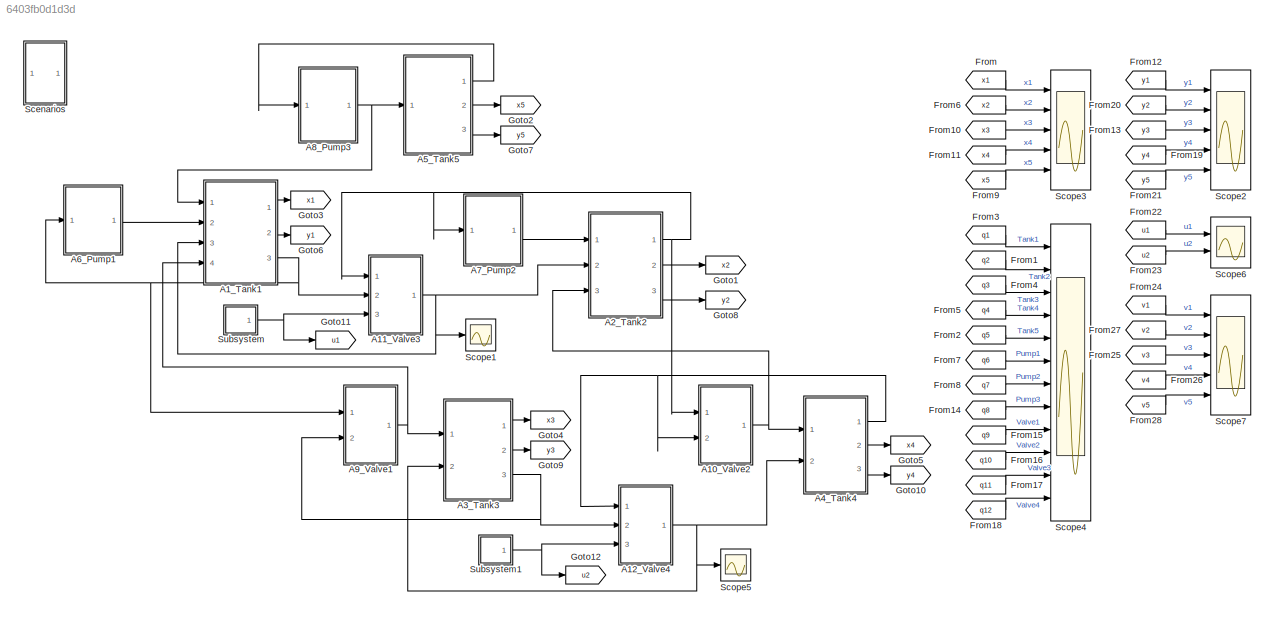
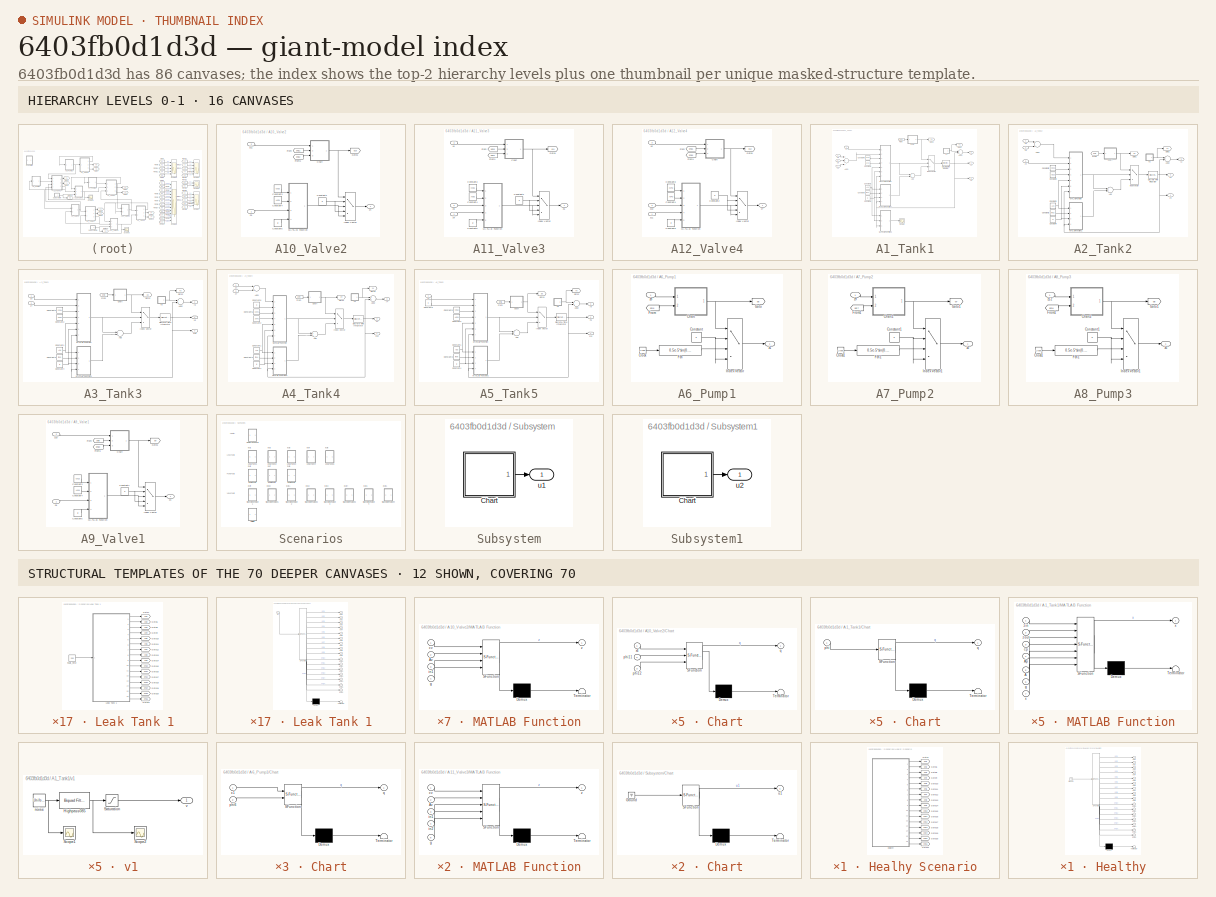
[diagram: thumbnail index - top-2 hierarchy levels (16 canvases) + 12 structural-template representatives of the remaining 70 canvases]
MODEL slx_6403fb0d1d3d
KIND model
CONFIG AbsTol = auto
CONFIG EnableMultiTasking = off
CONFIG FixedStep = Ts
CONFIG InitFcn = load_parameters
CONFIG MaxStep = auto
CONFIG MinStep = auto
CONFIG RelTol = 1e-3
CONFIG SampleTimeConstraint = Unconstrained
CONFIG Solver = FixedStepDiscrete
CONFIG SolverName = FixedStepDiscrete
CONFIG StartTime = 0.0
CONFIG StopTime = T
BLOCK [SubSystem] A10_Valve2
  Ports = [2, 1]
  RequestExecContextInheritance = off
BLOCK [SubSystem] A10_Valve2/Chart
  ErrorFcn = Stateflow.Translate.translate
  PermitHierarchicalResolution = ExplicitOnly
  Ports = [3, 1]
  RequestExecContextInheritance = off
  SFBlockType = Chart
  TreatAsAtomicUnit = on
BLOCK [Demux] A10_Valve2/Chart/ Demux 
  Outputs = 1
  Ports = [1, 1]
BLOCK [S-Function] A10_Valve2/Chart/ SFunction 
  EnableBusSupport = on
  FunctionName = sf_sfun
  Parameters = X4max,X4min
  PortCounts = [3 2]
  Ports = [3, 2]
  SFcnIsStateOwnerBlock = off
  SFunctionDeploymentMode = off
  Tag = Stateflow S-Function five_tank_hybrid_system 25
BLOCK [Terminator] A10_Valve2/Chart/ Terminator 
BLOCK [Inport] A10_Valve2/Chart/phi11
  IconDisplay = Port number
  Port = 2
BLOCK [Inport] A10_Valve2/Chart/phi12
  IconDisplay = Port number
  Port = 3
BLOCK [Outport] A10_Valve2/Chart/q
  IconDisplay = Port number
BLOCK [Inport] A10_Valve2/Chart/x4
  IconDisplay = Port number
BLOCK [Constant] A10_Valve2/Constant1
  Value = 0
BLOCK [Constant] A10_Valve2/Constant3
  Value = cv2u
BLOCK [Constant] A10_Valve2/Constant4
  Value = Av2u
BLOCK [Constant] A10_Valve2/Constant5
  Value = g
BLOCK [From] A10_Valve2/From
  GotoTag = phi11
  TagVisibility = global
BLOCK [From] A10_Valve2/From1
  GotoTag = phi12
  TagVisibility = global
BLOCK [Goto] A10_Valve2/Goto1
  GotoTag = q10
  TagVisibility = global
BLOCK [MultiPortSwitch] A10_Valve2/Index Vector
  DataPortIndices = {1,2,3,4}
  DataPortOrder = Specify indices
  InputSameDT = off
  Inputs = 1
  Ports = [5, 1]
  SaturateOnIntegerOverflow = off
BLOCK [SubSystem] A10_Valve2/MATLAB Function
  ErrorFcn = Stateflow.Translate.translate
  PermitHierarchicalResolution = ExplicitOnly
  Ports = [4, 1]
  RequestExecContextInheritance = off
  SFBlockType = MATLAB Function
  TreatAsAtomicUnit = on
BLOCK [Demux] A10_Valve2/MATLAB Function/ Demux 
  Outputs = 1
  Ports = [1, 1]
BLOCK [S-Function] A10_Valve2/MATLAB Function/ SFunction 
  EnableBusSupport = on
  FunctionName = sf_sfun
  PortCounts = [4 2]
  Ports = [4, 2]
  SFcnIsStateOwnerBlock = off
  SFunctionDeploymentMode = off
  Tag = Stateflow S-Function five_tank_hybrid_system 26
BLOCK [Terminator] A10_Valve2/MATLAB Function/ Terminator 
BLOCK [Inport] A10_Valve2/MATLAB Function/Av
  IconDisplay = Port number
  Port = 2
BLOCK [Inport] A10_Valve2/MATLAB Function/cv
  IconDisplay = Port number
BLOCK [Inport] A10_Valve2/MATLAB Function/g
  IconDisplay = Port number
  Port = 4
BLOCK [Inport] A10_Valve2/MATLAB Function/in1
  IconDisplay = Port number
  Port = 3
BLOCK [Outport] A10_Valve2/MATLAB Function/z
  IconDisplay = Port number
BLOCK [Inport] A10_Valve2/z11
  IconDisplay = Port number
  Port = 2
BLOCK [Outport] A10_Valve2/z4
  IconDisplay = Port number
BLOCK [Inport] A10_Valve2/z9
  IconDisplay = Port number
BLOCK [SubSystem] A11_Valve3
  Ports = [3, 1]
  RequestExecContextInheritance = off
BLOCK [SubSystem] A11_Valve3/Chart
  ErrorFcn = Stateflow.Translate.translate
  PermitHierarchicalResolution = ExplicitOnly
  Ports = [3, 1]
  RequestExecContextInheritance = off
  SFBlockType = Chart
  TreatAsAtomicUnit = on
BLOCK [Demux] A11_Valve3/Chart/ Demux 
  Outputs = 1
  Ports = [1, 1]
BLOCK [S-Function] A11_Valve3/Chart/ SFunction 
  EnableBusSupport = on
  FunctionName = sf_sfun
  PortCounts = [3 2]
  Ports = [3, 2]
  SFcnIsStateOwnerBlock = off
  SFunctionDeploymentMode = off
  Tag = Stateflow S-Function five_tank_hybrid_system 19
BLOCK [Terminator] A11_Valve3/Chart/ Terminator 
BLOCK [Inport] A11_Valve3/Chart/phi13
  IconDisplay = Port number
  Port = 2
BLOCK [Inport] A11_Valve3/Chart/phi14
  IconDisplay = Port number
  Port = 3
BLOCK [Outport] A11_Valve3/Chart/q
  IconDisplay = Port number
BLOCK [Inport] A11_Valve3/Chart/u1
  IconDisplay = Port number
BLOCK [Constant] A11_Valve3/Constant1
  Value = 0
BLOCK [Constant] A11_Valve3/Constant3
  Value = cv3u
BLOCK [Constant] A11_Valve3/Constant4
  Value = Av3u
BLOCK [Constant] A11_Valve3/Constant5
  Value = g
BLOCK [From] A11_Valve3/From
  GotoTag = phi13
  TagVisibility = global
BLOCK [From] A11_Valve3/From1
  GotoTag = phi14
  TagVisibility = global
BLOCK [Goto] A11_Valve3/Goto1
  GotoTag = q11
  TagVisibility = global
BLOCK [MultiPortSwitch] A11_Valve3/Index Vector
  DataPortIndices = {1,2,3,4}
  DataPortOrder = Specify indices
  InputSameDT = off
  Inputs = 1
  Ports = [5, 1]
  SaturateOnIntegerOverflow = off
BLOCK [SubSystem] A11_Valve3/MATLAB Function
  ErrorFcn = Stateflow.Translate.translate
  PermitHierarchicalResolution = ExplicitOnly
  Ports = [5, 1]
  RequestExecContextInheritance = off
  SFBlockType = MATLAB Function
  TreatAsAtomicUnit = on
BLOCK [Demux] A11_Valve3/MATLAB Function/ Demux 
  Outputs = 1
  Ports = [1, 1]
BLOCK [S-Function] A11_Valve3/MATLAB Function/ SFunction 
  EnableBusSupport = on
  FunctionName = sf_sfun
  PortCounts = [5 2]
  Ports = [5, 2]
  SFcnIsStateOwnerBlock = off
  SFunctionDeploymentMode = off
  Tag = Stateflow S-Function five_tank_hybrid_system 20
BLOCK [Terminator] A11_Valve3/MATLAB Function/ Terminator 
BLOCK [Inport] A11_Valve3/MATLAB Function/Av
  IconDisplay = Port number
  Port = 2
BLOCK [Inport] A11_Valve3/MATLAB Function/cv
  IconDisplay = Port number
BLOCK [Inport] A11_Valve3/MATLAB Function/g
  IconDisplay = Port number
  Port = 5
BLOCK [Inport] A11_Valve3/MATLAB Function/in1
  IconDisplay = Port number
  Port = 3
BLOCK [Inport] A11_Valve3/MATLAB Function/in2
  IconDisplay = Port number
  Port = 4
BLOCK [Outport] A11_Valve3/MATLAB Function/z
  IconDisplay = Port number
BLOCK [Inport] A11_Valve3/u1
  IconDisplay = Port number
  Port = 3
BLOCK [Outport] A11_Valve3/z6
  IconDisplay = Port number
BLOCK [Inport] A11_Valve3/z8
  IconDisplay = Port number
  Port = 2
BLOCK [Inport] A11_Valve3/z9
  IconDisplay = Port number
BLOCK [SubSystem] A12_Valve4
  Ports = [3, 1]
  RequestExecContextInheritance = off
BLOCK [SubSystem] A12_Valve4/Chart
  ErrorFcn = Stateflow.Translate.translate
  PermitHierarchicalResolution = ExplicitOnly
  Ports = [3, 1]
  RequestExecContextInheritance = off
  SFBlockType = Chart
  TreatAsAtomicUnit = on
BLOCK [Demux] A12_Valve4/Chart/ Demux 
  Outputs = 1
  Ports = [1, 1]
BLOCK [S-Function] A12_Valve4/Chart/ SFunction 
  EnableBusSupport = on
  FunctionName = sf_sfun
  PortCounts = [3 2]
  Ports = [3, 2]
  SFcnIsStateOwnerBlock = off
  SFunctionDeploymentMode = off
  Tag = Stateflow S-Function five_tank_hybrid_system 21
BLOCK [Terminator] A12_Valve4/Chart/ Terminator 
BLOCK [Inport] A12_Valve4/Chart/phi15
  IconDisplay = Port number
  Port = 2
BLOCK [Inport] A12_Valve4/Chart/phi16
  IconDisplay = Port number
  Port = 3
BLOCK [Outport] A12_Valve4/Chart/q
  IconDisplay = Port number
BLOCK [Inport] A12_Valve4/Chart/u2
  IconDisplay = Port number
BLOCK [Constant] A12_Valve4/Constant2
  Value = 0
BLOCK [Constant] A12_Valve4/Constant3
  Value = cv4u
BLOCK [Constant] A12_Valve4/Constant4
  Value = Av4u
BLOCK [Constant] A12_Valve4/Constant5
  Value = g
BLOCK [From] A12_Valve4/From
  GotoTag = phi15
  TagVisibility = global
BLOCK [From] A12_Valve4/From1
  GotoTag = phi16
  TagVisibility = global
BLOCK [Goto] A12_Valve4/Goto1
  GotoTag = q12
  TagVisibility = global
BLOCK [MultiPortSwitch] A12_Valve4/Index Vector
  DataPortIndices = {1,2,3,4}
  DataPortOrder = Specify indices
  InputSameDT = off
  Inputs = 1
  Ports = [5, 1]
  SaturateOnIntegerOverflow = off
BLOCK [SubSystem] A12_Valve4/MATLAB Function
  ErrorFcn = Stateflow.Translate.translate
  PermitHierarchicalResolution = ExplicitOnly
  Ports = [5, 1]
  RequestExecContextInheritance = off
  SFBlockType = MATLAB Function
  TreatAsAtomicUnit = on
BLOCK [Demux] A12_Valve4/MATLAB Function/ Demux 
  Outputs = 1
  Ports = [1, 1]
BLOCK [S-Function] A12_Valve4/MATLAB Function/ SFunction 
  EnableBusSupport = on
  FunctionName = sf_sfun
  PortCounts = [5 2]
  Ports = [5, 2]
  SFcnIsStateOwnerBlock = off
  SFunctionDeploymentMode = off
  Tag = Stateflow S-Function five_tank_hybrid_system 22
BLOCK [Terminator] A12_Valve4/MATLAB Function/ Terminator 
BLOCK [Inport] A12_Valve4/MATLAB Function/Av
  IconDisplay = Port number
  Port = 2
BLOCK [Inport] A12_Valve4/MATLAB Function/cv
  IconDisplay = Port number
BLOCK [Inport] A12_Valve4/MATLAB Function/g
  IconDisplay = Port number
  Port = 5
BLOCK [Inport] A12_Valve4/MATLAB Function/in1
  IconDisplay = Port number
  Port = 3
BLOCK [Inport] A12_Valve4/MATLAB Function/in2
  IconDisplay = Port number
  Port = 4
BLOCK [Outport] A12_Valve4/MATLAB Function/z
  IconDisplay = Port number
BLOCK [Inport] A12_Valve4/u2
  IconDisplay = Port number
  Port = 3
BLOCK [Inport] A12_Valve4/z10
  IconDisplay = Port number
  Port = 2
BLOCK [Inport] A12_Valve4/z11
  IconDisplay = Port number
BLOCK [Outport] A12_Valve4/z7
  IconDisplay = Port number
BLOCK [SubSystem] A1_Tank1
  Ports = [4, 3]
  RequestExecContextInheritance = off
BLOCK [Sum] A1_Tank1/Add
  InputSameDT = off
  OutDataTypeStr = Inherit: Inherit via internal rule
  Ports = [2, 1]
  SaturateOnIntegerOverflow = off
BLOCK [Sum] A1_Tank1/Add1
  InputSameDT = off
  Inputs = +++
  OutDataTypeStr = Inherit: Inherit via internal rule
  Ports = [3, 1]
  SaturateOnIntegerOverflow = off
BLOCK [Sum] A1_Tank1/Add2
  InputSameDT = off
  OutDataTypeStr = Inherit: Inherit via internal rule
  Ports = [2, 1]
  SaturateOnIntegerOverflow = off
BLOCK [SubSystem] A1_Tank1/Chart
  ErrorFcn = Stateflow.Translate.translate
  PermitHierarchicalResolution = ExplicitOnly
  Ports = [1, 1]
  RequestExecContextInheritance = off
  SFBlockType = Chart
  TreatAsAtomicUnit = on
BLOCK [Demux] A1_Tank1/Chart/ Demux 
  Outputs = 1
  Ports = [1, 1]
BLOCK [S-Function] A1_Tank1/Chart/ SFunction 
  EnableBusSupport = on
  FunctionName = sf_sfun
  PortCounts = [1 2]
  Ports = [1, 2]
  SFcnIsStateOwnerBlock = off
  SFunctionDeploymentMode = off
  Tag = Stateflow S-Function five_tank_hybrid_system 4
BLOCK [Terminator] A1_Tank1/Chart/ Terminator 
BLOCK [Inport] A1_Tank1/Chart/phi
  IconDisplay = Port number
BLOCK [Outport] A1_Tank1/Chart/q
  IconDisplay = Port number
BLOCK [Constant] A1_Tank1/Constant1
  Value = A1u
BLOCK [Constant] A1_Tank1/Constant2
  Value = Ap1u
BLOCK [Constant] A1_Tank1/Constant3
  Value = rho1
BLOCK [Constant] A1_Tank1/Constant4
  Value = g
BLOCK [Constant] A1_Tank1/Constant5
  Value = cp1u
BLOCK [DiscreteIntegrator] A1_Tank1/Discrete-Time Integrator
  ICPrevOutput = DiscIntNeverNeededParam
  ICPrevScaledInput = DiscIntNeverNeededParam
  InitialCondition = x1_0
  InitialConditionSetting = Auto
  LimitOutput = on
  LowerSaturationLimit = 0
  Ports = [1, 1]
  SampleTime = -1
  UpperSaturationLimit = X1overflow
BLOCK [From] A1_Tank1/From
  GotoTag = phi1
  TagVisibility = global
BLOCK [Goto] A1_Tank1/Goto1
  GotoTag = q1
  TagVisibility = global
BLOCK [Goto] A1_Tank1/Goto2
  GotoTag = v1
  TagVisibility = global
BLOCK [MultiPortSwitch] A1_Tank1/Index Vector
  DataPortIndices = {1,2}
  DataPortOrder = Specify indices
  InputSameDT = off
  Inputs = 1
  Ports = [3, 1]
  SaturateOnIntegerOverflow = off
BLOCK [SubSystem] A1_Tank1/MATLAB Function
  ErrorFcn = Stateflow.Translate.translate
  PermitHierarchicalResolution = ExplicitOnly
  Ports = [7, 1]
  RequestExecContextInheritance = off
  SFBlockType = MATLAB Function
  TreatAsAtomicUnit = on
BLOCK [Demux] A1_Tank1/MATLAB Function/ Demux 
  Outputs = 1
  Ports = [1, 1]
BLOCK [S-Function] A1_Tank1/MATLAB Function/ SFunction 
  EnableBusSupport = on
  FunctionName = sf_sfun
  PortCounts = [7 2]
  Ports = [7, 2]
  SFcnIsStateOwnerBlock = off
  SFunctionDeploymentMode = off
  Tag = Stateflow S-Function five_tank_hybrid_system 5
BLOCK [Terminator] A1_Tank1/MATLAB Function/ Terminator 
BLOCK [Inport] A1_Tank1/MATLAB Function/A
  IconDisplay = Port number
  Port = 5
BLOCK [Inport] A1_Tank1/MATLAB Function/Ap
  IconDisplay = Port number
  Port = 4
BLOCK [Inport] A1_Tank1/MATLAB Function/cp
  IconDisplay = Port number
  Port = 3
BLOCK [Inport] A1_Tank1/MATLAB Function/g
  IconDisplay = Port number
  Port = 6
BLOCK [Outport] A1_Tank1/MATLAB Function/x
  IconDisplay = Port number
BLOCK [Inport] A1_Tank1/MATLAB Function/x 
  IconDisplay = Port number
  Port = 7
BLOCK [Inport] A1_Tank1/MATLAB Function/zin
  IconDisplay = Port number
BLOCK [Inport] A1_Tank1/MATLAB Function/zout
  IconDisplay = Port number
  Port = 2
BLOCK [SubSystem] A1_Tank1/MATLAB Function1
  ErrorFcn = Stateflow.Translate.translate
  PermitHierarchicalResolution = ExplicitOnly
  Ports = [4, 1]
  RequestExecContextInheritance = off
  SFBlockType = MATLAB Function
  TreatAsAtomicUnit = on
BLOCK [Demux] A1_Tank1/MATLAB Function1/ Demux 
  Outputs = 1
  Ports = [1, 1]
BLOCK [S-Function] A1_Tank1/MATLAB Function1/ SFunction 
  EnableBusSupport = on
  FunctionName = sf_sfun
  PortCounts = [4 2]
  Ports = [4, 2]
  SFcnIsStateOwnerBlock = off
  SFunctionDeploymentMode = off
  Tag = Stateflow S-Function five_tank_hybrid_system 6
BLOCK [Terminator] A1_Tank1/MATLAB Function1/ Terminator 
BLOCK [Inport] A1_Tank1/MATLAB Function1/A
  IconDisplay = Port number
BLOCK [Outport] A1_Tank1/MATLAB Function1/f1
  IconDisplay = Port number
BLOCK [Inport] A1_Tank1/MATLAB Function1/g
  IconDisplay = Port number
  Port = 3
BLOCK [Inport] A1_Tank1/MATLAB Function1/rho
  IconDisplay = Port number
  Port = 2
BLOCK [Inport] A1_Tank1/MATLAB Function1/x
  IconDisplay = Port number
  Port = 4
BLOCK [SubSystem] A1_Tank1/MATLAB Function2
  ErrorFcn = Stateflow.Translate.translate
  PermitHierarchicalResolution = ExplicitOnly
  Ports = [3, 1]
  RequestExecContextInheritance = off
  SFBlockType = MATLAB Function
  TreatAsAtomicUnit = on
BLOCK [Demux] A1_Tank1/MATLAB Function2/ Demux 
  Outputs = 1
  Ports = [1, 1]
BLOCK [S-Function] A1_Tank1/MATLAB Function2/ SFunction 
  EnableBusSupport = on
  FunctionName = sf_sfun
  PortCounts = [3 2]
  Ports = [3, 2]
  SFcnIsStateOwnerBlock = off
  SFunctionDeploymentMode = off
  Tag = Stateflow S-Function five_tank_hybrid_system 47
BLOCK [Terminator] A1_Tank1/MATLAB Function2/ Terminator 
BLOCK [Inport] A1_Tank1/MATLAB Function2/A
  IconDisplay = Port number
BLOCK [Outport] A1_Tank1/MATLAB Function2/f1
  IconDisplay = Port number
BLOCK [Inport] A1_Tank1/MATLAB Function2/g
  IconDisplay = Port number
  Port = 2
BLOCK [Inport] A1_Tank1/MATLAB Function2/x
  IconDisplay = Port number
  Port = 3
BLOCK [Scope] A1_Tank1/Scope
  Floating = off
  NumInputPorts = 1
  Ports = [1]
  ScopeSpecificationString = Simulink.scopes.TimeScopeBlockCfg('CurrentConfiguration', extmgr.ConfigurationSet(extmgr.Configuration('Core','General UI',true),extmgr.Configuration('Core','Source UI',true),extmgr.Configuration('Sources','WiredSimulink',true,'DataLoggingVariableName','ScopeData1'),extmgr.Configuration('Visuals','Time Domain',true,'SerializedDisplays',{struct('MinYLimReal','0.71986','MaxYLimReal','1.00022','YLabe...<+1473ch>
BLOCK [SubSystem] A1_Tank1/v1
  Ports = [0, 1]
  RequestExecContextInheritance = off
BLOCK [Reference] A1_Tank1/v1/Highpass085  REF=dsparch4/Biquad Filter
  Ports = [1, 1]
  SourceBlock = dsparch4/Biquad Filter
  SourceProductBaseCode = DS
  SourceProductName = DSP System Toolbox
  SourceType = Biquad Filter
  Tag = BlockMethodSubSystem
  UserDataPersistent = on
BLOCK [Saturate] A1_Tank1/v1/Saturation
  InputPortMap = u0
  LowerLimit = -xi
  Ports = [1, 1]
  UpperLimit = xi
BLOCK [Scope] A1_Tank1/v1/Scope1
  Floating = off
  NumInputPorts = 1
  Ports = [1]
  ScopeSpecificationString = Simulink.scopes.TimeScopeBlockCfg('CurrentConfiguration', extmgr.ConfigurationSet(extmgr.Configuration('Core','General UI',true),extmgr.Configuration('Core','Source UI',true),extmgr.Configuration('Sources','WiredSimulink',true,'DataLoggingVariableName','ScopeData2'),extmgr.Configuration('Visuals','Time Domain',true,'SerializedDisplays',{struct('MinYLimReal','-0.025','MaxYLimReal','0.025','YLabelRe...<+1379ch>
BLOCK [Scope] A1_Tank1/v1/Scope2
  Floating = off
  NumInputPorts = 1
  Ports = [1]
  ScopeSpecificationString = Simulink.scopes.TimeScopeBlockCfg('CurrentConfiguration', extmgr.ConfigurationSet(extmgr.Configuration('Core','General UI',true),extmgr.Configuration('Core','Source UI',true),extmgr.Configuration('Sources','WiredSimulink',true,'DataLoggingVariableName','ScopeData3'),extmgr.Configuration('Visuals','Time Domain',true,'SerializedDisplays',{struct('MinYLimReal','-0.02535','MaxYLimReal','0.02523','YLab...<+1440ch>
BLOCK [UniformRandomNumber] A1_Tank1/v1/noise
  Maximum = v
  Minimum = -v
  SampleTime = Ts
  Seed = 15
BLOCK [Outport] A1_Tank1/v1/v
  IconDisplay = Port number
BLOCK [Outport] A1_Tank1/x1
  IconDisplay = Port number
BLOCK [Outport] A1_Tank1/y1
  IconDisplay = Port number
  Port = 2
BLOCK [Inport] A1_Tank1/z1
  IconDisplay = Port number
  Port = 2
BLOCK [Inport] A1_Tank1/z3
  IconDisplay = Port number
  Port = 4
BLOCK [Inport] A1_Tank1/z5
  IconDisplay = Port number
BLOCK [Inport] A1_Tank1/z6
  IconDisplay = Port number
  Port = 3
BLOCK [Outport] A1_Tank1/z8
  IconDisplay = Port number
  Port = 3
BLOCK [SubSystem] A2_Tank2
  Ports = [3, 3]
  RequestExecContextInheritance = off
BLOCK [Sum] A2_Tank2/Add
  InputSameDT = off
  OutDataTypeStr = Inherit: Inherit via internal rule
  Ports = [2, 1]
  SaturateOnIntegerOverflow = off
BLOCK [Sum] A2_Tank2/Add1
  InputSameDT = off
  OutDataTypeStr = Inherit: Inherit via internal rule
  Ports = [2, 1]
  SaturateOnIntegerOverflow = off
BLOCK [Sum] A2_Tank2/Add2
  InputSameDT = off
  OutDataTypeStr = Inherit: Inherit via internal rule
  Ports = [2, 1]
  SaturateOnIntegerOverflow = off
BLOCK [SubSystem] A2_Tank2/Chart
  ErrorFcn = Stateflow.Translate.translate
  PermitHierarchicalResolution = ExplicitOnly
  Ports = [1, 1]
  RequestExecContextInheritance = off
  SFBlockType = Chart
  TreatAsAtomicUnit = on
BLOCK [Demux] A2_Tank2/Chart/ Demux 
  Outputs = 1
  Ports = [1, 1]
BLOCK [S-Function] A2_Tank2/Chart/ SFunction 
  EnableBusSupport = on
  FunctionName = sf_sfun
  PortCounts = [1 2]
  Ports = [1, 2]
  SFcnIsStateOwnerBlock = off
  SFunctionDeploymentMode = off
  Tag = Stateflow S-Function five_tank_hybrid_system 7
BLOCK [Terminator] A2_Tank2/Chart/ Terminator 
BLOCK [Inport] A2_Tank2/Chart/phi
  IconDisplay = Port number
BLOCK [Outport] A2_Tank2/Chart/q
  IconDisplay = Port number
BLOCK [Constant] A2_Tank2/Constant1
  Value = A2u
BLOCK [Constant] A2_Tank2/Constant2
  Value = Ap2u
BLOCK [Constant] A2_Tank2/Constant3
  Value = rho2
BLOCK [Constant] A2_Tank2/Constant4
  Value = g
BLOCK [Constant] A2_Tank2/Constant5
  Value = cp2u
BLOCK [DiscreteIntegrator] A2_Tank2/Discrete-Time Integrator
  ICPrevOutput = DiscIntNeverNeededParam
  ICPrevScaledInput = DiscIntNeverNeededParam
  InitialCondition = x2_0
  InitialConditionSetting = Auto
  LimitOutput = on
  LowerSaturationLimit = 0
  Ports = [1, 1]
  SampleTime = -1
  UpperSaturationLimit = X2overflow
BLOCK [From] A2_Tank2/From
  GotoTag = phi2
  TagVisibility = global
BLOCK [Goto] A2_Tank2/Goto1
  GotoTag = q2
  TagVisibility = global
BLOCK [Goto] A2_Tank2/Goto2
  GotoTag = v2
  TagVisibility = global
BLOCK [MultiPortSwitch] A2_Tank2/Index Vector
  DataPortIndices = {1,2}
  DataPortOrder = Specify indices
  InputSameDT = off
  Inputs = 1
  Ports = [3, 1]
  SaturateOnIntegerOverflow = off
BLOCK [SubSystem] A2_Tank2/MATLAB Function
  ErrorFcn = Stateflow.Translate.translate
  PermitHierarchicalResolution = ExplicitOnly
  Ports = [7, 1]
  RequestExecContextInheritance = off
  SFBlockType = MATLAB Function
  TreatAsAtomicUnit = on
BLOCK [Demux] A2_Tank2/MATLAB Function/ Demux 
  Outputs = 1
  Ports = [1, 1]
BLOCK [S-Function] A2_Tank2/MATLAB Function/ SFunction 
  EnableBusSupport = on
  FunctionName = sf_sfun
  PortCounts = [7 2]
  Ports = [7, 2]
  SFcnIsStateOwnerBlock = off
  SFunctionDeploymentMode = off
  Tag = Stateflow S-Function five_tank_hybrid_system 8
BLOCK [Terminator] A2_Tank2/MATLAB Function/ Terminator 
BLOCK [Inport] A2_Tank2/MATLAB Function/A
  IconDisplay = Port number
  Port = 5
BLOCK [Inport] A2_Tank2/MATLAB Function/Ap
  IconDisplay = Port number
  Port = 4
BLOCK [Inport] A2_Tank2/MATLAB Function/cp
  IconDisplay = Port number
  Port = 3
BLOCK [Inport] A2_Tank2/MATLAB Function/g
  IconDisplay = Port number
  Port = 6
BLOCK [Outport] A2_Tank2/MATLAB Function/x
  IconDisplay = Port number
BLOCK [Inport] A2_Tank2/MATLAB Function/x 
  IconDisplay = Port number
  Port = 7
BLOCK [Inport] A2_Tank2/MATLAB Function/zin
  IconDisplay = Port number
BLOCK [Inport] A2_Tank2/MATLAB Function/zout
  IconDisplay = Port number
  Port = 2
BLOCK [SubSystem] A2_Tank2/MATLAB Function1
  ErrorFcn = Stateflow.Translate.translate
  PermitHierarchicalResolution = ExplicitOnly
  Ports = [4, 1]
  RequestExecContextInheritance = off
  SFBlockType = MATLAB Function
  TreatAsAtomicUnit = on
BLOCK [Demux] A2_Tank2/MATLAB Function1/ Demux 
  Outputs = 1
  Ports = [1, 1]
BLOCK [S-Function] A2_Tank2/MATLAB Function1/ SFunction 
  EnableBusSupport = on
  FunctionName = sf_sfun
  PortCounts = [4 2]
  Ports = [4, 2]
  SFcnIsStateOwnerBlock = off
  SFunctionDeploymentMode = off
  Tag = Stateflow S-Function five_tank_hybrid_system 9
BLOCK [Terminator] A2_Tank2/MATLAB Function1/ Terminator 
BLOCK [Inport] A2_Tank2/MATLAB Function1/A
  IconDisplay = Port number
BLOCK [Outport] A2_Tank2/MATLAB Function1/f1
  IconDisplay = Port number
BLOCK [Inport] A2_Tank2/MATLAB Function1/g
  IconDisplay = Port number
  Port = 3
BLOCK [Inport] A2_Tank2/MATLAB Function1/rho
  IconDisplay = Port number
  Port = 2
BLOCK [Inport] A2_Tank2/MATLAB Function1/x
  IconDisplay = Port number
  Port = 4
BLOCK [SubSystem] A2_Tank2/v2
  Ports = [0, 1]
  RequestExecContextInheritance = off
BLOCK [Reference] A2_Tank2/v2/Highpass085  REF=dsparch4/Biquad Filter
  Ports = [1, 1]
  SourceBlock = dsparch4/Biquad Filter
  SourceProductBaseCode = DS
  SourceProductName = DSP System Toolbox
  SourceType = Biquad Filter
  Tag = BlockMethodSubSystem
  UserDataPersistent = on
BLOCK [Saturate] A2_Tank2/v2/Saturation
  InputPortMap = u0
  LowerLimit = -xi
  Ports = [1, 1]
  UpperLimit = xi
BLOCK [Scope] A2_Tank2/v2/Scope1
  Floating = off
  NumInputPorts = 1
  Ports = [1]
  ScopeSpecificationString = Simulink.scopes.TimeScopeBlockCfg('CurrentConfiguration', extmgr.ConfigurationSet(extmgr.Configuration('Core','General UI',true),extmgr.Configuration('Core','Source UI',true),extmgr.Configuration('Sources','WiredSimulink',true,'DataLoggingVariableName','ScopeData2'),extmgr.Configuration('Visuals','Time Domain',true,'SerializedDisplays',{struct('MinYLimReal','-0.0625','MaxYLimReal','0.0625','YLabel...<+1387ch>  <repeated x3 — deduplicated; at blocks: Scope1>
BLOCK [Scope] A2_Tank2/v2/Scope2
  Floating = off
  NumInputPorts = 1
  Ports = [1]
  ScopeSpecificationString = Simulink.scopes.TimeScopeBlockCfg('CurrentConfiguration', extmgr.ConfigurationSet(extmgr.Configuration('Core','General UI',true),extmgr.Configuration('Core','Source UI',true),extmgr.Configuration('Sources','WiredSimulink',true,'DataLoggingVariableName','ScopeData3'),extmgr.Configuration('Visuals','Time Domain',true,'SerializedDisplays',{struct('MinYLimReal','-0.02315','MaxYLimReal','0.02326','YLab...<+1471ch>
BLOCK [UniformRandomNumber] A2_Tank2/v2/noise
  Maximum = v
  Minimum = -v
  SampleTime = Ts
  Seed = 11
BLOCK [Outport] A2_Tank2/v2/v
  IconDisplay = Port number
BLOCK [Outport] A2_Tank2/x2
  IconDisplay = Port number
  Port = 2
BLOCK [Outport] A2_Tank2/y2
  IconDisplay = Port number
  Port = 3
BLOCK [Inport] A2_Tank2/z2
  IconDisplay = Port number
BLOCK [Inport] A2_Tank2/z4
  IconDisplay = Port number
  Port = 3
BLOCK [Inport] A2_Tank2/z6
  IconDisplay = Port number
  Port = 2
BLOCK [Outport] A2_Tank2/z9
  IconDisplay = Port number
BLOCK [SubSystem] A3_Tank3
  Ports = [2, 3]
  RequestExecContextInheritance = off
BLOCK [Sum] A3_Tank3/Add
  InputSameDT = off
  OutDataTypeStr = Inherit: Inherit via internal rule
  Ports = [2, 1]
  SaturateOnIntegerOverflow = off
BLOCK [Sum] A3_Tank3/Add2
  InputSameDT = off
  OutDataTypeStr = Inherit: Inherit via internal rule
  Ports = [2, 1]
  SaturateOnIntegerOverflow = off
BLOCK [SubSystem] A3_Tank3/Chart
  ErrorFcn = Stateflow.Translate.translate
  PermitHierarchicalResolution = ExplicitOnly
  Ports = [1, 1]
  RequestExecContextInheritance = off
  SFBlockType = Chart
  TreatAsAtomicUnit = on
BLOCK [Demux] A3_Tank3/Chart/ Demux 
  Outputs = 1
  Ports = [1, 1]
BLOCK [S-Function] A3_Tank3/Chart/ SFunction 
  EnableBusSupport = on
  FunctionName = sf_sfun
  PortCounts = [1 2]
  Ports = [1, 2]
  SFcnIsStateOwnerBlock = off
  SFunctionDeploymentMode = off
  Tag = Stateflow S-Function five_tank_hybrid_system 10
BLOCK [Terminator] A3_Tank3/Chart/ Terminator 
BLOCK [Inport] A3_Tank3/Chart/phi
  IconDisplay = Port number
BLOCK [Outport] A3_Tank3/Chart/q
  IconDisplay = Port number
BLOCK [Constant] A3_Tank3/Constant1
  Value = A3u
BLOCK [Constant] A3_Tank3/Constant2
  Value = Ap3u
BLOCK [Constant] A3_Tank3/Constant3
  Value = rho3
BLOCK [Constant] A3_Tank3/Constant4
  Value = g
BLOCK [Constant] A3_Tank3/Constant5
  Value = cp3u
BLOCK [DiscreteIntegrator] A3_Tank3/Discrete-Time Integrator
  ICPrevOutput = DiscIntNeverNeededParam
  ICPrevScaledInput = DiscIntNeverNeededParam
  InitialCondition = x3_0
  InitialConditionSetting = Auto
  LimitOutput = on
  LowerSaturationLimit = 0
  Ports = [1, 1]
  SampleTime = -1
  UpperSaturationLimit = X3overflow
BLOCK [From] A3_Tank3/From
  GotoTag = phi3
  TagVisibility = global
BLOCK [Goto] A3_Tank3/Goto1
  GotoTag = q3
  TagVisibility = global
BLOCK [Goto] A3_Tank3/Goto2
  GotoTag = v3
  TagVisibility = global
BLOCK [MultiPortSwitch] A3_Tank3/Index Vector
  DataPortIndices = {1,2}
  DataPortOrder = Specify indices
  InputSameDT = off
  Inputs = 1
  Ports = [3, 1]
  SaturateOnIntegerOverflow = off
BLOCK [SubSystem] A3_Tank3/MATLAB Function
  ErrorFcn = Stateflow.Translate.translate
  PermitHierarchicalResolution = ExplicitOnly
  Ports = [7, 1]
  RequestExecContextInheritance = off
  SFBlockType = MATLAB Function
  TreatAsAtomicUnit = on
BLOCK [Demux] A3_Tank3/MATLAB Function/ Demux 
  Outputs = 1
  Ports = [1, 1]
BLOCK [S-Function] A3_Tank3/MATLAB Function/ SFunction 
  EnableBusSupport = on
  FunctionName = sf_sfun
  PortCounts = [7 2]
  Ports = [7, 2]
  SFcnIsStateOwnerBlock = off
  SFunctionDeploymentMode = off
  Tag = Stateflow S-Function five_tank_hybrid_system 11
BLOCK [Terminator] A3_Tank3/MATLAB Function/ Terminator 
BLOCK [Inport] A3_Tank3/MATLAB Function/A
  IconDisplay = Port number
  Port = 5
BLOCK [Inport] A3_Tank3/MATLAB Function/Ap
  IconDisplay = Port number
  Port = 4
BLOCK [Inport] A3_Tank3/MATLAB Function/cp
  IconDisplay = Port number
  Port = 3
BLOCK [Inport] A3_Tank3/MATLAB Function/g
  IconDisplay = Port number
  Port = 6
BLOCK [Outport] A3_Tank3/MATLAB Function/x
  IconDisplay = Port number
BLOCK [Inport] A3_Tank3/MATLAB Function/x 
  IconDisplay = Port number
  Port = 7
BLOCK [Inport] A3_Tank3/MATLAB Function/zin
  IconDisplay = Port number
BLOCK [Inport] A3_Tank3/MATLAB Function/zout
  IconDisplay = Port number
  Port = 2
BLOCK [SubSystem] A3_Tank3/MATLAB Function1
  ErrorFcn = Stateflow.Translate.translate
  PermitHierarchicalResolution = ExplicitOnly
  Ports = [4, 1]
  RequestExecContextInheritance = off
  SFBlockType = MATLAB Function
  TreatAsAtomicUnit = on
BLOCK [Demux] A3_Tank3/MATLAB Function1/ Demux 
  Outputs = 1
  Ports = [1, 1]
BLOCK [S-Function] A3_Tank3/MATLAB Function1/ SFunction 
  EnableBusSupport = on
  FunctionName = sf_sfun
  PortCounts = [4 2]
  Ports = [4, 2]
  SFcnIsStateOwnerBlock = off
  SFunctionDeploymentMode = off
  Tag = Stateflow S-Function five_tank_hybrid_system 12
BLOCK [Terminator] A3_Tank3/MATLAB Function1/ Terminator 
BLOCK [Inport] A3_Tank3/MATLAB Function1/A
  IconDisplay = Port number
BLOCK [Outport] A3_Tank3/MATLAB Function1/f1
  IconDisplay = Port number
BLOCK [Inport] A3_Tank3/MATLAB Function1/g
  IconDisplay = Port number
  Port = 3
BLOCK [Inport] A3_Tank3/MATLAB Function1/rho
  IconDisplay = Port number
  Port = 2
BLOCK [Inport] A3_Tank3/MATLAB Function1/x
  IconDisplay = Port number
  Port = 4
BLOCK [SubSystem] A3_Tank3/v3
  Ports = [0, 1]
  RequestExecContextInheritance = off
BLOCK [Reference] A3_Tank3/v3/Highpass085  REF=dsparch4/Biquad Filter
  Ports = [1, 1]
  SourceBlock = dsparch4/Biquad Filter
  SourceProductBaseCode = DS
  SourceProductName = DSP System Toolbox
  SourceType = Biquad Filter
  Tag = BlockMethodSubSystem
  UserDataPersistent = on
BLOCK [Saturate] A3_Tank3/v3/Saturation
  InputPortMap = u0
  LowerLimit = -xi
  Ports = [1, 1]
  UpperLimit = xi
BLOCK [Scope] A3_Tank3/v3/Scope1
  Floating = off
  NumInputPorts = 1
  Ports = [1]
BLOCK [Scope] A3_Tank3/v3/Scope2
  Floating = off
  NumInputPorts = 1
  Ports = [1]
  ScopeSpecificationString = Simulink.scopes.TimeScopeBlockCfg('CurrentConfiguration', extmgr.ConfigurationSet(extmgr.Configuration('Core','General UI',true),extmgr.Configuration('Core','Source UI',true),extmgr.Configuration('Sources','WiredSimulink',true,'DataLoggingVariableName','ScopeData3'),extmgr.Configuration('Visuals','Time Domain',true,'SerializedDisplays',{struct('MinYLimReal','-0.02333','MaxYLimReal','0.02384','YLab...<+1471ch>
BLOCK [UniformRandomNumber] A3_Tank3/v3/noise
  Maximum = v
  Minimum = -v
  SampleTime = Ts
  Seed = 7
BLOCK [Outport] A3_Tank3/v3/v
  IconDisplay = Port number
BLOCK [Outport] A3_Tank3/x3
  IconDisplay = Port number
BLOCK [Outport] A3_Tank3/y3
  IconDisplay = Port number
  Port = 2
BLOCK [Outport] A3_Tank3/z10
  IconDisplay = Port number
  Port = 3
BLOCK [Inport] A3_Tank3/z3
  IconDisplay = Port number
BLOCK [Inport] A3_Tank3/z7
  IconDisplay = Port number
  Port = 2
BLOCK [SubSystem] A4_Tank4
  Ports = [2, 3]
  RequestExecContextInheritance = off
BLOCK [Sum] A4_Tank4/Add
  InputSameDT = off
  OutDataTypeStr = Inherit: Inherit via internal rule
  Ports = [2, 1]
  SaturateOnIntegerOverflow = off
BLOCK [Sum] A4_Tank4/Add1
  InputSameDT = off
  OutDataTypeStr = Inherit: Inherit via internal rule
  Ports = [2, 1]
  SaturateOnIntegerOverflow = off
BLOCK [Sum] A4_Tank4/Add2
  InputSameDT = off
  OutDataTypeStr = Inherit: Inherit via internal rule
  Ports = [2, 1]
  SaturateOnIntegerOverflow = off
BLOCK [SubSystem] A4_Tank4/Chart
  ErrorFcn = Stateflow.Translate.translate
  PermitHierarchicalResolution = ExplicitOnly
  Ports = [1, 1]
  RequestExecContextInheritance = off
  SFBlockType = Chart
  TreatAsAtomicUnit = on
BLOCK [Demux] A4_Tank4/Chart/ Demux 
  Outputs = 1
  Ports = [1, 1]
BLOCK [S-Function] A4_Tank4/Chart/ SFunction 
  EnableBusSupport = on
  FunctionName = sf_sfun
  PortCounts = [1 2]
  Ports = [1, 2]
  SFcnIsStateOwnerBlock = off
  SFunctionDeploymentMode = off
  Tag = Stateflow S-Function five_tank_hybrid_system 13
BLOCK [Terminator] A4_Tank4/Chart/ Terminator 
BLOCK [Inport] A4_Tank4/Chart/phi
  IconDisplay = Port number
BLOCK [Outport] A4_Tank4/Chart/q
  IconDisplay = Port number
BLOCK [Constant] A4_Tank4/Constant1
  Value = A4u
BLOCK [Constant] A4_Tank4/Constant2
  Value = Ap4u
BLOCK [Constant] A4_Tank4/Constant3
  Value = rho4
BLOCK [Constant] A4_Tank4/Constant4
  Value = g
BLOCK [Constant] A4_Tank4/Constant5
  Value = cp4u
BLOCK [Constant] A4_Tank4/Constant6
  Value = 0
BLOCK [DiscreteIntegrator] A4_Tank4/Discrete-Time Integrator
  ICPrevOutput = DiscIntNeverNeededParam
  ICPrevScaledInput = DiscIntNeverNeededParam
  InitialCondition = x4_0
  InitialConditionSetting = Auto
  LimitOutput = on
  LowerSaturationLimit = 0
  Ports = [1, 1]
  SampleTime = -1
  UpperSaturationLimit = X4overflow
BLOCK [From] A4_Tank4/From
  GotoTag = phi4
  TagVisibility = global
BLOCK [Goto] A4_Tank4/Goto1
  GotoTag = q4
  TagVisibility = global
BLOCK [Goto] A4_Tank4/Goto2
  GotoTag = v4
  TagVisibility = global
BLOCK [MultiPortSwitch] A4_Tank4/Index Vector
  DataPortIndices = {1,2}
  DataPortOrder = Specify indices
  InputSameDT = off
  Inputs = 1
  Ports = [3, 1]
  SaturateOnIntegerOverflow = off
BLOCK [SubSystem] A4_Tank4/MATLAB Function
  ErrorFcn = Stateflow.Translate.translate
  PermitHierarchicalResolution = ExplicitOnly
  Ports = [7, 1]
  RequestExecContextInheritance = off
  SFBlockType = MATLAB Function
  TreatAsAtomicUnit = on
BLOCK [Demux] A4_Tank4/MATLAB Function/ Demux 
  Outputs = 1
  Ports = [1, 1]
BLOCK [S-Function] A4_Tank4/MATLAB Function/ SFunction 
  EnableBusSupport = on
  FunctionName = sf_sfun
  PortCounts = [7 2]
  Ports = [7, 2]
  SFcnIsStateOwnerBlock = off
  SFunctionDeploymentMode = off
  Tag = Stateflow S-Function five_tank_hybrid_system 14
BLOCK [Terminator] A4_Tank4/MATLAB Function/ Terminator 
BLOCK [Inport] A4_Tank4/MATLAB Function/A
  IconDisplay = Port number
  Port = 5
BLOCK [Inport] A4_Tank4/MATLAB Function/Ap
  IconDisplay = Port number
  Port = 4
BLOCK [Inport] A4_Tank4/MATLAB Function/cp
  IconDisplay = Port number
  Port = 3
BLOCK [Inport] A4_Tank4/MATLAB Function/g
  IconDisplay = Port number
  Port = 6
BLOCK [Outport] A4_Tank4/MATLAB Function/x
  IconDisplay = Port number
BLOCK [Inport] A4_Tank4/MATLAB Function/x 
  IconDisplay = Port number
  Port = 7
BLOCK [Inport] A4_Tank4/MATLAB Function/zin
  IconDisplay = Port number
BLOCK [Inport] A4_Tank4/MATLAB Function/zout
  IconDisplay = Port number
  Port = 2
BLOCK [SubSystem] A4_Tank4/MATLAB Function1
  ErrorFcn = Stateflow.Translate.translate
  PermitHierarchicalResolution = ExplicitOnly
  Ports = [4, 1]
  RequestExecContextInheritance = off
  SFBlockType = MATLAB Function
  TreatAsAtomicUnit = on
BLOCK [Demux] A4_Tank4/MATLAB Function1/ Demux 
  Outputs = 1
  Ports = [1, 1]
BLOCK [S-Function] A4_Tank4/MATLAB Function1/ SFunction 
  EnableBusSupport = on
  FunctionName = sf_sfun
  PortCounts = [4 2]
  Ports = [4, 2]
  SFcnIsStateOwnerBlock = off
  SFunctionDeploymentMode = off
  Tag = Stateflow S-Function five_tank_hybrid_system 15
BLOCK [Terminator] A4_Tank4/MATLAB Function1/ Terminator 
BLOCK [Inport] A4_Tank4/MATLAB Function1/A
  IconDisplay = Port number
BLOCK [Outport] A4_Tank4/MATLAB Function1/f1
  IconDisplay = Port number
BLOCK [Inport] A4_Tank4/MATLAB Function1/g
  IconDisplay = Port number
  Port = 3
BLOCK [Inport] A4_Tank4/MATLAB Function1/rho
  IconDisplay = Port number
  Port = 2
BLOCK [Inport] A4_Tank4/MATLAB Function1/x
  IconDisplay = Port number
  Port = 4
BLOCK [SubSystem] A4_Tank4/v4
  Ports = [0, 1]
  RequestExecContextInheritance = off
BLOCK [Reference] A4_Tank4/v4/Highpass085  REF=dsparch4/Biquad Filter
  Ports = [1, 1]
  SourceBlock = dsparch4/Biquad Filter
  SourceProductBaseCode = DS
  SourceProductName = DSP System Toolbox
  SourceType = Biquad Filter
  Tag = BlockMethodSubSystem
  UserDataPersistent = on
BLOCK [Saturate] A4_Tank4/v4/Saturation
  InputPortMap = u0
  LowerLimit = -xi
  Ports = [1, 1]
  UpperLimit = xi
BLOCK [Scope] A4_Tank4/v4/Scope1
  Floating = off
  NumInputPorts = 1
  Ports = [1]
BLOCK [Scope] A4_Tank4/v4/Scope2
  Floating = off
  NumInputPorts = 1
  Ports = [1]
  ScopeSpecificationString = Simulink.scopes.TimeScopeBlockCfg('CurrentConfiguration', extmgr.ConfigurationSet(extmgr.Configuration('Core','General UI',true),extmgr.Configuration('Core','Source UI',true),extmgr.Configuration('Sources','WiredSimulink',true,'DataLoggingVariableName','ScopeData3'),extmgr.Configuration('Visuals','Time Domain',true,'SerializedDisplays',{struct('MinYLimReal','-0.02286','MaxYLimReal','0.02247','YLab...<+1471ch>
BLOCK [UniformRandomNumber] A4_Tank4/v4/noise
  Maximum = v
  Minimum = -v
  SampleTime = Ts
  Seed = 18
BLOCK [Outport] A4_Tank4/v4/v
  IconDisplay = Port number
BLOCK [Outport] A4_Tank4/x4
  IconDisplay = Port number
  Port = 2
BLOCK [Outport] A4_Tank4/y4
  IconDisplay = Port number
  Port = 3
BLOCK [Outport] A4_Tank4/z11
  IconDisplay = Port number
BLOCK [Inport] A4_Tank4/z4
  IconDisplay = Port number
BLOCK [Inport] A4_Tank4/z7
  IconDisplay = Port number
  Port = 2
BLOCK [SubSystem] A5_Tank5
  Ports = [1, 3]
  RequestExecContextInheritance = off
BLOCK [Sum] A5_Tank5/Add
  InputSameDT = off
  OutDataTypeStr = Inherit: Inherit via internal rule
  Ports = [2, 1]
  SaturateOnIntegerOverflow = off
BLOCK [Sum] A5_Tank5/Add2
  InputSameDT = off
  OutDataTypeStr = Inherit: Inherit via internal rule
  Ports = [2, 1]
  SaturateOnIntegerOverflow = off
BLOCK [SubSystem] A5_Tank5/Chart
  ErrorFcn = Stateflow.Translate.translate
  PermitHierarchicalResolution = ExplicitOnly
  Ports = [1, 1]
  RequestExecContextInheritance = off
  SFBlockType = Chart
  TreatAsAtomicUnit = on
BLOCK [Demux] A5_Tank5/Chart/ Demux 
  Outputs = 1
  Ports = [1, 1]
BLOCK [S-Function] A5_Tank5/Chart/ SFunction 
  EnableBusSupport = on
  FunctionName = sf_sfun
  PortCounts = [1 2]
  Ports = [1, 2]
  SFcnIsStateOwnerBlock = off
  SFunctionDeploymentMode = off
  Tag = Stateflow S-Function five_tank_hybrid_system 16
BLOCK [Terminator] A5_Tank5/Chart/ Terminator 
BLOCK [Inport] A5_Tank5/Chart/phi
  IconDisplay = Port number
BLOCK [Outport] A5_Tank5/Chart/q
  IconDisplay = Port number
BLOCK [Constant] A5_Tank5/Constant1
  Value = A5u
BLOCK [Constant] A5_Tank5/Constant2
  Value = Ap5u
BLOCK [Constant] A5_Tank5/Constant3
  Value = rho5
BLOCK [Constant] A5_Tank5/Constant4
  Value = g
BLOCK [Constant] A5_Tank5/Constant5
  Value = cp5u
BLOCK [Constant] A5_Tank5/Constant6
  Value = 0
BLOCK [DiscreteIntegrator] A5_Tank5/Discrete-Time Integrator
  ICPrevOutput = DiscIntNeverNeededParam
  ICPrevScaledInput = DiscIntNeverNeededParam
  InitialCondition = x5_0
  InitialConditionSetting = Auto
  LimitOutput = on
  LowerSaturationLimit = 0
  Ports = [1, 1]
  SampleTime = -1
  UpperSaturationLimit = X5overflow
BLOCK [From] A5_Tank5/From
  GotoTag = phi5
  TagVisibility = global
BLOCK [Goto] A5_Tank5/Goto1
  GotoTag = q5
  TagVisibility = global
BLOCK [Goto] A5_Tank5/Goto2
  GotoTag = v5
  TagVisibility = global
BLOCK [MultiPortSwitch] A5_Tank5/Index Vector
  DataPortIndices = {1,2}
  DataPortOrder = Specify indices
  InputSameDT = off
  Inputs = 1
  Ports = [3, 1]
  SaturateOnIntegerOverflow = off
BLOCK [SubSystem] A5_Tank5/MATLAB Function
  ErrorFcn = Stateflow.Translate.translate
  PermitHierarchicalResolution = ExplicitOnly
  Ports = [7, 1]
  RequestExecContextInheritance = off
  SFBlockType = MATLAB Function
  TreatAsAtomicUnit = on
BLOCK [Demux] A5_Tank5/MATLAB Function/ Demux 
  Outputs = 1
  Ports = [1, 1]
BLOCK [S-Function] A5_Tank5/MATLAB Function/ SFunction 
  EnableBusSupport = on
  FunctionName = sf_sfun
  PortCounts = [7 2]
  Ports = [7, 2]
  SFcnIsStateOwnerBlock = off
  SFunctionDeploymentMode = off
  Tag = Stateflow S-Function five_tank_hybrid_system 17
BLOCK [Terminator] A5_Tank5/MATLAB Function/ Terminator 
BLOCK [Inport] A5_Tank5/MATLAB Function/A
  IconDisplay = Port number
  Port = 5
BLOCK [Inport] A5_Tank5/MATLAB Function/Ap
  IconDisplay = Port number
  Port = 4
BLOCK [Inport] A5_Tank5/MATLAB Function/cp
  IconDisplay = Port number
  Port = 3
BLOCK [Inport] A5_Tank5/MATLAB Function/g
  IconDisplay = Port number
  Port = 6
BLOCK [Outport] A5_Tank5/MATLAB Function/x
  IconDisplay = Port number
BLOCK [Inport] A5_Tank5/MATLAB Function/x 
  IconDisplay = Port number
  Port = 7
BLOCK [Inport] A5_Tank5/MATLAB Function/zin
  IconDisplay = Port number
BLOCK [Inport] A5_Tank5/MATLAB Function/zout
  IconDisplay = Port number
  Port = 2
BLOCK [SubSystem] A5_Tank5/MATLAB Function1
  ErrorFcn = Stateflow.Translate.translate
  PermitHierarchicalResolution = ExplicitOnly
  Ports = [4, 1]
  RequestExecContextInheritance = off
  SFBlockType = MATLAB Function
  TreatAsAtomicUnit = on
BLOCK [Demux] A5_Tank5/MATLAB Function1/ Demux 
  Outputs = 1
  Ports = [1, 1]
BLOCK [S-Function] A5_Tank5/MATLAB Function1/ SFunction 
  EnableBusSupport = on
  FunctionName = sf_sfun
  PortCounts = [4 2]
  Ports = [4, 2]
  SFcnIsStateOwnerBlock = off
  SFunctionDeploymentMode = off
  Tag = Stateflow S-Function five_tank_hybrid_system 18
BLOCK [Terminator] A5_Tank5/MATLAB Function1/ Terminator 
BLOCK [Inport] A5_Tank5/MATLAB Function1/A
  IconDisplay = Port number
BLOCK [Outport] A5_Tank5/MATLAB Function1/f1
  IconDisplay = Port number
BLOCK [Inport] A5_Tank5/MATLAB Function1/g
  IconDisplay = Port number
  Port = 3
BLOCK [Inport] A5_Tank5/MATLAB Function1/rho
  IconDisplay = Port number
  Port = 2
BLOCK [Inport] A5_Tank5/MATLAB Function1/x
  IconDisplay = Port number
  Port = 4
BLOCK [SubSystem] A5_Tank5/v5
  Ports = [0, 1]
  RequestExecContextInheritance = off
BLOCK [Reference] A5_Tank5/v5/Highpass085  REF=dsparch4/Biquad Filter
  Ports = [1, 1]
  SourceBlock = dsparch4/Biquad Filter
  SourceProductBaseCode = DS
  SourceProductName = DSP System Toolbox
  SourceType = Biquad Filter
  Tag = BlockMethodSubSystem
  UserDataPersistent = on
BLOCK [Saturate] A5_Tank5/v5/Saturation
  InputPortMap = u0
  LowerLimit = -xi
  Ports = [1, 1]
  UpperLimit = xi
BLOCK [Scope] A5_Tank5/v5/Scope1
  Floating = off
  NumInputPorts = 1
  Ports = [1]
  ScopeSpecificationString = Simulink.scopes.TimeScopeBlockCfg('CurrentConfiguration', extmgr.ConfigurationSet(extmgr.Configuration('Core','General UI',true),extmgr.Configuration('Core','Source UI',true),extmgr.Configuration('Sources','WiredSimulink',true,'DataLoggingVariableName','ScopeData2'),extmgr.Configuration('Visuals','Time Domain',true,'SerializedDisplays',{struct('MinYLimReal','-0.025','MaxYLimReal','0.025','YLabelRe...<+1379ch>
BLOCK [Scope] A5_Tank5/v5/Scope2
  Floating = off
  NumInputPorts = 1
  Ports = [1]
  ScopeSpecificationString = Simulink.scopes.TimeScopeBlockCfg('CurrentConfiguration', extmgr.ConfigurationSet(extmgr.Configuration('Core','General UI',true),extmgr.Configuration('Core','Source UI',true),extmgr.Configuration('Sources','WiredSimulink',true,'DataLoggingVariableName','ScopeData3'),extmgr.Configuration('Visuals','Time Domain',true,'SerializedDisplays',{struct('MinYLimReal','-0.02444','MaxYLimReal','0.0246','YLabe...<+1466ch>
BLOCK [UniformRandomNumber] A5_Tank5/v5/noise
  Maximum = v
  Minimum = -v
  SampleTime = Ts
  Seed = 15
BLOCK [Outport] A5_Tank5/v5/v
  IconDisplay = Port number
BLOCK [Outport] A5_Tank5/x5
  IconDisplay = Port number
  Port = 2
BLOCK [Outport] A5_Tank5/y5
  IconDisplay = Port number
  Port = 3
BLOCK [Outport] A5_Tank5/z12
  IconDisplay = Port number
BLOCK [Inport] A5_Tank5/z5
  IconDisplay = Port number
BLOCK [SubSystem] A6_Pump1
  Ports = [1, 1]
  RequestExecContextInheritance = off
BLOCK [SubSystem] A6_Pump1/Chart
  ErrorFcn = Stateflow.Translate.translate
  PermitHierarchicalResolution = ExplicitOnly
  Ports = [2, 1]
  RequestExecContextInheritance = off
  SFBlockType = Chart
  TreatAsAtomicUnit = on
BLOCK [Demux] A6_Pump1/Chart/ Demux 
  Outputs = 1
  Ports = [1, 1]
BLOCK [S-Function] A6_Pump1/Chart/ SFunction 
  EnableBusSupport = on
  FunctionName = sf_sfun
  Parameters = X1max,X1min
  PortCounts = [2 2]
  Ports = [2, 2]
  SFcnIsStateOwnerBlock = off
  SFunctionDeploymentMode = off
  Tag = Stateflow S-Function five_tank_hybrid_system 3
BLOCK [Terminator] A6_Pump1/Chart/ Terminator 
BLOCK [Inport] A6_Pump1/Chart/phi6
  IconDisplay = Port number
  Port = 2
BLOCK [Outport] A6_Pump1/Chart/q
  IconDisplay = Port number
BLOCK [Inport] A6_Pump1/Chart/x1
  IconDisplay = Port number
BLOCK [Clock] A6_Pump1/Clock
BLOCK [Constant] A6_Pump1/Constant
  Value = 0
BLOCK [Fcn] A6_Pump1/Fcn
  Expr = 0.5e-5*sin(0.1*u)+1.8e-4
BLOCK [From] A6_Pump1/From
  GotoTag = phi6
  TagVisibility = global
BLOCK [Goto] A6_Pump1/Goto
  GotoTag = q6
  TagVisibility = global
BLOCK [MultiPortSwitch] A6_Pump1/Index Vector
  DataPortOrder = Specify indices
  InputSameDT = off
  Inputs = 1
  Ports = [4, 1]
  SaturateOnIntegerOverflow = off
BLOCK [Outport] A6_Pump1/z1
  IconDisplay = Port number
BLOCK [Inport] A6_Pump1/z8
  IconDisplay = Port number
BLOCK [SubSystem] A7_Pump2
  Ports = [1, 1]
  RequestExecContextInheritance = off
BLOCK [SubSystem] A7_Pump2/Chart1
  ErrorFcn = Stateflow.Translate.translate
  PermitHierarchicalResolution = ExplicitOnly
  Ports = [2, 1]
  RequestExecContextInheritance = off
  SFBlockType = Chart
  TreatAsAtomicUnit = on
BLOCK [Demux] A7_Pump2/Chart1/ Demux 
  Outputs = 1
  Ports = [1, 1]
BLOCK [S-Function] A7_Pump2/Chart1/ SFunction 
  EnableBusSupport = on
  FunctionName = sf_sfun
  Parameters = X2max,X2min
  PortCounts = [2 2]
  Ports = [2, 2]
  SFcnIsStateOwnerBlock = off
  SFunctionDeploymentMode = off
  Tag = Stateflow S-Function five_tank_hybrid_system 1
BLOCK [Terminator] A7_Pump2/Chart1/ Terminator 
BLOCK [Inport] A7_Pump2/Chart1/phi7
  IconDisplay = Port number
  Port = 2
BLOCK [Outport] A7_Pump2/Chart1/q
  IconDisplay = Port number
BLOCK [Inport] A7_Pump2/Chart1/x2
  IconDisplay = Port number
BLOCK [Clock] A7_Pump2/Clock1
BLOCK [Constant] A7_Pump2/Constant1
  Value = 0
BLOCK [Fcn] A7_Pump2/Fcn1
  Expr = 0.5e-5*sin(0.1*u)+1.8e-4
BLOCK [From] A7_Pump2/From1
  GotoTag = phi7
  TagVisibility = global
BLOCK [Goto] A7_Pump2/Goto1
  GotoTag = q7
  TagVisibility = global
BLOCK [MultiPortSwitch] A7_Pump2/Index Vector1
  DataPortOrder = Specify indices
  InputSameDT = off
  Inputs = 1
  Ports = [4, 1]
  SaturateOnIntegerOverflow = off
BLOCK [Outport] A7_Pump2/z2
  IconDisplay = Port number
BLOCK [Inport] A7_Pump2/z9
  IconDisplay = Port number
BLOCK [SubSystem] A8_Pump3
  Ports = [1, 1]
  RequestExecContextInheritance = off
BLOCK [SubSystem] A8_Pump3/Chart2
  ErrorFcn = Stateflow.Translate.translate
  PermitHierarchicalResolution = ExplicitOnly
  Ports = [2, 1]
  RequestExecContextInheritance = off
  SFBlockType = Chart
  TreatAsAtomicUnit = on
BLOCK [Demux] A8_Pump3/Chart2/ Demux 
  Outputs = 1
  Ports = [1, 1]
BLOCK [S-Function] A8_Pump3/Chart2/ SFunction 
  EnableBusSupport = on
  FunctionName = sf_sfun
  Parameters = X5max,X5min
  PortCounts = [2 2]
  Ports = [2, 2]
  SFcnIsStateOwnerBlock = off
  SFunctionDeploymentMode = off
  Tag = Stateflow S-Function five_tank_hybrid_system 2
BLOCK [Terminator] A8_Pump3/Chart2/ Terminator 
BLOCK [Inport] A8_Pump3/Chart2/phi8
  IconDisplay = Port number
  Port = 2
BLOCK [Outport] A8_Pump3/Chart2/q
  IconDisplay = Port number
BLOCK [Inport] A8_Pump3/Chart2/x5
  IconDisplay = Port number
BLOCK [Clock] A8_Pump3/Clock1
BLOCK [Constant] A8_Pump3/Constant1
  Value = 0
BLOCK [Fcn] A8_Pump3/Fcn1
  Expr = 0.5e-5*sin(0.1*u)+0.85e-4
BLOCK [From] A8_Pump3/From1
  GotoTag = phi8
  TagVisibility = global
BLOCK [Goto] A8_Pump3/Goto1
  GotoTag = q8
  TagVisibility = global
BLOCK [MultiPortSwitch] A8_Pump3/Index Vector1
  DataPortOrder = Specify indices
  InputSameDT = off
  Inputs = 1
  Ports = [4, 1]
  SaturateOnIntegerOverflow = off
BLOCK [Inport] A8_Pump3/z12
  IconDisplay = Port number
BLOCK [Outport] A8_Pump3/z5
  IconDisplay = Port number
BLOCK [SubSystem] A9_Valve1
  Ports = [2, 1]
  RequestExecContextInheritance = off
BLOCK [SubSystem] A9_Valve1/Chart
  ErrorFcn = Stateflow.Translate.translate
  PermitHierarchicalResolution = ExplicitOnly
  Ports = [3, 1]
  RequestExecContextInheritance = off
  SFBlockType = Chart
  TreatAsAtomicUnit = on
BLOCK [Demux] A9_Valve1/Chart/ Demux 
  Outputs = 1
  Ports = [1, 1]
BLOCK [S-Function] A9_Valve1/Chart/ SFunction 
  EnableBusSupport = on
  FunctionName = sf_sfun
  Parameters = X3max,X3min
  PortCounts = [3 2]
  Ports = [3, 2]
  SFcnIsStateOwnerBlock = off
  SFunctionDeploymentMode = off
  Tag = Stateflow S-Function five_tank_hybrid_system 23
BLOCK [Terminator] A9_Valve1/Chart/ Terminator 
BLOCK [Inport] A9_Valve1/Chart/phi10
  IconDisplay = Port number
  Port = 3
BLOCK [Inport] A9_Valve1/Chart/phi9
  IconDisplay = Port number
  Port = 2
BLOCK [Outport] A9_Valve1/Chart/q
  IconDisplay = Port number
BLOCK [Inport] A9_Valve1/Chart/x3
  IconDisplay = Port number
BLOCK [Constant] A9_Valve1/Constant1
  Value = 0
BLOCK [Constant] A9_Valve1/Constant3
  Value = cv1u
BLOCK [Constant] A9_Valve1/Constant4
  Value = Av1u
BLOCK [Constant] A9_Valve1/Constant5
  Value = g
BLOCK [From] A9_Valve1/From
  GotoTag = phi9
  TagVisibility = global
BLOCK [From] A9_Valve1/From1
  GotoTag = phi10
  TagVisibility = global
BLOCK [Goto] A9_Valve1/Goto1
  GotoTag = q9
  TagVisibility = global
BLOCK [MultiPortSwitch] A9_Valve1/Index Vector
  DataPortIndices = {1,2,3,4}
  DataPortOrder = Specify indices
  InputSameDT = off
  Inputs = 1
  Ports = [5, 1]
  SaturateOnIntegerOverflow = off
BLOCK [SubSystem] A9_Valve1/MATLAB Function
  ErrorFcn = Stateflow.Translate.translate
  PermitHierarchicalResolution = ExplicitOnly
  Ports = [4, 1]
  RequestExecContextInheritance = off
  SFBlockType = MATLAB Function
  TreatAsAtomicUnit = on
BLOCK [Demux] A9_Valve1/MATLAB Function/ Demux 
  Outputs = 1
  Ports = [1, 1]
BLOCK [S-Function] A9_Valve1/MATLAB Function/ SFunction 
  EnableBusSupport = on
  FunctionName = sf_sfun
  PortCounts = [4 2]
  Ports = [4, 2]
  SFcnIsStateOwnerBlock = off
  SFunctionDeploymentMode = off
  Tag = Stateflow S-Function five_tank_hybrid_system 24
BLOCK [Terminator] A9_Valve1/MATLAB Function/ Terminator 
BLOCK [Inport] A9_Valve1/MATLAB Function/Av
  IconDisplay = Port number
  Port = 2
BLOCK [Inport] A9_Valve1/MATLAB Function/cv
  IconDisplay = Port number
BLOCK [Inport] A9_Valve1/MATLAB Function/g
  IconDisplay = Port number
  Port = 4
BLOCK [Inport] A9_Valve1/MATLAB Function/in1
  IconDisplay = Port number
  Port = 3
BLOCK [Outport] A9_Valve1/MATLAB Function/z
  IconDisplay = Port number
BLOCK [Inport] A9_Valve1/z10
  IconDisplay = Port number
  Port = 2
BLOCK [Outport] A9_Valve1/z3
  IconDisplay = Port number
BLOCK [Inport] A9_Valve1/z8
  IconDisplay = Port number
BLOCK [From] From
  GotoTag = x1
BLOCK [From] From1
  GotoTag = q2
  TagVisibility = global
BLOCK [From] From10
  GotoTag = x3
BLOCK [From] From11
  GotoTag = x4
BLOCK [From] From12
  GotoTag = y1
BLOCK [From] From13
  GotoTag = y3
BLOCK [From] From14
  GotoTag = q8
  TagVisibility = global
BLOCK [From] From15
  GotoTag = q9
  TagVisibility = global
BLOCK [From] From16
  GotoTag = q10
  TagVisibility = global
BLOCK [From] From17
  GotoTag = q11
  TagVisibility = global
BLOCK [From] From18
  GotoTag = q12
  TagVisibility = global
BLOCK [From] From19
  GotoTag = y4
BLOCK [From] From2
  GotoTag = q5
  TagVisibility = global
BLOCK [From] From20
  GotoTag = y2
BLOCK [From] From21
  GotoTag = y5
BLOCK [From] From22
  GotoTag = u1
BLOCK [From] From23
  GotoTag = u2
BLOCK [From] From24
  GotoTag = v1
  TagVisibility = global
BLOCK [From] From25
  GotoTag = v3
  TagVisibility = global
BLOCK [From] From26
  GotoTag = v4
  TagVisibility = global
BLOCK [From] From27
  GotoTag = v2
  TagVisibility = global
BLOCK [From] From28
  GotoTag = v5
  TagVisibility = global
BLOCK [From] From3
  GotoTag = q1
  TagVisibility = global
BLOCK [From] From4
  GotoTag = q3
  TagVisibility = global
BLOCK [From] From5
  GotoTag = q4
  TagVisibility = global
BLOCK [From] From6
  GotoTag = x2
BLOCK [From] From7
  GotoTag = q6
  TagVisibility = global
BLOCK [From] From8
  GotoTag = q7
  TagVisibility = global
BLOCK [From] From9
  GotoTag = x5
BLOCK [Goto] Goto1
  GotoTag = x2
BLOCK [Goto] Goto10
  GotoTag = y4
BLOCK [Goto] Goto11
  GotoTag = u1
BLOCK [Goto] Goto12
  GotoTag = u2
BLOCK [Goto] Goto2
  GotoTag = x5
BLOCK [Goto] Goto3
  GotoTag = x1
BLOCK [Goto] Goto4
  GotoTag = x3
BLOCK [Goto] Goto5
  GotoTag = x4
BLOCK [Goto] Goto6
  GotoTag = y1
BLOCK [Goto] Goto7
  GotoTag = y5
BLOCK [Goto] Goto8
  GotoTag = y2
BLOCK [Goto] Goto9
  GotoTag = y3
BLOCK [SubSystem] Scenarios
  Ports = []
  RequestExecContextInheritance = off
BLOCK [SubSystem] Scenarios/Healhy Scenario
  Ports = []
  RequestExecContextInheritance = off
BLOCK [Goto] Scenarios/Healhy Scenario/Goto10
  GotoTag = phi5
  TagVisibility = global
BLOCK [Goto] Scenarios/Healhy Scenario/Goto11
  GotoTag = phi6
  TagVisibility = global
BLOCK [Goto] Scenarios/Healhy Scenario/Goto12
  GotoTag = phi7
  TagVisibility = global
BLOCK [Goto] Scenarios/Healhy Scenario/Goto13
  GotoTag = phi8
  TagVisibility = global
BLOCK [Goto] Scenarios/Healhy Scenario/Goto14
  GotoTag = phi9
  TagVisibility = global
BLOCK [Goto] Scenarios/Healhy Scenario/Goto15
  GotoTag = phi10
  TagVisibility = global
BLOCK [Goto] Scenarios/Healhy Scenario/Goto16
  GotoTag = phi11
  TagVisibility = global
BLOCK [Goto] Scenarios/Healhy Scenario/Goto17
  GotoTag = phi12
  TagVisibility = global
BLOCK [Goto] Scenarios/Healhy Scenario/Goto18
  GotoTag = phi13
  TagVisibility = global
BLOCK [Goto] Scenarios/Healhy Scenario/Goto19
  GotoTag = phi14
  TagVisibility = global
BLOCK [Goto] Scenarios/Healhy Scenario/Goto20
  GotoTag = phi15
  TagVisibility = global
BLOCK [Goto] Scenarios/Healhy Scenario/Goto21
  GotoTag = phi16
  TagVisibility = global
BLOCK [Goto] Scenarios/Healhy Scenario/Goto6
  GotoTag = phi2
  TagVisibility = global
BLOCK [Goto] Scenarios/Healhy Scenario/Goto7
  GotoTag = phi1
  TagVisibility = global
BLOCK [Goto] Scenarios/Healhy Scenario/Goto8
  GotoTag = phi3
  TagVisibility = global
BLOCK [Goto] Scenarios/Healhy Scenario/Goto9
  GotoTag = phi4
  TagVisibility = global
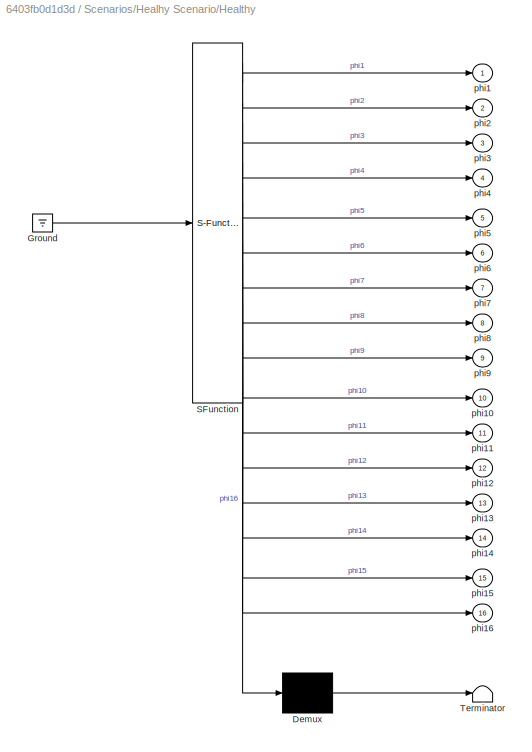
BLOCK [SubSystem] Scenarios/Healhy Scenario/Healthy
  ErrorFcn = Stateflow.Translate.translate
  PermitHierarchicalResolution = ExplicitOnly
  Ports = [0, 16]
  RequestExecContextInheritance = off
  SFBlockType = Chart
  TreatAsAtomicUnit = on
BLOCK [Demux] Scenarios/Healhy Scenario/Healthy/ Demux 
  Outputs = 1
  Ports = [1, 1]
BLOCK [Ground] Scenarios/Healhy Scenario/Healthy/ Ground 
BLOCK [S-Function] Scenarios/Healhy Scenario/Healthy/ SFunction 
  EnableBusSupport = on
  FunctionName = sf_sfun
  PortCounts = [1 17]
  Ports = [1, 17]
  SFcnIsStateOwnerBlock = off
  SFunctionDeploymentMode = off
  Tag = Stateflow S-Function five_tank_hybrid_system 27
BLOCK [Terminator] Scenarios/Healhy Scenario/Healthy/ Terminator 
BLOCK [Outport] Scenarios/Healhy Scenario/Healthy/phi1
  IconDisplay = Port number
BLOCK [Outport] Scenarios/Healhy Scenario/Healthy/phi10
  IconDisplay = Port number
  Port = 10
BLOCK [Outport] Scenarios/Healhy Scenario/Healthy/phi11
  IconDisplay = Port number
  Port = 11
BLOCK [Outport] Scenarios/Healhy Scenario/Healthy/phi12
  IconDisplay = Port number
  Port = 12
BLOCK [Outport] Scenarios/Healhy Scenario/Healthy/phi13
  IconDisplay = Port number
  Port = 13
BLOCK [Outport] Scenarios/Healhy Scenario/Healthy/phi14
  IconDisplay = Port number
  Port = 14
BLOCK [Outport] Scenarios/Healhy Scenario/Healthy/phi15
  IconDisplay = Port number
  Port = 15
BLOCK [Outport] Scenarios/Healhy Scenario/Healthy/phi16
  IconDisplay = Port number
  Port = 16
BLOCK [Outport] Scenarios/Healhy Scenario/Healthy/phi2
  IconDisplay = Port number
  Port = 2
BLOCK [Outport] Scenarios/Healhy Scenario/Healthy/phi3
  IconDisplay = Port number
  Port = 3
BLOCK [Outport] Scenarios/Healhy Scenario/Healthy/phi4
  IconDisplay = Port number
  Port = 4
BLOCK [Outport] Scenarios/Healhy Scenario/Healthy/phi5
  IconDisplay = Port number
  Port = 5
BLOCK [Outport] Scenarios/Healhy Scenario/Healthy/phi6
  IconDisplay = Port number
  Port = 6
BLOCK [Outport] Scenarios/Healhy Scenario/Healthy/phi7
  IconDisplay = Port number
  Port = 7
BLOCK [Outport] Scenarios/Healhy Scenario/Healthy/phi8
  IconDisplay = Port number
  Port = 8
BLOCK [Outport] Scenarios/Healhy Scenario/Healthy/phi9
  IconDisplay = Port number
  Port = 9
BLOCK [SubSystem] Scenarios/Leak Tank 1
  Commented = on
  Ports = []
  RequestExecContextInheritance = off
BLOCK [Constant] Scenarios/Leak Tank 1/Fault_time
  Value = 200
BLOCK [Goto] Scenarios/Leak Tank 1/Goto10
  GotoTag = phi5
  TagVisibility = global
BLOCK [Goto] Scenarios/Leak Tank 1/Goto11
  GotoTag = phi6
  TagVisibility = global
BLOCK [Goto] Scenarios/Leak Tank 1/Goto12
  GotoTag = phi7
  TagVisibility = global
BLOCK [Goto] Scenarios/Leak Tank 1/Goto13
  GotoTag = phi8
  TagVisibility = global
BLOCK [Goto] Scenarios/Leak Tank 1/Goto14
  GotoTag = phi9
  TagVisibility = global
BLOCK [Goto] Scenarios/Leak Tank 1/Goto15
  GotoTag = phi10
  TagVisibility = global
BLOCK [Goto] Scenarios/Leak Tank 1/Goto16
  GotoTag = phi11
  TagVisibility = global
BLOCK [Goto] Scenarios/Leak Tank 1/Goto17
  GotoTag = phi12
  TagVisibility = global
BLOCK [Goto] Scenarios/Leak Tank 1/Goto18
  GotoTag = phi13
  TagVisibility = global
BLOCK [Goto] Scenarios/Leak Tank 1/Goto19
  GotoTag = phi14
  TagVisibility = global
BLOCK [Goto] Scenarios/Leak Tank 1/Goto20
  GotoTag = phi15
  TagVisibility = global
BLOCK [Goto] Scenarios/Leak Tank 1/Goto21
  GotoTag = phi16
  TagVisibility = global
BLOCK [Goto] Scenarios/Leak Tank 1/Goto6
  GotoTag = phi2
  TagVisibility = global
BLOCK [Goto] Scenarios/Leak Tank 1/Goto7
  GotoTag = phi1
  TagVisibility = global
BLOCK [Goto] Scenarios/Leak Tank 1/Goto8
  GotoTag = phi3
  TagVisibility = global
BLOCK [Goto] Scenarios/Leak Tank 1/Goto9
  GotoTag = phi4
  TagVisibility = global
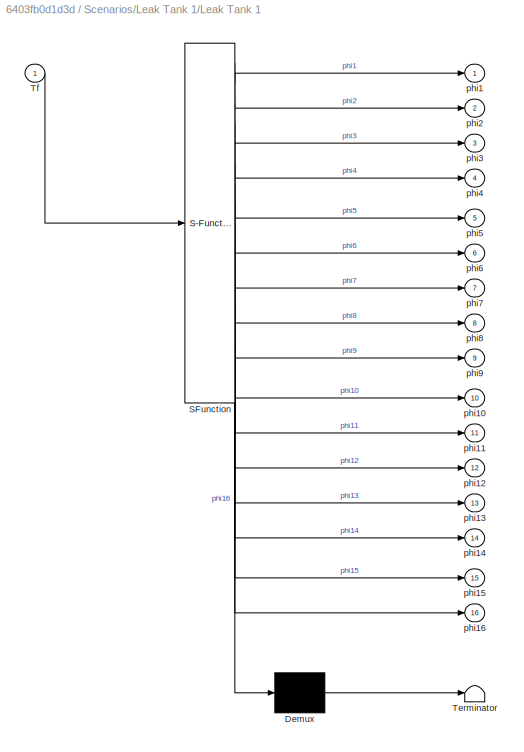
BLOCK [SubSystem] Scenarios/Leak Tank 1/Leak Tank 1
  ErrorFcn = Stateflow.Translate.translate
  PermitHierarchicalResolution = ExplicitOnly
  Ports = [1, 16]
  RequestExecContextInheritance = off
  SFBlockType = Chart
  TreatAsAtomicUnit = on
BLOCK [Demux] Scenarios/Leak Tank 1/Leak Tank 1/ Demux 
  Outputs = 1
  Ports = [1, 1]
BLOCK [S-Function] Scenarios/Leak Tank 1/Leak Tank 1/ SFunction 
  EnableBusSupport = on
  FunctionName = sf_sfun
  PortCounts = [1 17]
  Ports = [1, 17]
  SFcnIsStateOwnerBlock = off
  SFunctionDeploymentMode = off
  Tag = Stateflow S-Function five_tank_hybrid_system 28
BLOCK [Terminator] Scenarios/Leak Tank 1/Leak Tank 1/ Terminator 
BLOCK [Inport] Scenarios/Leak Tank 1/Leak Tank 1/Tf
  IconDisplay = Port number
BLOCK [Outport] Scenarios/Leak Tank 1/Leak Tank 1/phi1
  IconDisplay = Port number
BLOCK [Outport] Scenarios/Leak Tank 1/Leak Tank 1/phi10
  IconDisplay = Port number
  Port = 10
BLOCK [Outport] Scenarios/Leak Tank 1/Leak Tank 1/phi11
  IconDisplay = Port number
  Port = 11
BLOCK [Outport] Scenarios/Leak Tank 1/Leak Tank 1/phi12
  IconDisplay = Port number
  Port = 12
BLOCK [Outport] Scenarios/Leak Tank 1/Leak Tank 1/phi13
  IconDisplay = Port number
  Port = 13
BLOCK [Outport] Scenarios/Leak Tank 1/Leak Tank 1/phi14
  IconDisplay = Port number
  Port = 14
BLOCK [Outport] Scenarios/Leak Tank 1/Leak Tank 1/phi15
  IconDisplay = Port number
  Port = 15
BLOCK [Outport] Scenarios/Leak Tank 1/Leak Tank 1/phi16
  IconDisplay = Port number
  Port = 16
BLOCK [Outport] Scenarios/Leak Tank 1/Leak Tank 1/phi2
  IconDisplay = Port number
  Port = 2
BLOCK [Outport] Scenarios/Leak Tank 1/Leak Tank 1/phi3
  IconDisplay = Port number
  Port = 3
BLOCK [Outport] Scenarios/Leak Tank 1/Leak Tank 1/phi4
  IconDisplay = Port number
  Port = 4
BLOCK [Outport] Scenarios/Leak Tank 1/Leak Tank 1/phi5
  IconDisplay = Port number
  Port = 5
BLOCK [Outport] Scenarios/Leak Tank 1/Leak Tank 1/phi6
  IconDisplay = Port number
  Port = 6
BLOCK [Outport] Scenarios/Leak Tank 1/Leak Tank 1/phi7
  IconDisplay = Port number
  Port = 7
BLOCK [Outport] Scenarios/Leak Tank 1/Leak Tank 1/phi8
  IconDisplay = Port number
  Port = 8
BLOCK [Outport] Scenarios/Leak Tank 1/Leak Tank 1/phi9
  IconDisplay = Port number
  Port = 9
BLOCK [SubSystem] Scenarios/Leak Tank 2
  Commented = on
  Ports = []
  RequestExecContextInheritance = off
BLOCK [Constant] Scenarios/Leak Tank 2/Fault_time
  Value = 200
BLOCK [Goto] Scenarios/Leak Tank 2/Goto10
  GotoTag = phi5
  TagVisibility = global
BLOCK [Goto] Scenarios/Leak Tank 2/Goto11
  GotoTag = phi6
  TagVisibility = global
BLOCK [Goto] Scenarios/Leak Tank 2/Goto12
  GotoTag = phi7
  TagVisibility = global
BLOCK [Goto] Scenarios/Leak Tank 2/Goto13
  GotoTag = phi8
  TagVisibility = global
BLOCK [Goto] Scenarios/Leak Tank 2/Goto14
  GotoTag = phi9
  TagVisibility = global
BLOCK [Goto] Scenarios/Leak Tank 2/Goto15
  GotoTag = phi10
  TagVisibility = global
BLOCK [Goto] Scenarios/Leak Tank 2/Goto16
  GotoTag = phi11
  TagVisibility = global
BLOCK [Goto] Scenarios/Leak Tank 2/Goto17
  GotoTag = phi12
  TagVisibility = global
BLOCK [Goto] Scenarios/Leak Tank 2/Goto18
  GotoTag = phi13
  TagVisibility = global
BLOCK [Goto] Scenarios/Leak Tank 2/Goto19
  GotoTag = phi14
  TagVisibility = global
BLOCK [Goto] Scenarios/Leak Tank 2/Goto20
  GotoTag = phi15
  TagVisibility = global
BLOCK [Goto] Scenarios/Leak Tank 2/Goto21
  GotoTag = phi16
  TagVisibility = global
BLOCK [Goto] Scenarios/Leak Tank 2/Goto6
  GotoTag = phi2
  TagVisibility = global
BLOCK [Goto] Scenarios/Leak Tank 2/Goto7
  GotoTag = phi1
  TagVisibility = global
BLOCK [Goto] Scenarios/Leak Tank 2/Goto8
  GotoTag = phi3
  TagVisibility = global
BLOCK [Goto] Scenarios/Leak Tank 2/Goto9
  GotoTag = phi4
  TagVisibility = global
BLOCK [SubSystem] Scenarios/Leak Tank 2/Leak Tank 2
  ErrorFcn = Stateflow.Translate.translate
  PermitHierarchicalResolution = ExplicitOnly
  Ports = [1, 16]
  RequestExecContextInheritance = off
  SFBlockType = Chart
  TreatAsAtomicUnit = on
BLOCK [Demux] Scenarios/Leak Tank 2/Leak Tank 2/ Demux 
  Outputs = 1
  Ports = [1, 1]
BLOCK [S-Function] Scenarios/Leak Tank 2/Leak Tank 2/ SFunction 
  EnableBusSupport = on
  FunctionName = sf_sfun
  PortCounts = [1 17]
  Ports = [1, 17]
  SFcnIsStateOwnerBlock = off
  SFunctionDeploymentMode = off
  Tag = Stateflow S-Function five_tank_hybrid_system 29
BLOCK [Terminator] Scenarios/Leak Tank 2/Leak Tank 2/ Terminator 
BLOCK [Inport] Scenarios/Leak Tank 2/Leak Tank 2/Tf
  IconDisplay = Port number
BLOCK [Outport] Scenarios/Leak Tank 2/Leak Tank 2/phi1
  IconDisplay = Port number
BLOCK [Outport] Scenarios/Leak Tank 2/Leak Tank 2/phi10
  IconDisplay = Port number
  Port = 10
BLOCK [Outport] Scenarios/Leak Tank 2/Leak Tank 2/phi11
  IconDisplay = Port number
  Port = 11
BLOCK [Outport] Scenarios/Leak Tank 2/Leak Tank 2/phi12
  IconDisplay = Port number
  Port = 12
BLOCK [Outport] Scenarios/Leak Tank 2/Leak Tank 2/phi13
  IconDisplay = Port number
  Port = 13
BLOCK [Outport] Scenarios/Leak Tank 2/Leak Tank 2/phi14
  IconDisplay = Port number
  Port = 14
BLOCK [Outport] Scenarios/Leak Tank 2/Leak Tank 2/phi15
  IconDisplay = Port number
  Port = 15
BLOCK [Outport] Scenarios/Leak Tank 2/Leak Tank 2/phi16
  IconDisplay = Port number
  Port = 16
BLOCK [Outport] Scenarios/Leak Tank 2/Leak Tank 2/phi2
  IconDisplay = Port number
  Port = 2
BLOCK [Outport] Scenarios/Leak Tank 2/Leak Tank 2/phi3
  IconDisplay = Port number
  Port = 3
BLOCK [Outport] Scenarios/Leak Tank 2/Leak Tank 2/phi4
  IconDisplay = Port number
  Port = 4
BLOCK [Outport] Scenarios/Leak Tank 2/Leak Tank 2/phi5
  IconDisplay = Port number
  Port = 5
BLOCK [Outport] Scenarios/Leak Tank 2/Leak Tank 2/phi6
  IconDisplay = Port number
  Port = 6
BLOCK [Outport] Scenarios/Leak Tank 2/Leak Tank 2/phi7
  IconDisplay = Port number
  Port = 7
BLOCK [Outport] Scenarios/Leak Tank 2/Leak Tank 2/phi8
  IconDisplay = Port number
  Port = 8
BLOCK [Outport] Scenarios/Leak Tank 2/Leak Tank 2/phi9
  IconDisplay = Port number
  Port = 9
BLOCK [SubSystem] Scenarios/Leak Tank 3
  Commented = on
  Ports = []
  RequestExecContextInheritance = off
BLOCK [Constant] Scenarios/Leak Tank 3/Fault_time
  Value = 200
BLOCK [Goto] Scenarios/Leak Tank 3/Goto10
  GotoTag = phi5
  TagVisibility = global
BLOCK [Goto] Scenarios/Leak Tank 3/Goto11
  GotoTag = phi6
  TagVisibility = global
BLOCK [Goto] Scenarios/Leak Tank 3/Goto12
  GotoTag = phi7
  TagVisibility = global
BLOCK [Goto] Scenarios/Leak Tank 3/Goto13
  GotoTag = phi8
  TagVisibility = global
BLOCK [Goto] Scenarios/Leak Tank 3/Goto14
  GotoTag = phi9
  TagVisibility = global
BLOCK [Goto] Scenarios/Leak Tank 3/Goto15
  GotoTag = phi10
  TagVisibility = global
BLOCK [Goto] Scenarios/Leak Tank 3/Goto16
  GotoTag = phi11
  TagVisibility = global
BLOCK [Goto] Scenarios/Leak Tank 3/Goto17
  GotoTag = phi12
  TagVisibility = global
BLOCK [Goto] Scenarios/Leak Tank 3/Goto18
  GotoTag = phi13
  TagVisibility = global
BLOCK [Goto] Scenarios/Leak Tank 3/Goto19
  GotoTag = phi14
  TagVisibility = global
BLOCK [Goto] Scenarios/Leak Tank 3/Goto20
  GotoTag = phi15
  TagVisibility = global
BLOCK [Goto] Scenarios/Leak Tank 3/Goto21
  GotoTag = phi16
  TagVisibility = global
BLOCK [Goto] Scenarios/Leak Tank 3/Goto6
  GotoTag = phi2
  TagVisibility = global
BLOCK [Goto] Scenarios/Leak Tank 3/Goto7
  GotoTag = phi1
  TagVisibility = global
BLOCK [Goto] Scenarios/Leak Tank 3/Goto8
  GotoTag = phi3
  TagVisibility = global
BLOCK [Goto] Scenarios/Leak Tank 3/Goto9
  GotoTag = phi4
  TagVisibility = global
BLOCK [SubSystem] Scenarios/Leak Tank 3/Leak Tank 2
  ErrorFcn = Stateflow.Translate.translate
  PermitHierarchicalResolution = ExplicitOnly
  Ports = [1, 16]
  RequestExecContextInheritance = off
  SFBlockType = Chart
  TreatAsAtomicUnit = on
BLOCK [Demux] Scenarios/Leak Tank 3/Leak Tank 2/ Demux 
  Outputs = 1
  Ports = [1, 1]
BLOCK [S-Function] Scenarios/Leak Tank 3/Leak Tank 2/ SFunction 
  EnableBusSupport = on
  FunctionName = sf_sfun
  PortCounts = [1 17]
  Ports = [1, 17]
  SFcnIsStateOwnerBlock = off
  SFunctionDeploymentMode = off
  Tag = Stateflow S-Function five_tank_hybrid_system 30
BLOCK [Terminator] Scenarios/Leak Tank 3/Leak Tank 2/ Terminator 
BLOCK [Inport] Scenarios/Leak Tank 3/Leak Tank 2/Tf
  IconDisplay = Port number
BLOCK [Outport] Scenarios/Leak Tank 3/Leak Tank 2/phi1
  IconDisplay = Port number
BLOCK [Outport] Scenarios/Leak Tank 3/Leak Tank 2/phi10
  IconDisplay = Port number
  Port = 10
BLOCK [Outport] Scenarios/Leak Tank 3/Leak Tank 2/phi11
  IconDisplay = Port number
  Port = 11
BLOCK [Outport] Scenarios/Leak Tank 3/Leak Tank 2/phi12
  IconDisplay = Port number
  Port = 12
BLOCK [Outport] Scenarios/Leak Tank 3/Leak Tank 2/phi13
  IconDisplay = Port number
  Port = 13
BLOCK [Outport] Scenarios/Leak Tank 3/Leak Tank 2/phi14
  IconDisplay = Port number
  Port = 14
BLOCK [Outport] Scenarios/Leak Tank 3/Leak Tank 2/phi15
  IconDisplay = Port number
  Port = 15
BLOCK [Outport] Scenarios/Leak Tank 3/Leak Tank 2/phi16
  IconDisplay = Port number
  Port = 16
BLOCK [Outport] Scenarios/Leak Tank 3/Leak Tank 2/phi2
  IconDisplay = Port number
  Port = 2
BLOCK [Outport] Scenarios/Leak Tank 3/Leak Tank 2/phi3
  IconDisplay = Port number
  Port = 3
BLOCK [Outport] Scenarios/Leak Tank 3/Leak Tank 2/phi4
  IconDisplay = Port number
  Port = 4
BLOCK [Outport] Scenarios/Leak Tank 3/Leak Tank 2/phi5
  IconDisplay = Port number
  Port = 5
BLOCK [Outport] Scenarios/Leak Tank 3/Leak Tank 2/phi6
  IconDisplay = Port number
  Port = 6
BLOCK [Outport] Scenarios/Leak Tank 3/Leak Tank 2/phi7
  IconDisplay = Port number
  Port = 7
BLOCK [Outport] Scenarios/Leak Tank 3/Leak Tank 2/phi8
  IconDisplay = Port number
  Port = 8
BLOCK [Outport] Scenarios/Leak Tank 3/Leak Tank 2/phi9
  IconDisplay = Port number
  Port = 9
BLOCK [SubSystem] Scenarios/Leak Tank 4
  Commented = on
  Ports = []
  RequestExecContextInheritance = off
BLOCK [Constant] Scenarios/Leak Tank 4/Fault_time
  Value = 200
BLOCK [Goto] Scenarios/Leak Tank 4/Goto10
  GotoTag = phi5
  TagVisibility = global
BLOCK [Goto] Scenarios/Leak Tank 4/Goto11
  GotoTag = phi6
  TagVisibility = global
BLOCK [Goto] Scenarios/Leak Tank 4/Goto12
  GotoTag = phi7
  TagVisibility = global
BLOCK [Goto] Scenarios/Leak Tank 4/Goto13
  GotoTag = phi8
  TagVisibility = global
BLOCK [Goto] Scenarios/Leak Tank 4/Goto14
  GotoTag = phi9
  TagVisibility = global
BLOCK [Goto] Scenarios/Leak Tank 4/Goto15
  GotoTag = phi10
  TagVisibility = global
BLOCK [Goto] Scenarios/Leak Tank 4/Goto16
  GotoTag = phi11
  TagVisibility = global
BLOCK [Goto] Scenarios/Leak Tank 4/Goto17
  GotoTag = phi12
  TagVisibility = global
BLOCK [Goto] Scenarios/Leak Tank 4/Goto18
  GotoTag = phi13
  TagVisibility = global
BLOCK [Goto] Scenarios/Leak Tank 4/Goto19
  GotoTag = phi14
  TagVisibility = global
BLOCK [Goto] Scenarios/Leak Tank 4/Goto20
  GotoTag = phi15
  TagVisibility = global
BLOCK [Goto] Scenarios/Leak Tank 4/Goto21
  GotoTag = phi16
  TagVisibility = global
BLOCK [Goto] Scenarios/Leak Tank 4/Goto6
  GotoTag = phi2
  TagVisibility = global
BLOCK [Goto] Scenarios/Leak Tank 4/Goto7
  GotoTag = phi1
  TagVisibility = global
BLOCK [Goto] Scenarios/Leak Tank 4/Goto8
  GotoTag = phi3
  TagVisibility = global
BLOCK [Goto] Scenarios/Leak Tank 4/Goto9
  GotoTag = phi4
  TagVisibility = global
BLOCK [SubSystem] Scenarios/Leak Tank 4/Leak Tank 4
  ErrorFcn = Stateflow.Translate.translate
  PermitHierarchicalResolution = ExplicitOnly
  Ports = [1, 16]
  RequestExecContextInheritance = off
  SFBlockType = Chart
  TreatAsAtomicUnit = on
BLOCK [Demux] Scenarios/Leak Tank 4/Leak Tank 4/ Demux 
  Outputs = 1
  Ports = [1, 1]
BLOCK [S-Function] Scenarios/Leak Tank 4/Leak Tank 4/ SFunction 
  EnableBusSupport = on
  FunctionName = sf_sfun
  PortCounts = [1 17]
  Ports = [1, 17]
  SFcnIsStateOwnerBlock = off
  SFunctionDeploymentMode = off
  Tag = Stateflow S-Function five_tank_hybrid_system 31
BLOCK [Terminator] Scenarios/Leak Tank 4/Leak Tank 4/ Terminator 
BLOCK [Inport] Scenarios/Leak Tank 4/Leak Tank 4/Tf
  IconDisplay = Port number
BLOCK [Outport] Scenarios/Leak Tank 4/Leak Tank 4/phi1
  IconDisplay = Port number
BLOCK [Outport] Scenarios/Leak Tank 4/Leak Tank 4/phi10
  IconDisplay = Port number
  Port = 10
BLOCK [Outport] Scenarios/Leak Tank 4/Leak Tank 4/phi11
  IconDisplay = Port number
  Port = 11
BLOCK [Outport] Scenarios/Leak Tank 4/Leak Tank 4/phi12
  IconDisplay = Port number
  Port = 12
BLOCK [Outport] Scenarios/Leak Tank 4/Leak Tank 4/phi13
  IconDisplay = Port number
  Port = 13
BLOCK [Outport] Scenarios/Leak Tank 4/Leak Tank 4/phi14
  IconDisplay = Port number
  Port = 14
BLOCK [Outport] Scenarios/Leak Tank 4/Leak Tank 4/phi15
  IconDisplay = Port number
  Port = 15
BLOCK [Outport] Scenarios/Leak Tank 4/Leak Tank 4/phi16
  IconDisplay = Port number
  Port = 16
BLOCK [Outport] Scenarios/Leak Tank 4/Leak Tank 4/phi2
  IconDisplay = Port number
  Port = 2
BLOCK [Outport] Scenarios/Leak Tank 4/Leak Tank 4/phi3
  IconDisplay = Port number
  Port = 3
BLOCK [Outport] Scenarios/Leak Tank 4/Leak Tank 4/phi4
  IconDisplay = Port number
  Port = 4
BLOCK [Outport] Scenarios/Leak Tank 4/Leak Tank 4/phi5
  IconDisplay = Port number
  Port = 5
BLOCK [Outport] Scenarios/Leak Tank 4/Leak Tank 4/phi6
  IconDisplay = Port number
  Port = 6
BLOCK [Outport] Scenarios/Leak Tank 4/Leak Tank 4/phi7
  IconDisplay = Port number
  Port = 7
BLOCK [Outport] Scenarios/Leak Tank 4/Leak Tank 4/phi8
  IconDisplay = Port number
  Port = 8
BLOCK [Outport] Scenarios/Leak Tank 4/Leak Tank 4/phi9
  IconDisplay = Port number
  Port = 9
BLOCK [SubSystem] Scenarios/Leak Tank 5
  Commented = on
  Ports = []
  RequestExecContextInheritance = off
BLOCK [Constant] Scenarios/Leak Tank 5/Fault_time
  Value = 200
BLOCK [Goto] Scenarios/Leak Tank 5/Goto10
  GotoTag = phi5
  TagVisibility = global
BLOCK [Goto] Scenarios/Leak Tank 5/Goto11
  GotoTag = phi6
  TagVisibility = global
BLOCK [Goto] Scenarios/Leak Tank 5/Goto12
  GotoTag = phi7
  TagVisibility = global
BLOCK [Goto] Scenarios/Leak Tank 5/Goto13
  GotoTag = phi8
  TagVisibility = global
BLOCK [Goto] Scenarios/Leak Tank 5/Goto14
  GotoTag = phi9
  TagVisibility = global
BLOCK [Goto] Scenarios/Leak Tank 5/Goto15
  GotoTag = phi10
  TagVisibility = global
BLOCK [Goto] Scenarios/Leak Tank 5/Goto16
  GotoTag = phi11
  TagVisibility = global
BLOCK [Goto] Scenarios/Leak Tank 5/Goto17
  GotoTag = phi12
  TagVisibility = global
BLOCK [Goto] Scenarios/Leak Tank 5/Goto18
  GotoTag = phi13
  TagVisibility = global
BLOCK [Goto] Scenarios/Leak Tank 5/Goto19
  GotoTag = phi14
  TagVisibility = global
BLOCK [Goto] Scenarios/Leak Tank 5/Goto20
  GotoTag = phi15
  TagVisibility = global
BLOCK [Goto] Scenarios/Leak Tank 5/Goto21
  GotoTag = phi16
  TagVisibility = global
BLOCK [Goto] Scenarios/Leak Tank 5/Goto6
  GotoTag = phi2
  TagVisibility = global
BLOCK [Goto] Scenarios/Leak Tank 5/Goto7
  GotoTag = phi1
  TagVisibility = global
BLOCK [Goto] Scenarios/Leak Tank 5/Goto8
  GotoTag = phi3
  TagVisibility = global
BLOCK [Goto] Scenarios/Leak Tank 5/Goto9
  GotoTag = phi4
  TagVisibility = global
BLOCK [SubSystem] Scenarios/Leak Tank 5/Leak Tank 5
  ErrorFcn = Stateflow.Translate.translate
  PermitHierarchicalResolution = ExplicitOnly
  Ports = [1, 16]
  RequestExecContextInheritance = off
  SFBlockType = Chart
  TreatAsAtomicUnit = on
BLOCK [Demux] Scenarios/Leak Tank 5/Leak Tank 5/ Demux 
  Outputs = 1
  Ports = [1, 1]
BLOCK [S-Function] Scenarios/Leak Tank 5/Leak Tank 5/ SFunction 
  EnableBusSupport = on
  FunctionName = sf_sfun
  PortCounts = [1 17]
  Ports = [1, 17]
  SFcnIsStateOwnerBlock = off
  SFunctionDeploymentMode = off
  Tag = Stateflow S-Function five_tank_hybrid_system 32
BLOCK [Terminator] Scenarios/Leak Tank 5/Leak Tank 5/ Terminator 
BLOCK [Inport] Scenarios/Leak Tank 5/Leak Tank 5/Tf
  IconDisplay = Port number
BLOCK [Outport] Scenarios/Leak Tank 5/Leak Tank 5/phi1
  IconDisplay = Port number
BLOCK [Outport] Scenarios/Leak Tank 5/Leak Tank 5/phi10
  IconDisplay = Port number
  Port = 10
BLOCK [Outport] Scenarios/Leak Tank 5/Leak Tank 5/phi11
  IconDisplay = Port number
  Port = 11
BLOCK [Outport] Scenarios/Leak Tank 5/Leak Tank 5/phi12
  IconDisplay = Port number
  Port = 12
BLOCK [Outport] Scenarios/Leak Tank 5/Leak Tank 5/phi13
  IconDisplay = Port number
  Port = 13
BLOCK [Outport] Scenarios/Leak Tank 5/Leak Tank 5/phi14
  IconDisplay = Port number
  Port = 14
BLOCK [Outport] Scenarios/Leak Tank 5/Leak Tank 5/phi15
  IconDisplay = Port number
  Port = 15
BLOCK [Outport] Scenarios/Leak Tank 5/Leak Tank 5/phi16
  IconDisplay = Port number
  Port = 16
BLOCK [Outport] Scenarios/Leak Tank 5/Leak Tank 5/phi2
  IconDisplay = Port number
  Port = 2
BLOCK [Outport] Scenarios/Leak Tank 5/Leak Tank 5/phi3
  IconDisplay = Port number
  Port = 3
BLOCK [Outport] Scenarios/Leak Tank 5/Leak Tank 5/phi4
  IconDisplay = Port number
  Port = 4
BLOCK [Outport] Scenarios/Leak Tank 5/Leak Tank 5/phi5
  IconDisplay = Port number
  Port = 5
BLOCK [Outport] Scenarios/Leak Tank 5/Leak Tank 5/phi6
  IconDisplay = Port number
  Port = 6
BLOCK [Outport] Scenarios/Leak Tank 5/Leak Tank 5/phi7
  IconDisplay = Port number
  Port = 7
BLOCK [Outport] Scenarios/Leak Tank 5/Leak Tank 5/phi8
  IconDisplay = Port number
  Port = 8
BLOCK [Outport] Scenarios/Leak Tank 5/Leak Tank 5/phi9
  IconDisplay = Port number
  Port = 9
BLOCK [SubSystem] Scenarios/Multible
  Commented = on
  Ports = []
  RequestExecContextInheritance = off
BLOCK [Constant] Scenarios/Multible/Fault_time
  Value = 100
BLOCK [Goto] Scenarios/Multible/Goto10
  GotoTag = phi5
  TagVisibility = global
BLOCK [Goto] Scenarios/Multible/Goto11
  GotoTag = phi6
  TagVisibility = global
BLOCK [Goto] Scenarios/Multible/Goto12
  GotoTag = phi7
  TagVisibility = global
BLOCK [Goto] Scenarios/Multible/Goto13
  GotoTag = phi8
  TagVisibility = global
BLOCK [Goto] Scenarios/Multible/Goto14
  GotoTag = phi9
  TagVisibility = global
BLOCK [Goto] Scenarios/Multible/Goto15
  GotoTag = phi10
  TagVisibility = global
BLOCK [Goto] Scenarios/Multible/Goto16
  GotoTag = phi11
  TagVisibility = global
BLOCK [Goto] Scenarios/Multible/Goto17
  GotoTag = phi12
  TagVisibility = global
BLOCK [Goto] Scenarios/Multible/Goto18
  GotoTag = phi13
  TagVisibility = global
BLOCK [Goto] Scenarios/Multible/Goto19
  GotoTag = phi14
  TagVisibility = global
BLOCK [Goto] Scenarios/Multible/Goto20
  GotoTag = phi15
  TagVisibility = global
BLOCK [Goto] Scenarios/Multible/Goto21
  GotoTag = phi16
  TagVisibility = global
BLOCK [Goto] Scenarios/Multible/Goto6
  GotoTag = phi2
  TagVisibility = global
BLOCK [Goto] Scenarios/Multible/Goto7
  GotoTag = phi1
  TagVisibility = global
BLOCK [Goto] Scenarios/Multible/Goto8
  GotoTag = phi3
  TagVisibility = global
BLOCK [Goto] Scenarios/Multible/Goto9
  GotoTag = phi4
  TagVisibility = global
BLOCK [SubSystem] Scenarios/Multible/Stuck Close
  ErrorFcn = Stateflow.Translate.translate
  PermitHierarchicalResolution = ExplicitOnly
  Ports = [1, 16]
  RequestExecContextInheritance = off
  SFBlockType = Chart
  TreatAsAtomicUnit = on
BLOCK [Demux] Scenarios/Multible/Stuck Close/ Demux 
  Outputs = 1
  Ports = [1, 1]
BLOCK [S-Function] Scenarios/Multible/Stuck Close/ SFunction 
  EnableBusSupport = on
  FunctionName = sf_sfun
  PortCounts = [1 17]
  Ports = [1, 17]
  SFcnIsStateOwnerBlock = off
  SFunctionDeploymentMode = off
  Tag = Stateflow S-Function five_tank_hybrid_system 44
BLOCK [Terminator] Scenarios/Multible/Stuck Close/ Terminator 
BLOCK [Inport] Scenarios/Multible/Stuck Close/Tf
  IconDisplay = Port number
BLOCK [Outport] Scenarios/Multible/Stuck Close/phi1
  IconDisplay = Port number
BLOCK [Outport] Scenarios/Multible/Stuck Close/phi10
  IconDisplay = Port number
  Port = 10
BLOCK [Outport] Scenarios/Multible/Stuck Close/phi11
  IconDisplay = Port number
  Port = 11
BLOCK [Outport] Scenarios/Multible/Stuck Close/phi12
  IconDisplay = Port number
  Port = 12
BLOCK [Outport] Scenarios/Multible/Stuck Close/phi13
  IconDisplay = Port number
  Port = 13
BLOCK [Outport] Scenarios/Multible/Stuck Close/phi14
  IconDisplay = Port number
  Port = 14
BLOCK [Outport] Scenarios/Multible/Stuck Close/phi15
  IconDisplay = Port number
  Port = 15
BLOCK [Outport] Scenarios/Multible/Stuck Close/phi16
  IconDisplay = Port number
  Port = 16
BLOCK [Outport] Scenarios/Multible/Stuck Close/phi2
  IconDisplay = Port number
  Port = 2
BLOCK [Outport] Scenarios/Multible/Stuck Close/phi3
  IconDisplay = Port number
  Port = 3
BLOCK [Outport] Scenarios/Multible/Stuck Close/phi4
  IconDisplay = Port number
  Port = 4
BLOCK [Outport] Scenarios/Multible/Stuck Close/phi5
  IconDisplay = Port number
  Port = 5
BLOCK [Outport] Scenarios/Multible/Stuck Close/phi6
  IconDisplay = Port number
  Port = 6
BLOCK [Outport] Scenarios/Multible/Stuck Close/phi7
  IconDisplay = Port number
  Port = 7
BLOCK [Outport] Scenarios/Multible/Stuck Close/phi8
  IconDisplay = Port number
  Port = 8
BLOCK [Outport] Scenarios/Multible/Stuck Close/phi9
  IconDisplay = Port number
  Port = 9
BLOCK [SubSystem] Scenarios/Pump 1 Fail
  Commented = on
  Ports = []
  RequestExecContextInheritance = off
BLOCK [Constant] Scenarios/Pump 1 Fail/Fault_time
  Value = 350
BLOCK [Goto] Scenarios/Pump 1 Fail/Goto10
  GotoTag = phi5
  TagVisibility = global
BLOCK [Goto] Scenarios/Pump 1 Fail/Goto11
  GotoTag = phi6
  TagVisibility = global
BLOCK [Goto] Scenarios/Pump 1 Fail/Goto12
  GotoTag = phi7
  TagVisibility = global
BLOCK [Goto] Scenarios/Pump 1 Fail/Goto13
  GotoTag = phi8
  TagVisibility = global
BLOCK [Goto] Scenarios/Pump 1 Fail/Goto14
  GotoTag = phi9
  TagVisibility = global
BLOCK [Goto] Scenarios/Pump 1 Fail/Goto15
  GotoTag = phi10
  TagVisibility = global
BLOCK [Goto] Scenarios/Pump 1 Fail/Goto16
  GotoTag = phi11
  TagVisibility = global
BLOCK [Goto] Scenarios/Pump 1 Fail/Goto17
  GotoTag = phi12
  TagVisibility = global
BLOCK [Goto] Scenarios/Pump 1 Fail/Goto18
  GotoTag = phi13
  TagVisibility = global
BLOCK [Goto] Scenarios/Pump 1 Fail/Goto19
  GotoTag = phi14
  TagVisibility = global
BLOCK [Goto] Scenarios/Pump 1 Fail/Goto20
  GotoTag = phi15
  TagVisibility = global
BLOCK [Goto] Scenarios/Pump 1 Fail/Goto21
  GotoTag = phi16
  TagVisibility = global
BLOCK [Goto] Scenarios/Pump 1 Fail/Goto6
  GotoTag = phi2
  TagVisibility = global
BLOCK [Goto] Scenarios/Pump 1 Fail/Goto7
  GotoTag = phi1
  TagVisibility = global
BLOCK [Goto] Scenarios/Pump 1 Fail/Goto8
  GotoTag = phi3
  TagVisibility = global
BLOCK [Goto] Scenarios/Pump 1 Fail/Goto9
  GotoTag = phi4
  TagVisibility = global
BLOCK [SubSystem] Scenarios/Pump 1 Fail/Pump 1 Fail
  ErrorFcn = Stateflow.Translate.translate
  PermitHierarchicalResolution = ExplicitOnly
  Ports = [1, 16]
  RequestExecContextInheritance = off
  SFBlockType = Chart
  TreatAsAtomicUnit = on
BLOCK [Demux] Scenarios/Pump 1 Fail/Pump 1 Fail/ Demux 
  Outputs = 1
  Ports = [1, 1]
BLOCK [S-Function] Scenarios/Pump 1 Fail/Pump 1 Fail/ SFunction 
  EnableBusSupport = on
  FunctionName = sf_sfun
  PortCounts = [1 17]
  Ports = [1, 17]
  SFcnIsStateOwnerBlock = off
  SFunctionDeploymentMode = off
  Tag = Stateflow S-Function five_tank_hybrid_system 33
BLOCK [Terminator] Scenarios/Pump 1 Fail/Pump 1 Fail/ Terminator 
BLOCK [Inport] Scenarios/Pump 1 Fail/Pump 1 Fail/Tf
  IconDisplay = Port number
BLOCK [Outport] Scenarios/Pump 1 Fail/Pump 1 Fail/phi1
  IconDisplay = Port number
BLOCK [Outport] Scenarios/Pump 1 Fail/Pump 1 Fail/phi10
  IconDisplay = Port number
  Port = 10
BLOCK [Outport] Scenarios/Pump 1 Fail/Pump 1 Fail/phi11
  IconDisplay = Port number
  Port = 11
BLOCK [Outport] Scenarios/Pump 1 Fail/Pump 1 Fail/phi12
  IconDisplay = Port number
  Port = 12
BLOCK [Outport] Scenarios/Pump 1 Fail/Pump 1 Fail/phi13
  IconDisplay = Port number
  Port = 13
BLOCK [Outport] Scenarios/Pump 1 Fail/Pump 1 Fail/phi14
  IconDisplay = Port number
  Port = 14
BLOCK [Outport] Scenarios/Pump 1 Fail/Pump 1 Fail/phi15
  IconDisplay = Port number
  Port = 15
BLOCK [Outport] Scenarios/Pump 1 Fail/Pump 1 Fail/phi16
  IconDisplay = Port number
  Port = 16
BLOCK [Outport] Scenarios/Pump 1 Fail/Pump 1 Fail/phi2
  IconDisplay = Port number
  Port = 2
BLOCK [Outport] Scenarios/Pump 1 Fail/Pump 1 Fail/phi3
  IconDisplay = Port number
  Port = 3
BLOCK [Outport] Scenarios/Pump 1 Fail/Pump 1 Fail/phi4
  IconDisplay = Port number
  Port = 4
BLOCK [Outport] Scenarios/Pump 1 Fail/Pump 1 Fail/phi5
  IconDisplay = Port number
  Port = 5
BLOCK [Outport] Scenarios/Pump 1 Fail/Pump 1 Fail/phi6
  IconDisplay = Port number
  Port = 6
BLOCK [Outport] Scenarios/Pump 1 Fail/Pump 1 Fail/phi7
  IconDisplay = Port number
  Port = 7
BLOCK [Outport] Scenarios/Pump 1 Fail/Pump 1 Fail/phi8
  IconDisplay = Port number
  Port = 8
BLOCK [Outport] Scenarios/Pump 1 Fail/Pump 1 Fail/phi9
  IconDisplay = Port number
  Port = 9
BLOCK [SubSystem] Scenarios/Pump 2 Fail
  Commented = on
  Ports = []
  RequestExecContextInheritance = off
BLOCK [Constant] Scenarios/Pump 2 Fail/Fault_time
  Value = 350
BLOCK [Goto] Scenarios/Pump 2 Fail/Goto10
  GotoTag = phi5
  TagVisibility = global
BLOCK [Goto] Scenarios/Pump 2 Fail/Goto11
  GotoTag = phi6
  TagVisibility = global
BLOCK [Goto] Scenarios/Pump 2 Fail/Goto12
  GotoTag = phi7
  TagVisibility = global
BLOCK [Goto] Scenarios/Pump 2 Fail/Goto13
  GotoTag = phi8
  TagVisibility = global
BLOCK [Goto] Scenarios/Pump 2 Fail/Goto14
  GotoTag = phi9
  TagVisibility = global
BLOCK [Goto] Scenarios/Pump 2 Fail/Goto15
  GotoTag = phi10
  TagVisibility = global
BLOCK [Goto] Scenarios/Pump 2 Fail/Goto16
  GotoTag = phi11
  TagVisibility = global
BLOCK [Goto] Scenarios/Pump 2 Fail/Goto17
  GotoTag = phi12
  TagVisibility = global
BLOCK [Goto] Scenarios/Pump 2 Fail/Goto18
  GotoTag = phi13
  TagVisibility = global
BLOCK [Goto] Scenarios/Pump 2 Fail/Goto19
  GotoTag = phi14
  TagVisibility = global
BLOCK [Goto] Scenarios/Pump 2 Fail/Goto20
  GotoTag = phi15
  TagVisibility = global
BLOCK [Goto] Scenarios/Pump 2 Fail/Goto21
  GotoTag = phi16
  TagVisibility = global
BLOCK [Goto] Scenarios/Pump 2 Fail/Goto6
  GotoTag = phi2
  TagVisibility = global
BLOCK [Goto] Scenarios/Pump 2 Fail/Goto7
  GotoTag = phi1
  TagVisibility = global
BLOCK [Goto] Scenarios/Pump 2 Fail/Goto8
  GotoTag = phi3
  TagVisibility = global
BLOCK [Goto] Scenarios/Pump 2 Fail/Goto9
  GotoTag = phi4
  TagVisibility = global
BLOCK [SubSystem] Scenarios/Pump 2 Fail/Pump 2 Fail
  ErrorFcn = Stateflow.Translate.translate
  PermitHierarchicalResolution = ExplicitOnly
  Ports = [1, 16]
  RequestExecContextInheritance = off
  SFBlockType = Chart
  TreatAsAtomicUnit = on
BLOCK [Demux] Scenarios/Pump 2 Fail/Pump 2 Fail/ Demux 
  Outputs = 1
  Ports = [1, 1]
BLOCK [S-Function] Scenarios/Pump 2 Fail/Pump 2 Fail/ SFunction 
  EnableBusSupport = on
  FunctionName = sf_sfun
  PortCounts = [1 17]
  Ports = [1, 17]
  SFcnIsStateOwnerBlock = off
  SFunctionDeploymentMode = off
  Tag = Stateflow S-Function five_tank_hybrid_system 34
BLOCK [Terminator] Scenarios/Pump 2 Fail/Pump 2 Fail/ Terminator 
BLOCK [Inport] Scenarios/Pump 2 Fail/Pump 2 Fail/Tf
  IconDisplay = Port number
BLOCK [Outport] Scenarios/Pump 2 Fail/Pump 2 Fail/phi1
  IconDisplay = Port number
BLOCK [Outport] Scenarios/Pump 2 Fail/Pump 2 Fail/phi10
  IconDisplay = Port number
  Port = 10
BLOCK [Outport] Scenarios/Pump 2 Fail/Pump 2 Fail/phi11
  IconDisplay = Port number
  Port = 11
BLOCK [Outport] Scenarios/Pump 2 Fail/Pump 2 Fail/phi12
  IconDisplay = Port number
  Port = 12
BLOCK [Outport] Scenarios/Pump 2 Fail/Pump 2 Fail/phi13
  IconDisplay = Port number
  Port = 13
BLOCK [Outport] Scenarios/Pump 2 Fail/Pump 2 Fail/phi14
  IconDisplay = Port number
  Port = 14
BLOCK [Outport] Scenarios/Pump 2 Fail/Pump 2 Fail/phi15
  IconDisplay = Port number
  Port = 15
BLOCK [Outport] Scenarios/Pump 2 Fail/Pump 2 Fail/phi16
  IconDisplay = Port number
  Port = 16
BLOCK [Outport] Scenarios/Pump 2 Fail/Pump 2 Fail/phi2
  IconDisplay = Port number
  Port = 2
BLOCK [Outport] Scenarios/Pump 2 Fail/Pump 2 Fail/phi3
  IconDisplay = Port number
  Port = 3
BLOCK [Outport] Scenarios/Pump 2 Fail/Pump 2 Fail/phi4
  IconDisplay = Port number
  Port = 4
BLOCK [Outport] Scenarios/Pump 2 Fail/Pump 2 Fail/phi5
  IconDisplay = Port number
  Port = 5
BLOCK [Outport] Scenarios/Pump 2 Fail/Pump 2 Fail/phi6
  IconDisplay = Port number
  Port = 6
BLOCK [Outport] Scenarios/Pump 2 Fail/Pump 2 Fail/phi7
  IconDisplay = Port number
  Port = 7
BLOCK [Outport] Scenarios/Pump 2 Fail/Pump 2 Fail/phi8
  IconDisplay = Port number
  Port = 8
BLOCK [Outport] Scenarios/Pump 2 Fail/Pump 2 Fail/phi9
  IconDisplay = Port number
  Port = 9
BLOCK [SubSystem] Scenarios/Pump 3 Fail
  Commented = on
  Ports = []
  RequestExecContextInheritance = off
BLOCK [Constant] Scenarios/Pump 3 Fail/Fault_time
  Value = 350
BLOCK [Goto] Scenarios/Pump 3 Fail/Goto10
  GotoTag = phi5
  TagVisibility = global
BLOCK [Goto] Scenarios/Pump 3 Fail/Goto11
  GotoTag = phi6
  TagVisibility = global
BLOCK [Goto] Scenarios/Pump 3 Fail/Goto12
  GotoTag = phi7
  TagVisibility = global
BLOCK [Goto] Scenarios/Pump 3 Fail/Goto13
  GotoTag = phi8
  TagVisibility = global
BLOCK [Goto] Scenarios/Pump 3 Fail/Goto14
  GotoTag = phi9
  TagVisibility = global
BLOCK [Goto] Scenarios/Pump 3 Fail/Goto15
  GotoTag = phi10
  TagVisibility = global
BLOCK [Goto] Scenarios/Pump 3 Fail/Goto16
  GotoTag = phi11
  TagVisibility = global
BLOCK [Goto] Scenarios/Pump 3 Fail/Goto17
  GotoTag = phi12
  TagVisibility = global
BLOCK [Goto] Scenarios/Pump 3 Fail/Goto18
  GotoTag = phi13
  TagVisibility = global
BLOCK [Goto] Scenarios/Pump 3 Fail/Goto19
  GotoTag = phi14
  TagVisibility = global
BLOCK [Goto] Scenarios/Pump 3 Fail/Goto20
  GotoTag = phi15
  TagVisibility = global
BLOCK [Goto] Scenarios/Pump 3 Fail/Goto21
  GotoTag = phi16
  TagVisibility = global
BLOCK [Goto] Scenarios/Pump 3 Fail/Goto6
  GotoTag = phi2
  TagVisibility = global
BLOCK [Goto] Scenarios/Pump 3 Fail/Goto7
  GotoTag = phi1
  TagVisibility = global
BLOCK [Goto] Scenarios/Pump 3 Fail/Goto8
  GotoTag = phi3
  TagVisibility = global
BLOCK [Goto] Scenarios/Pump 3 Fail/Goto9
  GotoTag = phi4
  TagVisibility = global
BLOCK [SubSystem] Scenarios/Pump 3 Fail/Pump 3 Fail
  ErrorFcn = Stateflow.Translate.translate
  PermitHierarchicalResolution = ExplicitOnly
  Ports = [1, 16]
  RequestExecContextInheritance = off
  SFBlockType = Chart
  TreatAsAtomicUnit = on
BLOCK [Demux] Scenarios/Pump 3 Fail/Pump 3 Fail/ Demux 
  Outputs = 1
  Ports = [1, 1]
BLOCK [S-Function] Scenarios/Pump 3 Fail/Pump 3 Fail/ SFunction 
  EnableBusSupport = on
  FunctionName = sf_sfun
  PortCounts = [1 17]
  Ports = [1, 17]
  SFcnIsStateOwnerBlock = off
  SFunctionDeploymentMode = off
  Tag = Stateflow S-Function five_tank_hybrid_system 35
BLOCK [Terminator] Scenarios/Pump 3 Fail/Pump 3 Fail/ Terminator 
BLOCK [Inport] Scenarios/Pump 3 Fail/Pump 3 Fail/Tf
  IconDisplay = Port number
BLOCK [Outport] Scenarios/Pump 3 Fail/Pump 3 Fail/phi1
  IconDisplay = Port number
BLOCK [Outport] Scenarios/Pump 3 Fail/Pump 3 Fail/phi10
  IconDisplay = Port number
  Port = 10
BLOCK [Outport] Scenarios/Pump 3 Fail/Pump 3 Fail/phi11
  IconDisplay = Port number
  Port = 11
BLOCK [Outport] Scenarios/Pump 3 Fail/Pump 3 Fail/phi12
  IconDisplay = Port number
  Port = 12
BLOCK [Outport] Scenarios/Pump 3 Fail/Pump 3 Fail/phi13
  IconDisplay = Port number
  Port = 13
BLOCK [Outport] Scenarios/Pump 3 Fail/Pump 3 Fail/phi14
  IconDisplay = Port number
  Port = 14
BLOCK [Outport] Scenarios/Pump 3 Fail/Pump 3 Fail/phi15
  IconDisplay = Port number
  Port = 15
BLOCK [Outport] Scenarios/Pump 3 Fail/Pump 3 Fail/phi16
  IconDisplay = Port number
  Port = 16
BLOCK [Outport] Scenarios/Pump 3 Fail/Pump 3 Fail/phi2
  IconDisplay = Port number
  Port = 2
BLOCK [Outport] Scenarios/Pump 3 Fail/Pump 3 Fail/phi3
  IconDisplay = Port number
  Port = 3
BLOCK [Outport] Scenarios/Pump 3 Fail/Pump 3 Fail/phi4
  IconDisplay = Port number
  Port = 4
BLOCK [Outport] Scenarios/Pump 3 Fail/Pump 3 Fail/phi5
  IconDisplay = Port number
  Port = 5
BLOCK [Outport] Scenarios/Pump 3 Fail/Pump 3 Fail/phi6
  IconDisplay = Port number
  Port = 6
BLOCK [Outport] Scenarios/Pump 3 Fail/Pump 3 Fail/phi7
  IconDisplay = Port number
  Port = 7
BLOCK [Outport] Scenarios/Pump 3 Fail/Pump 3 Fail/phi8
  IconDisplay = Port number
  Port = 8
BLOCK [Outport] Scenarios/Pump 3 Fail/Pump 3 Fail/phi9
  IconDisplay = Port number
  Port = 9
BLOCK [SubSystem] Scenarios/Stuck Close Valve 1
  Commented = on
  Ports = []
  RequestExecContextInheritance = off
BLOCK [Constant] Scenarios/Stuck Close Valve 1/Fault_time
  Value = 200
BLOCK [Goto] Scenarios/Stuck Close Valve 1/Goto10
  GotoTag = phi5
  TagVisibility = global
BLOCK [Goto] Scenarios/Stuck Close Valve 1/Goto11
  GotoTag = phi6
  TagVisibility = global
BLOCK [Goto] Scenarios/Stuck Close Valve 1/Goto12
  GotoTag = phi7
  TagVisibility = global
BLOCK [Goto] Scenarios/Stuck Close Valve 1/Goto13
  GotoTag = phi8
  TagVisibility = global
BLOCK [Goto] Scenarios/Stuck Close Valve 1/Goto14
  GotoTag = phi9
  TagVisibility = global
BLOCK [Goto] Scenarios/Stuck Close Valve 1/Goto15
  GotoTag = phi10
  TagVisibility = global
BLOCK [Goto] Scenarios/Stuck Close Valve 1/Goto16
  GotoTag = phi11
  TagVisibility = global
BLOCK [Goto] Scenarios/Stuck Close Valve 1/Goto17
  GotoTag = phi12
  TagVisibility = global
BLOCK [Goto] Scenarios/Stuck Close Valve 1/Goto18
  GotoTag = phi13
  TagVisibility = global
BLOCK [Goto] Scenarios/Stuck Close Valve 1/Goto19
  GotoTag = phi14
  TagVisibility = global
BLOCK [Goto] Scenarios/Stuck Close Valve 1/Goto20
  GotoTag = phi15
  TagVisibility = global
BLOCK [Goto] Scenarios/Stuck Close Valve 1/Goto21
  GotoTag = phi16
  TagVisibility = global
BLOCK [Goto] Scenarios/Stuck Close Valve 1/Goto6
  GotoTag = phi2
  TagVisibility = global
BLOCK [Goto] Scenarios/Stuck Close Valve 1/Goto7
  GotoTag = phi1
  TagVisibility = global
BLOCK [Goto] Scenarios/Stuck Close Valve 1/Goto8
  GotoTag = phi3
  TagVisibility = global
BLOCK [Goto] Scenarios/Stuck Close Valve 1/Goto9
  GotoTag = phi4
  TagVisibility = global
BLOCK [SubSystem] Scenarios/Stuck Close Valve 1/Stuck Close
  ErrorFcn = Stateflow.Translate.translate
  PermitHierarchicalResolution = ExplicitOnly
  Ports = [1, 16]
  RequestExecContextInheritance = off
  SFBlockType = Chart
  TreatAsAtomicUnit = on
BLOCK [Demux] Scenarios/Stuck Close Valve 1/Stuck Close/ Demux 
  Outputs = 1
  Ports = [1, 1]
BLOCK [S-Function] Scenarios/Stuck Close Valve 1/Stuck Close/ SFunction 
  EnableBusSupport = on
  FunctionName = sf_sfun
  PortCounts = [1 17]
  Ports = [1, 17]
  SFcnIsStateOwnerBlock = off
  SFunctionDeploymentMode = off
  Tag = Stateflow S-Function five_tank_hybrid_system 36
BLOCK [Terminator] Scenarios/Stuck Close Valve 1/Stuck Close/ Terminator 
BLOCK [Inport] Scenarios/Stuck Close Valve 1/Stuck Close/Tf
  IconDisplay = Port number
BLOCK [Outport] Scenarios/Stuck Close Valve 1/Stuck Close/phi1
  IconDisplay = Port number
BLOCK [Outport] Scenarios/Stuck Close Valve 1/Stuck Close/phi10
  IconDisplay = Port number
  Port = 10
BLOCK [Outport] Scenarios/Stuck Close Valve 1/Stuck Close/phi11
  IconDisplay = Port number
  Port = 11
BLOCK [Outport] Scenarios/Stuck Close Valve 1/Stuck Close/phi12
  IconDisplay = Port number
  Port = 12
BLOCK [Outport] Scenarios/Stuck Close Valve 1/Stuck Close/phi13
  IconDisplay = Port number
  Port = 13
BLOCK [Outport] Scenarios/Stuck Close Valve 1/Stuck Close/phi14
  IconDisplay = Port number
  Port = 14
BLOCK [Outport] Scenarios/Stuck Close Valve 1/Stuck Close/phi15
  IconDisplay = Port number
  Port = 15
BLOCK [Outport] Scenarios/Stuck Close Valve 1/Stuck Close/phi16
  IconDisplay = Port number
  Port = 16
BLOCK [Outport] Scenarios/Stuck Close Valve 1/Stuck Close/phi2
  IconDisplay = Port number
  Port = 2
BLOCK [Outport] Scenarios/Stuck Close Valve 1/Stuck Close/phi3
  IconDisplay = Port number
  Port = 3
BLOCK [Outport] Scenarios/Stuck Close Valve 1/Stuck Close/phi4
  IconDisplay = Port number
  Port = 4
BLOCK [Outport] Scenarios/Stuck Close Valve 1/Stuck Close/phi5
  IconDisplay = Port number
  Port = 5
BLOCK [Outport] Scenarios/Stuck Close Valve 1/Stuck Close/phi6
  IconDisplay = Port number
  Port = 6
BLOCK [Outport] Scenarios/Stuck Close Valve 1/Stuck Close/phi7
  IconDisplay = Port number
  Port = 7
BLOCK [Outport] Scenarios/Stuck Close Valve 1/Stuck Close/phi8
  IconDisplay = Port number
  Port = 8
BLOCK [Outport] Scenarios/Stuck Close Valve 1/Stuck Close/phi9
  IconDisplay = Port number
  Port = 9
BLOCK [SubSystem] Scenarios/Stuck Close Valve 2
  Commented = on
  Ports = []
  RequestExecContextInheritance = off
BLOCK [Constant] Scenarios/Stuck Close Valve 2/Fault_time
  Value = 400
BLOCK [Goto] Scenarios/Stuck Close Valve 2/Goto10
  GotoTag = phi5
  TagVisibility = global
BLOCK [Goto] Scenarios/Stuck Close Valve 2/Goto11
  GotoTag = phi6
  TagVisibility = global
BLOCK [Goto] Scenarios/Stuck Close Valve 2/Goto12
  GotoTag = phi7
  TagVisibility = global
BLOCK [Goto] Scenarios/Stuck Close Valve 2/Goto13
  GotoTag = phi8
  TagVisibility = global
BLOCK [Goto] Scenarios/Stuck Close Valve 2/Goto14
  GotoTag = phi9
  TagVisibility = global
BLOCK [Goto] Scenarios/Stuck Close Valve 2/Goto15
  GotoTag = phi10
  TagVisibility = global
BLOCK [Goto] Scenarios/Stuck Close Valve 2/Goto16
  GotoTag = phi11
  TagVisibility = global
BLOCK [Goto] Scenarios/Stuck Close Valve 2/Goto17
  GotoTag = phi12
  TagVisibility = global
BLOCK [Goto] Scenarios/Stuck Close Valve 2/Goto18
  GotoTag = phi13
  TagVisibility = global
BLOCK [Goto] Scenarios/Stuck Close Valve 2/Goto19
  GotoTag = phi14
  TagVisibility = global
BLOCK [Goto] Scenarios/Stuck Close Valve 2/Goto20
  GotoTag = phi15
  TagVisibility = global
BLOCK [Goto] Scenarios/Stuck Close Valve 2/Goto21
  GotoTag = phi16
  TagVisibility = global
BLOCK [Goto] Scenarios/Stuck Close Valve 2/Goto6
  GotoTag = phi2
  TagVisibility = global
BLOCK [Goto] Scenarios/Stuck Close Valve 2/Goto7
  GotoTag = phi1
  TagVisibility = global
BLOCK [Goto] Scenarios/Stuck Close Valve 2/Goto8
  GotoTag = phi3
  TagVisibility = global
BLOCK [Goto] Scenarios/Stuck Close Valve 2/Goto9
  GotoTag = phi4
  TagVisibility = global
BLOCK [SubSystem] Scenarios/Stuck Close Valve 2/Stuck Close
  ErrorFcn = Stateflow.Translate.translate
  PermitHierarchicalResolution = ExplicitOnly
  Ports = [1, 16]
  RequestExecContextInheritance = off
  SFBlockType = Chart
  TreatAsAtomicUnit = on
BLOCK [Demux] Scenarios/Stuck Close Valve 2/Stuck Close/ Demux 
  Outputs = 1
  Ports = [1, 1]
BLOCK [S-Function] Scenarios/Stuck Close Valve 2/Stuck Close/ SFunction 
  EnableBusSupport = on
  FunctionName = sf_sfun
  PortCounts = [1 17]
  Ports = [1, 17]
  SFcnIsStateOwnerBlock = off
  SFunctionDeploymentMode = off
  Tag = Stateflow S-Function five_tank_hybrid_system 38
BLOCK [Terminator] Scenarios/Stuck Close Valve 2/Stuck Close/ Terminator 
BLOCK [Inport] Scenarios/Stuck Close Valve 2/Stuck Close/Tf
  IconDisplay = Port number
BLOCK [Outport] Scenarios/Stuck Close Valve 2/Stuck Close/phi1
  IconDisplay = Port number
BLOCK [Outport] Scenarios/Stuck Close Valve 2/Stuck Close/phi10
  IconDisplay = Port number
  Port = 10
BLOCK [Outport] Scenarios/Stuck Close Valve 2/Stuck Close/phi11
  IconDisplay = Port number
  Port = 11
BLOCK [Outport] Scenarios/Stuck Close Valve 2/Stuck Close/phi12
  IconDisplay = Port number
  Port = 12
BLOCK [Outport] Scenarios/Stuck Close Valve 2/Stuck Close/phi13
  IconDisplay = Port number
  Port = 13
BLOCK [Outport] Scenarios/Stuck Close Valve 2/Stuck Close/phi14
  IconDisplay = Port number
  Port = 14
BLOCK [Outport] Scenarios/Stuck Close Valve 2/Stuck Close/phi15
  IconDisplay = Port number
  Port = 15
BLOCK [Outport] Scenarios/Stuck Close Valve 2/Stuck Close/phi16
  IconDisplay = Port number
  Port = 16
BLOCK [Outport] Scenarios/Stuck Close Valve 2/Stuck Close/phi2
  IconDisplay = Port number
  Port = 2
BLOCK [Outport] Scenarios/Stuck Close Valve 2/Stuck Close/phi3
  IconDisplay = Port number
  Port = 3
BLOCK [Outport] Scenarios/Stuck Close Valve 2/Stuck Close/phi4
  IconDisplay = Port number
  Port = 4
BLOCK [Outport] Scenarios/Stuck Close Valve 2/Stuck Close/phi5
  IconDisplay = Port number
  Port = 5
BLOCK [Outport] Scenarios/Stuck Close Valve 2/Stuck Close/phi6
  IconDisplay = Port number
  Port = 6
BLOCK [Outport] Scenarios/Stuck Close Valve 2/Stuck Close/phi7
  IconDisplay = Port number
  Port = 7
BLOCK [Outport] Scenarios/Stuck Close Valve 2/Stuck Close/phi8
  IconDisplay = Port number
  Port = 8
BLOCK [Outport] Scenarios/Stuck Close Valve 2/Stuck Close/phi9
  IconDisplay = Port number
  Port = 9
BLOCK [SubSystem] Scenarios/Stuck Close Valve 3
  Commented = on
  Ports = []
  RequestExecContextInheritance = off
BLOCK [Constant] Scenarios/Stuck Close Valve 3/Fault_time
  Value = 180
BLOCK [Goto] Scenarios/Stuck Close Valve 3/Goto10
  GotoTag = phi5
  TagVisibility = global
BLOCK [Goto] Scenarios/Stuck Close Valve 3/Goto11
  GotoTag = phi6
  TagVisibility = global
BLOCK [Goto] Scenarios/Stuck Close Valve 3/Goto12
  GotoTag = phi7
  TagVisibility = global
BLOCK [Goto] Scenarios/Stuck Close Valve 3/Goto13
  GotoTag = phi8
  TagVisibility = global
BLOCK [Goto] Scenarios/Stuck Close Valve 3/Goto14
  GotoTag = phi9
  TagVisibility = global
BLOCK [Goto] Scenarios/Stuck Close Valve 3/Goto15
  GotoTag = phi10
  TagVisibility = global
BLOCK [Goto] Scenarios/Stuck Close Valve 3/Goto16
  GotoTag = phi11
  TagVisibility = global
BLOCK [Goto] Scenarios/Stuck Close Valve 3/Goto17
  GotoTag = phi12
  TagVisibility = global
BLOCK [Goto] Scenarios/Stuck Close Valve 3/Goto18
  GotoTag = phi13
  TagVisibility = global
BLOCK [Goto] Scenarios/Stuck Close Valve 3/Goto19
  GotoTag = phi14
  TagVisibility = global
BLOCK [Goto] Scenarios/Stuck Close Valve 3/Goto20
  GotoTag = phi15
  TagVisibility = global
BLOCK [Goto] Scenarios/Stuck Close Valve 3/Goto21
  GotoTag = phi16
  TagVisibility = global
BLOCK [Goto] Scenarios/Stuck Close Valve 3/Goto6
  GotoTag = phi2
  TagVisibility = global
BLOCK [Goto] Scenarios/Stuck Close Valve 3/Goto7
  GotoTag = phi1
  TagVisibility = global
BLOCK [Goto] Scenarios/Stuck Close Valve 3/Goto8
  GotoTag = phi3
  TagVisibility = global
BLOCK [Goto] Scenarios/Stuck Close Valve 3/Goto9
  GotoTag = phi4
  TagVisibility = global
BLOCK [SubSystem] Scenarios/Stuck Close Valve 3/Stuck Close
  ErrorFcn = Stateflow.Translate.translate
  PermitHierarchicalResolution = ExplicitOnly
  Ports = [1, 16]
  RequestExecContextInheritance = off
  SFBlockType = Chart
  TreatAsAtomicUnit = on
BLOCK [Demux] Scenarios/Stuck Close Valve 3/Stuck Close/ Demux 
  Outputs = 1
  Ports = [1, 1]
BLOCK [S-Function] Scenarios/Stuck Close Valve 3/Stuck Close/ SFunction 
  EnableBusSupport = on
  FunctionName = sf_sfun
  PortCounts = [1 17]
  Ports = [1, 17]
  SFcnIsStateOwnerBlock = off
  SFunctionDeploymentMode = off
  Tag = Stateflow S-Function five_tank_hybrid_system 40
BLOCK [Terminator] Scenarios/Stuck Close Valve 3/Stuck Close/ Terminator 
BLOCK [Inport] Scenarios/Stuck Close Valve 3/Stuck Close/Tf
  IconDisplay = Port number
BLOCK [Outport] Scenarios/Stuck Close Valve 3/Stuck Close/phi1
  IconDisplay = Port number
BLOCK [Outport] Scenarios/Stuck Close Valve 3/Stuck Close/phi10
  IconDisplay = Port number
  Port = 10
BLOCK [Outport] Scenarios/Stuck Close Valve 3/Stuck Close/phi11
  IconDisplay = Port number
  Port = 11
BLOCK [Outport] Scenarios/Stuck Close Valve 3/Stuck Close/phi12
  IconDisplay = Port number
  Port = 12
BLOCK [Outport] Scenarios/Stuck Close Valve 3/Stuck Close/phi13
  IconDisplay = Port number
  Port = 13
BLOCK [Outport] Scenarios/Stuck Close Valve 3/Stuck Close/phi14
  IconDisplay = Port number
  Port = 14
BLOCK [Outport] Scenarios/Stuck Close Valve 3/Stuck Close/phi15
  IconDisplay = Port number
  Port = 15
BLOCK [Outport] Scenarios/Stuck Close Valve 3/Stuck Close/phi16
  IconDisplay = Port number
  Port = 16
BLOCK [Outport] Scenarios/Stuck Close Valve 3/Stuck Close/phi2
  IconDisplay = Port number
  Port = 2
BLOCK [Outport] Scenarios/Stuck Close Valve 3/Stuck Close/phi3
  IconDisplay = Port number
  Port = 3
BLOCK [Outport] Scenarios/Stuck Close Valve 3/Stuck Close/phi4
  IconDisplay = Port number
  Port = 4
BLOCK [Outport] Scenarios/Stuck Close Valve 3/Stuck Close/phi5
  IconDisplay = Port number
  Port = 5
BLOCK [Outport] Scenarios/Stuck Close Valve 3/Stuck Close/phi6
  IconDisplay = Port number
  Port = 6
BLOCK [Outport] Scenarios/Stuck Close Valve 3/Stuck Close/phi7
  IconDisplay = Port number
  Port = 7
BLOCK [Outport] Scenarios/Stuck Close Valve 3/Stuck Close/phi8
  IconDisplay = Port number
  Port = 8
BLOCK [Outport] Scenarios/Stuck Close Valve 3/Stuck Close/phi9
  IconDisplay = Port number
  Port = 9
BLOCK [SubSystem] Scenarios/Stuck Close Valve 4
  Commented = on
  Ports = []
  RequestExecContextInheritance = off
BLOCK [Constant] Scenarios/Stuck Close Valve 4/Fault_time
  Value = 320
BLOCK [Goto] Scenarios/Stuck Close Valve 4/Goto10
  GotoTag = phi5
  TagVisibility = global
BLOCK [Goto] Scenarios/Stuck Close Valve 4/Goto11
  GotoTag = phi6
  TagVisibility = global
BLOCK [Goto] Scenarios/Stuck Close Valve 4/Goto12
  GotoTag = phi7
  TagVisibility = global
BLOCK [Goto] Scenarios/Stuck Close Valve 4/Goto13
  GotoTag = phi8
  TagVisibility = global
BLOCK [Goto] Scenarios/Stuck Close Valve 4/Goto14
  GotoTag = phi9
  TagVisibility = global
BLOCK [Goto] Scenarios/Stuck Close Valve 4/Goto15
  GotoTag = phi10
  TagVisibility = global
BLOCK [Goto] Scenarios/Stuck Close Valve 4/Goto16
  GotoTag = phi11
  TagVisibility = global
BLOCK [Goto] Scenarios/Stuck Close Valve 4/Goto17
  GotoTag = phi12
  TagVisibility = global
BLOCK [Goto] Scenarios/Stuck Close Valve 4/Goto18
  GotoTag = phi13
  TagVisibility = global
BLOCK [Goto] Scenarios/Stuck Close Valve 4/Goto19
  GotoTag = phi14
  TagVisibility = global
BLOCK [Goto] Scenarios/Stuck Close Valve 4/Goto20
  GotoTag = phi15
  TagVisibility = global
BLOCK [Goto] Scenarios/Stuck Close Valve 4/Goto21
  GotoTag = phi16
  TagVisibility = global
BLOCK [Goto] Scenarios/Stuck Close Valve 4/Goto6
  GotoTag = phi2
  TagVisibility = global
BLOCK [Goto] Scenarios/Stuck Close Valve 4/Goto7
  GotoTag = phi1
  TagVisibility = global
BLOCK [Goto] Scenarios/Stuck Close Valve 4/Goto8
  GotoTag = phi3
  TagVisibility = global
BLOCK [Goto] Scenarios/Stuck Close Valve 4/Goto9
  GotoTag = phi4
  TagVisibility = global
BLOCK [SubSystem] Scenarios/Stuck Close Valve 4/Stuck Close
  ErrorFcn = Stateflow.Translate.translate
  PermitHierarchicalResolution = ExplicitOnly
  Ports = [1, 16]
  RequestExecContextInheritance = off
  SFBlockType = Chart
  TreatAsAtomicUnit = on
BLOCK [Demux] Scenarios/Stuck Close Valve 4/Stuck Close/ Demux 
  Outputs = 1
  Ports = [1, 1]
BLOCK [S-Function] Scenarios/Stuck Close Valve 4/Stuck Close/ SFunction 
  EnableBusSupport = on
  FunctionName = sf_sfun
  PortCounts = [1 17]
  Ports = [1, 17]
  SFcnIsStateOwnerBlock = off
  SFunctionDeploymentMode = off
  Tag = Stateflow S-Function five_tank_hybrid_system 42
BLOCK [Terminator] Scenarios/Stuck Close Valve 4/Stuck Close/ Terminator 
BLOCK [Inport] Scenarios/Stuck Close Valve 4/Stuck Close/Tf
  IconDisplay = Port number
BLOCK [Outport] Scenarios/Stuck Close Valve 4/Stuck Close/phi1
  IconDisplay = Port number
BLOCK [Outport] Scenarios/Stuck Close Valve 4/Stuck Close/phi10
  IconDisplay = Port number
  Port = 10
BLOCK [Outport] Scenarios/Stuck Close Valve 4/Stuck Close/phi11
  IconDisplay = Port number
  Port = 11
BLOCK [Outport] Scenarios/Stuck Close Valve 4/Stuck Close/phi12
  IconDisplay = Port number
  Port = 12
BLOCK [Outport] Scenarios/Stuck Close Valve 4/Stuck Close/phi13
  IconDisplay = Port number
  Port = 13
BLOCK [Outport] Scenarios/Stuck Close Valve 4/Stuck Close/phi14
  IconDisplay = Port number
  Port = 14
BLOCK [Outport] Scenarios/Stuck Close Valve 4/Stuck Close/phi15
  IconDisplay = Port number
  Port = 15
BLOCK [Outport] Scenarios/Stuck Close Valve 4/Stuck Close/phi16
  IconDisplay = Port number
  Port = 16
BLOCK [Outport] Scenarios/Stuck Close Valve 4/Stuck Close/phi2
  IconDisplay = Port number
  Port = 2
BLOCK [Outport] Scenarios/Stuck Close Valve 4/Stuck Close/phi3
  IconDisplay = Port number
  Port = 3
BLOCK [Outport] Scenarios/Stuck Close Valve 4/Stuck Close/phi4
  IconDisplay = Port number
  Port = 4
BLOCK [Outport] Scenarios/Stuck Close Valve 4/Stuck Close/phi5
  IconDisplay = Port number
  Port = 5
BLOCK [Outport] Scenarios/Stuck Close Valve 4/Stuck Close/phi6
  IconDisplay = Port number
  Port = 6
BLOCK [Outport] Scenarios/Stuck Close Valve 4/Stuck Close/phi7
  IconDisplay = Port number
  Port = 7
BLOCK [Outport] Scenarios/Stuck Close Valve 4/Stuck Close/phi8
  IconDisplay = Port number
  Port = 8
BLOCK [Outport] Scenarios/Stuck Close Valve 4/Stuck Close/phi9
  IconDisplay = Port number
  Port = 9
BLOCK [SubSystem] Scenarios/Stuck Open Valve 1
  Commented = on
  Ports = []
  RequestExecContextInheritance = off
BLOCK [Constant] Scenarios/Stuck Open Valve 1/Fault_time
  Value = 150
BLOCK [Goto] Scenarios/Stuck Open Valve 1/Goto10
  GotoTag = phi5
  TagVisibility = global
BLOCK [Goto] Scenarios/Stuck Open Valve 1/Goto11
  GotoTag = phi6
  TagVisibility = global
BLOCK [Goto] Scenarios/Stuck Open Valve 1/Goto12
  GotoTag = phi7
  TagVisibility = global
BLOCK [Goto] Scenarios/Stuck Open Valve 1/Goto13
  GotoTag = phi8
  TagVisibility = global
BLOCK [Goto] Scenarios/Stuck Open Valve 1/Goto14
  GotoTag = phi9
  TagVisibility = global
BLOCK [Goto] Scenarios/Stuck Open Valve 1/Goto15
  GotoTag = phi10
  TagVisibility = global
BLOCK [Goto] Scenarios/Stuck Open Valve 1/Goto16
  GotoTag = phi11
  TagVisibility = global
BLOCK [Goto] Scenarios/Stuck Open Valve 1/Goto17
  GotoTag = phi12
  TagVisibility = global
BLOCK [Goto] Scenarios/Stuck Open Valve 1/Goto18
  GotoTag = phi13
  TagVisibility = global
BLOCK [Goto] Scenarios/Stuck Open Valve 1/Goto19
  GotoTag = phi14
  TagVisibility = global
BLOCK [Goto] Scenarios/Stuck Open Valve 1/Goto20
  GotoTag = phi15
  TagVisibility = global
BLOCK [Goto] Scenarios/Stuck Open Valve 1/Goto21
  GotoTag = phi16
  TagVisibility = global
BLOCK [Goto] Scenarios/Stuck Open Valve 1/Goto6
  GotoTag = phi2
  TagVisibility = global
BLOCK [Goto] Scenarios/Stuck Open Valve 1/Goto7
  GotoTag = phi1
  TagVisibility = global
BLOCK [Goto] Scenarios/Stuck Open Valve 1/Goto8
  GotoTag = phi3
  TagVisibility = global
BLOCK [Goto] Scenarios/Stuck Open Valve 1/Goto9
  GotoTag = phi4
  TagVisibility = global
BLOCK [SubSystem] Scenarios/Stuck Open Valve 1/Stuck Open
  ErrorFcn = Stateflow.Translate.translate
  PermitHierarchicalResolution = ExplicitOnly
  Ports = [1, 16]
  RequestExecContextInheritance = off
  SFBlockType = Chart
  TreatAsAtomicUnit = on
BLOCK [Demux] Scenarios/Stuck Open Valve 1/Stuck Open/ Demux 
  Outputs = 1
  Ports = [1, 1]
BLOCK [S-Function] Scenarios/Stuck Open Valve 1/Stuck Open/ SFunction 
  EnableBusSupport = on
  FunctionName = sf_sfun
  PortCounts = [1 17]
  Ports = [1, 17]
  SFcnIsStateOwnerBlock = off
  SFunctionDeploymentMode = off
  Tag = Stateflow S-Function five_tank_hybrid_system 37
BLOCK [Terminator] Scenarios/Stuck Open Valve 1/Stuck Open/ Terminator 
BLOCK [Inport] Scenarios/Stuck Open Valve 1/Stuck Open/Tf
  IconDisplay = Port number
BLOCK [Outport] Scenarios/Stuck Open Valve 1/Stuck Open/phi1
  IconDisplay = Port number
BLOCK [Outport] Scenarios/Stuck Open Valve 1/Stuck Open/phi10
  IconDisplay = Port number
  Port = 10
BLOCK [Outport] Scenarios/Stuck Open Valve 1/Stuck Open/phi11
  IconDisplay = Port number
  Port = 11
BLOCK [Outport] Scenarios/Stuck Open Valve 1/Stuck Open/phi12
  IconDisplay = Port number
  Port = 12
BLOCK [Outport] Scenarios/Stuck Open Valve 1/Stuck Open/phi13
  IconDisplay = Port number
  Port = 13
BLOCK [Outport] Scenarios/Stuck Open Valve 1/Stuck Open/phi14
  IconDisplay = Port number
  Port = 14
BLOCK [Outport] Scenarios/Stuck Open Valve 1/Stuck Open/phi15
  IconDisplay = Port number
  Port = 15
BLOCK [Outport] Scenarios/Stuck Open Valve 1/Stuck Open/phi16
  IconDisplay = Port number
  Port = 16
BLOCK [Outport] Scenarios/Stuck Open Valve 1/Stuck Open/phi2
  IconDisplay = Port number
  Port = 2
BLOCK [Outport] Scenarios/Stuck Open Valve 1/Stuck Open/phi3
  IconDisplay = Port number
  Port = 3
BLOCK [Outport] Scenarios/Stuck Open Valve 1/Stuck Open/phi4
  IconDisplay = Port number
  Port = 4
BLOCK [Outport] Scenarios/Stuck Open Valve 1/Stuck Open/phi5
  IconDisplay = Port number
  Port = 5
BLOCK [Outport] Scenarios/Stuck Open Valve 1/Stuck Open/phi6
  IconDisplay = Port number
  Port = 6
BLOCK [Outport] Scenarios/Stuck Open Valve 1/Stuck Open/phi7
  IconDisplay = Port number
  Port = 7
BLOCK [Outport] Scenarios/Stuck Open Valve 1/Stuck Open/phi8
  IconDisplay = Port number
  Port = 8
BLOCK [Outport] Scenarios/Stuck Open Valve 1/Stuck Open/phi9
  IconDisplay = Port number
  Port = 9
BLOCK [SubSystem] Scenarios/Stuck Open Valve 2
  Commented = on
  Ports = []
  RequestExecContextInheritance = off
BLOCK [Constant] Scenarios/Stuck Open Valve 2/Fault_time
  Value = 200
BLOCK [Goto] Scenarios/Stuck Open Valve 2/Goto10
  GotoTag = phi5
  TagVisibility = global
BLOCK [Goto] Scenarios/Stuck Open Valve 2/Goto11
  GotoTag = phi6
  TagVisibility = global
BLOCK [Goto] Scenarios/Stuck Open Valve 2/Goto12
  GotoTag = phi7
  TagVisibility = global
BLOCK [Goto] Scenarios/Stuck Open Valve 2/Goto13
  GotoTag = phi8
  TagVisibility = global
BLOCK [Goto] Scenarios/Stuck Open Valve 2/Goto14
  GotoTag = phi9
  TagVisibility = global
BLOCK [Goto] Scenarios/Stuck Open Valve 2/Goto15
  GotoTag = phi10
  TagVisibility = global
BLOCK [Goto] Scenarios/Stuck Open Valve 2/Goto16
  GotoTag = phi11
  TagVisibility = global
BLOCK [Goto] Scenarios/Stuck Open Valve 2/Goto17
  GotoTag = phi12
  TagVisibility = global
BLOCK [Goto] Scenarios/Stuck Open Valve 2/Goto18
  GotoTag = phi13
  TagVisibility = global
BLOCK [Goto] Scenarios/Stuck Open Valve 2/Goto19
  GotoTag = phi14
  TagVisibility = global
BLOCK [Goto] Scenarios/Stuck Open Valve 2/Goto20
  GotoTag = phi15
  TagVisibility = global
BLOCK [Goto] Scenarios/Stuck Open Valve 2/Goto21
  GotoTag = phi16
  TagVisibility = global
BLOCK [Goto] Scenarios/Stuck Open Valve 2/Goto6
  GotoTag = phi2
  TagVisibility = global
BLOCK [Goto] Scenarios/Stuck Open Valve 2/Goto7
  GotoTag = phi1
  TagVisibility = global
BLOCK [Goto] Scenarios/Stuck Open Valve 2/Goto8
  GotoTag = phi3
  TagVisibility = global
BLOCK [Goto] Scenarios/Stuck Open Valve 2/Goto9
  GotoTag = phi4
  TagVisibility = global
BLOCK [SubSystem] Scenarios/Stuck Open Valve 2/Stuck Open
  ErrorFcn = Stateflow.Translate.translate
  PermitHierarchicalResolution = ExplicitOnly
  Ports = [1, 16]
  RequestExecContextInheritance = off
  SFBlockType = Chart
  TreatAsAtomicUnit = on
BLOCK [Demux] Scenarios/Stuck Open Valve 2/Stuck Open/ Demux 
  Outputs = 1
  Ports = [1, 1]
BLOCK [S-Function] Scenarios/Stuck Open Valve 2/Stuck Open/ SFunction 
  EnableBusSupport = on
  FunctionName = sf_sfun
  PortCounts = [1 17]
  Ports = [1, 17]
  SFcnIsStateOwnerBlock = off
  SFunctionDeploymentMode = off
  Tag = Stateflow S-Function five_tank_hybrid_system 39
BLOCK [Terminator] Scenarios/Stuck Open Valve 2/Stuck Open/ Terminator 
BLOCK [Inport] Scenarios/Stuck Open Valve 2/Stuck Open/Tf
  IconDisplay = Port number
BLOCK [Outport] Scenarios/Stuck Open Valve 2/Stuck Open/phi1
  IconDisplay = Port number
BLOCK [Outport] Scenarios/Stuck Open Valve 2/Stuck Open/phi10
  IconDisplay = Port number
  Port = 10
BLOCK [Outport] Scenarios/Stuck Open Valve 2/Stuck Open/phi11
  IconDisplay = Port number
  Port = 11
BLOCK [Outport] Scenarios/Stuck Open Valve 2/Stuck Open/phi12
  IconDisplay = Port number
  Port = 12
BLOCK [Outport] Scenarios/Stuck Open Valve 2/Stuck Open/phi13
  IconDisplay = Port number
  Port = 13
BLOCK [Outport] Scenarios/Stuck Open Valve 2/Stuck Open/phi14
  IconDisplay = Port number
  Port = 14
BLOCK [Outport] Scenarios/Stuck Open Valve 2/Stuck Open/phi15
  IconDisplay = Port number
  Port = 15
BLOCK [Outport] Scenarios/Stuck Open Valve 2/Stuck Open/phi16
  IconDisplay = Port number
  Port = 16
BLOCK [Outport] Scenarios/Stuck Open Valve 2/Stuck Open/phi2
  IconDisplay = Port number
  Port = 2
BLOCK [Outport] Scenarios/Stuck Open Valve 2/Stuck Open/phi3
  IconDisplay = Port number
  Port = 3
BLOCK [Outport] Scenarios/Stuck Open Valve 2/Stuck Open/phi4
  IconDisplay = Port number
  Port = 4
BLOCK [Outport] Scenarios/Stuck Open Valve 2/Stuck Open/phi5
  IconDisplay = Port number
  Port = 5
BLOCK [Outport] Scenarios/Stuck Open Valve 2/Stuck Open/phi6
  IconDisplay = Port number
  Port = 6
BLOCK [Outport] Scenarios/Stuck Open Valve 2/Stuck Open/phi7
  IconDisplay = Port number
  Port = 7
BLOCK [Outport] Scenarios/Stuck Open Valve 2/Stuck Open/phi8
  IconDisplay = Port number
  Port = 8
BLOCK [Outport] Scenarios/Stuck Open Valve 2/Stuck Open/phi9
  IconDisplay = Port number
  Port = 9
BLOCK [SubSystem] Scenarios/Stuck Open Valve 3
  Commented = on
  Ports = []
  RequestExecContextInheritance = off
BLOCK [Constant] Scenarios/Stuck Open Valve 3/Fault_time
  Value = 400
BLOCK [Goto] Scenarios/Stuck Open Valve 3/Goto10
  GotoTag = phi5
  TagVisibility = global
BLOCK [Goto] Scenarios/Stuck Open Valve 3/Goto11
  GotoTag = phi6
  TagVisibility = global
BLOCK [Goto] Scenarios/Stuck Open Valve 3/Goto12
  GotoTag = phi7
  TagVisibility = global
BLOCK [Goto] Scenarios/Stuck Open Valve 3/Goto13
  GotoTag = phi8
  TagVisibility = global
BLOCK [Goto] Scenarios/Stuck Open Valve 3/Goto14
  GotoTag = phi9
  TagVisibility = global
BLOCK [Goto] Scenarios/Stuck Open Valve 3/Goto15
  GotoTag = phi10
  TagVisibility = global
BLOCK [Goto] Scenarios/Stuck Open Valve 3/Goto16
  GotoTag = phi11
  TagVisibility = global
BLOCK [Goto] Scenarios/Stuck Open Valve 3/Goto17
  GotoTag = phi12
  TagVisibility = global
BLOCK [Goto] Scenarios/Stuck Open Valve 3/Goto18
  GotoTag = phi13
  TagVisibility = global
BLOCK [Goto] Scenarios/Stuck Open Valve 3/Goto19
  GotoTag = phi14
  TagVisibility = global
BLOCK [Goto] Scenarios/Stuck Open Valve 3/Goto20
  GotoTag = phi15
  TagVisibility = global
BLOCK [Goto] Scenarios/Stuck Open Valve 3/Goto21
  GotoTag = phi16
  TagVisibility = global
BLOCK [Goto] Scenarios/Stuck Open Valve 3/Goto6
  GotoTag = phi2
  TagVisibility = global
BLOCK [Goto] Scenarios/Stuck Open Valve 3/Goto7
  GotoTag = phi1
  TagVisibility = global
BLOCK [Goto] Scenarios/Stuck Open Valve 3/Goto8
  GotoTag = phi3
  TagVisibility = global
BLOCK [Goto] Scenarios/Stuck Open Valve 3/Goto9
  GotoTag = phi4
  TagVisibility = global
BLOCK [SubSystem] Scenarios/Stuck Open Valve 3/Stuck Open
  ErrorFcn = Stateflow.Translate.translate
  PermitHierarchicalResolution = ExplicitOnly
  Ports = [1, 16]
  RequestExecContextInheritance = off
  SFBlockType = Chart
  TreatAsAtomicUnit = on
BLOCK [Demux] Scenarios/Stuck Open Valve 3/Stuck Open/ Demux 
  Outputs = 1
  Ports = [1, 1]
BLOCK [S-Function] Scenarios/Stuck Open Valve 3/Stuck Open/ SFunction 
  EnableBusSupport = on
  FunctionName = sf_sfun
  PortCounts = [1 17]
  Ports = [1, 17]
  SFcnIsStateOwnerBlock = off
  SFunctionDeploymentMode = off
  Tag = Stateflow S-Function five_tank_hybrid_system 41
BLOCK [Terminator] Scenarios/Stuck Open Valve 3/Stuck Open/ Terminator 
BLOCK [Inport] Scenarios/Stuck Open Valve 3/Stuck Open/Tf
  IconDisplay = Port number
BLOCK [Outport] Scenarios/Stuck Open Valve 3/Stuck Open/phi1
  IconDisplay = Port number
BLOCK [Outport] Scenarios/Stuck Open Valve 3/Stuck Open/phi10
  IconDisplay = Port number
  Port = 10
BLOCK [Outport] Scenarios/Stuck Open Valve 3/Stuck Open/phi11
  IconDisplay = Port number
  Port = 11
BLOCK [Outport] Scenarios/Stuck Open Valve 3/Stuck Open/phi12
  IconDisplay = Port number
  Port = 12
BLOCK [Outport] Scenarios/Stuck Open Valve 3/Stuck Open/phi13
  IconDisplay = Port number
  Port = 13
BLOCK [Outport] Scenarios/Stuck Open Valve 3/Stuck Open/phi14
  IconDisplay = Port number
  Port = 14
BLOCK [Outport] Scenarios/Stuck Open Valve 3/Stuck Open/phi15
  IconDisplay = Port number
  Port = 15
BLOCK [Outport] Scenarios/Stuck Open Valve 3/Stuck Open/phi16
  IconDisplay = Port number
  Port = 16
BLOCK [Outport] Scenarios/Stuck Open Valve 3/Stuck Open/phi2
  IconDisplay = Port number
  Port = 2
BLOCK [Outport] Scenarios/Stuck Open Valve 3/Stuck Open/phi3
  IconDisplay = Port number
  Port = 3
BLOCK [Outport] Scenarios/Stuck Open Valve 3/Stuck Open/phi4
  IconDisplay = Port number
  Port = 4
BLOCK [Outport] Scenarios/Stuck Open Valve 3/Stuck Open/phi5
  IconDisplay = Port number
  Port = 5
BLOCK [Outport] Scenarios/Stuck Open Valve 3/Stuck Open/phi6
  IconDisplay = Port number
  Port = 6
BLOCK [Outport] Scenarios/Stuck Open Valve 3/Stuck Open/phi7
  IconDisplay = Port number
  Port = 7
BLOCK [Outport] Scenarios/Stuck Open Valve 3/Stuck Open/phi8
  IconDisplay = Port number
  Port = 8
BLOCK [Outport] Scenarios/Stuck Open Valve 3/Stuck Open/phi9
  IconDisplay = Port number
  Port = 9
BLOCK [SubSystem] Scenarios/Stuck Open Valve 4
  Commented = on
  Ports = []
  RequestExecContextInheritance = off
BLOCK [Constant] Scenarios/Stuck Open Valve 4/Fault_time
  Value = 450
BLOCK [Goto] Scenarios/Stuck Open Valve 4/Goto10
  GotoTag = phi5
  TagVisibility = global
BLOCK [Goto] Scenarios/Stuck Open Valve 4/Goto11
  GotoTag = phi6
  TagVisibility = global
BLOCK [Goto] Scenarios/Stuck Open Valve 4/Goto12
  GotoTag = phi7
  TagVisibility = global
BLOCK [Goto] Scenarios/Stuck Open Valve 4/Goto13
  GotoTag = phi8
  TagVisibility = global
BLOCK [Goto] Scenarios/Stuck Open Valve 4/Goto14
  GotoTag = phi9
  TagVisibility = global
BLOCK [Goto] Scenarios/Stuck Open Valve 4/Goto15
  GotoTag = phi10
  TagVisibility = global
BLOCK [Goto] Scenarios/Stuck Open Valve 4/Goto16
  GotoTag = phi11
  TagVisibility = global
BLOCK [Goto] Scenarios/Stuck Open Valve 4/Goto17
  GotoTag = phi12
  TagVisibility = global
BLOCK [Goto] Scenarios/Stuck Open Valve 4/Goto18
  GotoTag = phi13
  TagVisibility = global
BLOCK [Goto] Scenarios/Stuck Open Valve 4/Goto19
  GotoTag = phi14
  TagVisibility = global
BLOCK [Goto] Scenarios/Stuck Open Valve 4/Goto20
  GotoTag = phi15
  TagVisibility = global
BLOCK [Goto] Scenarios/Stuck Open Valve 4/Goto21
  GotoTag = phi16
  TagVisibility = global
BLOCK [Goto] Scenarios/Stuck Open Valve 4/Goto6
  GotoTag = phi2
  TagVisibility = global
BLOCK [Goto] Scenarios/Stuck Open Valve 4/Goto7
  GotoTag = phi1
  TagVisibility = global
BLOCK [Goto] Scenarios/Stuck Open Valve 4/Goto8
  GotoTag = phi3
  TagVisibility = global
BLOCK [Goto] Scenarios/Stuck Open Valve 4/Goto9
  GotoTag = phi4
  TagVisibility = global
BLOCK [SubSystem] Scenarios/Stuck Open Valve 4/Stuck Open
  ErrorFcn = Stateflow.Translate.translate
  PermitHierarchicalResolution = ExplicitOnly
  Ports = [1, 16]
  RequestExecContextInheritance = off
  SFBlockType = Chart
  TreatAsAtomicUnit = on
BLOCK [Demux] Scenarios/Stuck Open Valve 4/Stuck Open/ Demux 
  Outputs = 1
  Ports = [1, 1]
BLOCK [S-Function] Scenarios/Stuck Open Valve 4/Stuck Open/ SFunction 
  EnableBusSupport = on
  FunctionName = sf_sfun
  PortCounts = [1 17]
  Ports = [1, 17]
  SFcnIsStateOwnerBlock = off
  SFunctionDeploymentMode = off
  Tag = Stateflow S-Function five_tank_hybrid_system 43
BLOCK [Terminator] Scenarios/Stuck Open Valve 4/Stuck Open/ Terminator 
BLOCK [Inport] Scenarios/Stuck Open Valve 4/Stuck Open/Tf
  IconDisplay = Port number
BLOCK [Outport] Scenarios/Stuck Open Valve 4/Stuck Open/phi1
  IconDisplay = Port number
BLOCK [Outport] Scenarios/Stuck Open Valve 4/Stuck Open/phi10
  IconDisplay = Port number
  Port = 10
BLOCK [Outport] Scenarios/Stuck Open Valve 4/Stuck Open/phi11
  IconDisplay = Port number
  Port = 11
BLOCK [Outport] Scenarios/Stuck Open Valve 4/Stuck Open/phi12
  IconDisplay = Port number
  Port = 12
BLOCK [Outport] Scenarios/Stuck Open Valve 4/Stuck Open/phi13
  IconDisplay = Port number
  Port = 13
BLOCK [Outport] Scenarios/Stuck Open Valve 4/Stuck Open/phi14
  IconDisplay = Port number
  Port = 14
BLOCK [Outport] Scenarios/Stuck Open Valve 4/Stuck Open/phi15
  IconDisplay = Port number
  Port = 15
BLOCK [Outport] Scenarios/Stuck Open Valve 4/Stuck Open/phi16
  IconDisplay = Port number
  Port = 16
BLOCK [Outport] Scenarios/Stuck Open Valve 4/Stuck Open/phi2
  IconDisplay = Port number
  Port = 2
BLOCK [Outport] Scenarios/Stuck Open Valve 4/Stuck Open/phi3
  IconDisplay = Port number
  Port = 3
BLOCK [Outport] Scenarios/Stuck Open Valve 4/Stuck Open/phi4
  IconDisplay = Port number
  Port = 4
BLOCK [Outport] Scenarios/Stuck Open Valve 4/Stuck Open/phi5
  IconDisplay = Port number
  Port = 5
BLOCK [Outport] Scenarios/Stuck Open Valve 4/Stuck Open/phi6
  IconDisplay = Port number
  Port = 6
BLOCK [Outport] Scenarios/Stuck Open Valve 4/Stuck Open/phi7
  IconDisplay = Port number
  Port = 7
BLOCK [Outport] Scenarios/Stuck Open Valve 4/Stuck Open/phi8
  IconDisplay = Port number
  Port = 8
BLOCK [Outport] Scenarios/Stuck Open Valve 4/Stuck Open/phi9
  IconDisplay = Port number
  Port = 9
BLOCK [Scope] Scope1
  Floating = off
  NumInputPorts = 1
  Ports = [1]
  ScopeSpecificationString = Simulink.scopes.TimeScopeBlockCfg('CurrentConfiguration', extmgr.ConfigurationSet(extmgr.Configuration('Core','General UI',true),extmgr.Configuration('Core','Source UI',true),extmgr.Configuration('Sources','WiredSimulink',true,'DataLoggingVariableName','ScopeData1'),extmgr.Configuration('Visuals','Time Domain',true,'SerializedDisplays',{struct('MinYLimReal','-0.000031','MaxYLimReal','0.000035','YL...<+1449ch>
BLOCK [Scope] Scope2
  Floating = off
  NumInputPorts = 5
  Ports = [5]
  ScopeSpecificationString = Simulink.scopes.TimeScopeBlockCfg('CurrentConfiguration', extmgr.ConfigurationSet(extmgr.Configuration('Core','General UI',true,'ShowStatusbar',false),extmgr.Configuration('Core','Source UI',true),extmgr.Configuration('Sources','WiredSimulink',true,'DataLoggingVariableName','measurements','DataLogging',true,'DataLoggingSaveFormat','Structure'),extmgr.Configuration('Visuals','Time Domain',true,'Ser...<+4903ch>
BLOCK [Scope] Scope3
  Floating = off
  NumInputPorts = 5
  Ports = [5]
  ScopeSpecificationString = Simulink.scopes.TimeScopeBlockCfg('CurrentConfiguration', extmgr.ConfigurationSet(extmgr.Configuration('Core','General UI',true,'ShowStatusbar',false),extmgr.Configuration('Core','Source UI',true),extmgr.Configuration('Sources','WiredSimulink',true,'DataLogging',true,'DataLoggingVariableName','continous_states','DataLoggingSaveFormat','StructureWithTime'),extmgr.Configuration('Visuals','Time Domai...<+4918ch>
BLOCK [Scope] Scope4
  Floating = off
  NumInputPorts = 12
  Ports = [12]
  ScopeSpecificationString = Simulink.scopes.TimeScopeBlockCfg('CurrentConfiguration', extmgr.ConfigurationSet(extmgr.Configuration('Core','General UI',true,'ShowStatusbar',false),extmgr.Configuration('Core','Source UI',true),extmgr.Configuration('Sources','WiredSimulink',true,'DataLoggingVariableName','discrete_states','DataLogging',true,'DataLoggingSaveFormat','Structure'),extmgr.Configuration('Visuals','Time Domain',true,'...<+8927ch>
BLOCK [Scope] Scope5
  Floating = off
  NumInputPorts = 1
  Ports = [1]
  ScopeSpecificationString = Simulink.scopes.TimeScopeBlockCfg('CurrentConfiguration', extmgr.ConfigurationSet(extmgr.Configuration('Core','General UI',true),extmgr.Configuration('Core','Source UI',true),extmgr.Configuration('Sources','WiredSimulink',true,'DataLoggingVariableName','ScopeData4'),extmgr.Configuration('Visuals','Time Domain',true,'SerializedDisplays',{struct('MinYLimReal','-0.000034','MaxYLimReal','0.000035','YL...<+1477ch>
BLOCK [Scope] Scope6
  Floating = off
  NumInputPorts = 2
  Ports = [2]
  ScopeSpecificationString = Simulink.scopes.TimeScopeBlockCfg('CurrentConfiguration', extmgr.ConfigurationSet(extmgr.Configuration('Core','General UI',true,'ShowStatusbar',false),extmgr.Configuration('Core','Source UI',true),extmgr.Configuration('Sources','WiredSimulink',true,'DataLoggingVariableName','inputs','DataLogging',true,'DataLoggingSaveFormat','Structure'),extmgr.Configuration('Visuals','Time Domain',true,'Serialize...<+2116ch>
BLOCK [Scope] Scope7
  Floating = off
  NumInputPorts = 5
  Ports = [5]
  ScopeSpecificationString = Simulink.scopes.TimeScopeBlockCfg('CurrentConfiguration', extmgr.ConfigurationSet(extmgr.Configuration('Core','General UI',true,'ShowStatusbar',false),extmgr.Configuration('Core','Source UI',true),extmgr.Configuration('Sources','WiredSimulink',true,'DataLoggingVariableName','noise','DataLogging',true,'DataLoggingSaveFormat','Structure'),extmgr.Configuration('Visuals','Time Domain',true,'Serialized...<+4902ch>
BLOCK [SubSystem] Subsystem
  Ports = [0, 1]
  RequestExecContextInheritance = off
BLOCK [SubSystem] Subsystem/Chart
  ErrorFcn = Stateflow.Translate.translate
  PermitHierarchicalResolution = ExplicitOnly
  Ports = [0, 1]
  RequestExecContextInheritance = off
  SFBlockType = Chart
  TreatAsAtomicUnit = on
BLOCK [Demux] Subsystem/Chart/ Demux 
  Outputs = 1
  Ports = [1, 1]
BLOCK [Ground] Subsystem/Chart/ Ground 
BLOCK [S-Function] Subsystem/Chart/ SFunction 
  EnableBusSupport = on
  FunctionName = sf_sfun
  PortCounts = [1 2]
  Ports = [1, 2]
  SFcnIsStateOwnerBlock = off
  SFunctionDeploymentMode = off
  Tag = Stateflow S-Function five_tank_hybrid_system 45
BLOCK [Terminator] Subsystem/Chart/ Terminator 
BLOCK [Outport] Subsystem/Chart/u1
  IconDisplay = Port number
BLOCK [Outport] Subsystem/u1
  IconDisplay = Port number
BLOCK [SubSystem] Subsystem1
  Ports = [0, 1]
  RequestExecContextInheritance = off
BLOCK [SubSystem] Subsystem1/Chart
  ErrorFcn = Stateflow.Translate.translate
  PermitHierarchicalResolution = ExplicitOnly
  Ports = [0, 1]
  RequestExecContextInheritance = off
  SFBlockType = Chart
  TreatAsAtomicUnit = on
BLOCK [Demux] Subsystem1/Chart/ Demux 
  Outputs = 1
  Ports = [1, 1]
BLOCK [Ground] Subsystem1/Chart/ Ground 
BLOCK [S-Function] Subsystem1/Chart/ SFunction 
  EnableBusSupport = on
  FunctionName = sf_sfun
  PortCounts = [1 2]
  Ports = [1, 2]
  SFcnIsStateOwnerBlock = off
  SFunctionDeploymentMode = off
  Tag = Stateflow S-Function five_tank_hybrid_system 46
BLOCK [Terminator] Subsystem1/Chart/ Terminator 
BLOCK [Outport] Subsystem1/Chart/u2
  IconDisplay = Port number
BLOCK [Outport] Subsystem1/u2
  IconDisplay = Port number
ANNOTATION Scenarios: Healthy
ANNOTATION Scenarios: Leak Faults
ANNOTATION Scenarios: Pump Faults
ANNOTATION Scenarios: Valve Faults
ANNOTATION Scenarios: fault 1
ANNOTATION Scenarios: fault 10
ANNOTATION Scenarios: fault 11
ANNOTATION Scenarios: fault 12
ANNOTATION Scenarios: fault 13
ANNOTATION Scenarios: fault 14
ANNOTATION Scenarios: fault 15
ANNOTATION Scenarios: fault 16
ANNOTATION Scenarios: fault 2
ANNOTATION Scenarios: fault 3
ANNOTATION Scenarios: fault 4
ANNOTATION Scenarios: fault 5
ANNOTATION Scenarios: fault 6
ANNOTATION Scenarios: fault 7
ANNOTATION Scenarios: fault 8
ANNOTATION Scenarios: fault 9
NET A10_Valve2/Chart:1 -> A10_Valve2/Goto1:1, A10_Valve2/Index Vector:1
NET A10_Valve2/Constant1:1 -> A10_Valve2/Index Vector:2, A10_Valve2/Index Vector:4
LINE A10_Valve2/Constant3:1 -> A10_Valve2/MATLAB Function:1
LINE A10_Valve2/Constant4:1 -> A10_Valve2/MATLAB Function:2
LINE A10_Valve2/Constant5:1 -> A10_Valve2/MATLAB Function:4
LINE A10_Valve2/From1:1 -> A10_Valve2/Chart:3
LINE A10_Valve2/From:1 -> A10_Valve2/Chart:2
LINE A10_Valve2/Index Vector:1 -> A10_Valve2/z4:1
NET A10_Valve2/MATLAB Function:1 -> A10_Valve2/Index Vector:3, A10_Valve2/Index Vector:5
LINE A10_Valve2/z11:1 -> A10_Valve2/Chart:1
LINE A10_Valve2/z9:1 -> A10_Valve2/MATLAB Function:3
NET A10_Valve2:1 -> A2_Tank2:3, A4_Tank4:1
NET A11_Valve3/Chart:1 -> A11_Valve3/Goto1:1, A11_Valve3/Index Vector:1
NET A11_Valve3/Constant1:1 -> A11_Valve3/Index Vector:2, A11_Valve3/Index Vector:4
LINE A11_Valve3/Constant3:1 -> A11_Valve3/MATLAB Function:1
LINE A11_Valve3/Constant4:1 -> A11_Valve3/MATLAB Function:2
LINE A11_Valve3/Constant5:1 -> A11_Valve3/MATLAB Function:5
LINE A11_Valve3/From1:1 -> A11_Valve3/Chart:3
LINE A11_Valve3/From:1 -> A11_Valve3/Chart:2
LINE A11_Valve3/Index Vector:1 -> A11_Valve3/z6:1
NET A11_Valve3/MATLAB Function:1 -> A11_Valve3/Index Vector:3, A11_Valve3/Index Vector:5
LINE A11_Valve3/u1:1 -> A11_Valve3/Chart:1
LINE A11_Valve3/z8:1 -> A11_Valve3/MATLAB Function:3
LINE A11_Valve3/z9:1 -> A11_Valve3/MATLAB Function:4
NET A11_Valve3:1 -> A1_Tank1:3, A2_Tank2:2, Scope1:1
NET A12_Valve4/Chart:1 -> A12_Valve4/Goto1:1, A12_Valve4/Index Vector:1
NET A12_Valve4/Constant2:1 -> A12_Valve4/Index Vector:2, A12_Valve4/Index Vector:4
LINE A12_Valve4/Constant3:1 -> A12_Valve4/MATLAB Function:1
LINE A12_Valve4/Constant4:1 -> A12_Valve4/MATLAB Function:2
LINE A12_Valve4/Constant5:1 -> A12_Valve4/MATLAB Function:5
LINE A12_Valve4/From1:1 -> A12_Valve4/Chart:3
LINE A12_Valve4/From:1 -> A12_Valve4/Chart:2
LINE A12_Valve4/Index Vector:1 -> A12_Valve4/z7:1
NET A12_Valve4/MATLAB Function:1 -> A12_Valve4/Index Vector:3, A12_Valve4/Index Vector:5
LINE A12_Valve4/u2:1 -> A12_Valve4/Chart:1
LINE A12_Valve4/z10:1 -> A12_Valve4/MATLAB Function:3
LINE A12_Valve4/z11:1 -> A12_Valve4/MATLAB Function:4
NET A12_Valve4:1 -> A3_Tank3:2, A4_Tank4:2, Scope5:1
LINE A1_Tank1/Add1:1 -> A1_Tank1/MATLAB Function:2
LINE A1_Tank1/Add2:1 -> A1_Tank1/y1:1
LINE A1_Tank1/Add:1 -> A1_Tank1/Index Vector:3
NET A1_Tank1/Chart:1 -> A1_Tank1/Goto1:1, A1_Tank1/Index Vector:1
NET A1_Tank1/Constant1:1 -> A1_Tank1/MATLAB Function1:1, A1_Tank1/MATLAB Function2:1, A1_Tank1/MATLAB Function:5
LINE A1_Tank1/Constant2:1 -> A1_Tank1/MATLAB Function:4
LINE A1_Tank1/Constant3:1 -> A1_Tank1/MATLAB Function1:2
NET A1_Tank1/Constant4:1 -> A1_Tank1/MATLAB Function1:3, A1_Tank1/MATLAB Function2:2, A1_Tank1/MATLAB Function:6
LINE A1_Tank1/Constant5:1 -> A1_Tank1/MATLAB Function:3
NET A1_Tank1/Discrete-Time Integrator:1 -> A1_Tank1/Add2:2, A1_Tank1/MATLAB Function1:4, A1_Tank1/MATLAB Function2:3, A1_Tank1/MATLAB Function:7, A1_Tank1/x1:1, A1_Tank1/z8:1
LINE A1_Tank1/From:1 -> A1_Tank1/Chart:1
LINE A1_Tank1/Index Vector:1 -> A1_Tank1/Discrete-Time Integrator:1
LINE A1_Tank1/MATLAB Function1:1 -> A1_Tank1/Add:2
LINE A1_Tank1/MATLAB Function2:1 -> A1_Tank1/Scope:1
NET A1_Tank1/MATLAB Function:1 -> A1_Tank1/Add:1, A1_Tank1/Index Vector:2
NET A1_Tank1/v1/Highpass085:1 -> A1_Tank1/v1/Saturation:1, A1_Tank1/v1/Scope2:1
LINE A1_Tank1/v1/Saturation:1 -> A1_Tank1/v1/v:1
NET A1_Tank1/v1/noise:1 -> A1_Tank1/v1/Highpass085:1, A1_Tank1/v1/Scope1:1
NET A1_Tank1/v1:1 -> A1_Tank1/Add2:1, A1_Tank1/Goto2:1
LINE A1_Tank1/z1:1 -> A1_Tank1/MATLAB Function:1
LINE A1_Tank1/z3:1 -> A1_Tank1/Add1:3
LINE A1_Tank1/z5:1 -> A1_Tank1/Add1:1
LINE A1_Tank1/z6:1 -> A1_Tank1/Add1:2
LINE A1_Tank1:1 -> Goto3:1
LINE A1_Tank1:2 -> Goto6:1
NET A1_Tank1:3 -> A11_Valve3:2, A6_Pump1:1, A9_Valve1:1
LINE A2_Tank2/Add1:1 -> A2_Tank2/MATLAB Function:1
LINE A2_Tank2/Add2:1 -> A2_Tank2/y2:1
LINE A2_Tank2/Add:1 -> A2_Tank2/Index Vector:3
NET A2_Tank2/Chart:1 -> A2_Tank2/Goto1:1, A2_Tank2/Index Vector:1
NET A2_Tank2/Constant1:1 -> A2_Tank2/MATLAB Function1:1, A2_Tank2/MATLAB Function:5
LINE A2_Tank2/Constant2:1 -> A2_Tank2/MATLAB Function:4
LINE A2_Tank2/Constant3:1 -> A2_Tank2/MATLAB Function1:2
NET A2_Tank2/Constant4:1 -> A2_Tank2/MATLAB Function1:3, A2_Tank2/MATLAB Function:6
LINE A2_Tank2/Constant5:1 -> A2_Tank2/MATLAB Function:3
NET A2_Tank2/Discrete-Time Integrator:1 -> A2_Tank2/Add2:2, A2_Tank2/MATLAB Function1:4, A2_Tank2/MATLAB Function:7, A2_Tank2/x2:1, A2_Tank2/z9:1
LINE A2_Tank2/From:1 -> A2_Tank2/Chart:1
LINE A2_Tank2/Index Vector:1 -> A2_Tank2/Discrete-Time Integrator:1
LINE A2_Tank2/MATLAB Function1:1 -> A2_Tank2/Add:2
NET A2_Tank2/MATLAB Function:1 -> A2_Tank2/Add:1, A2_Tank2/Index Vector:2
NET A2_Tank2/v2/Highpass085:1 -> A2_Tank2/v2/Saturation:1, A2_Tank2/v2/Scope2:1
LINE A2_Tank2/v2/Saturation:1 -> A2_Tank2/v2/v:1
NET A2_Tank2/v2/noise:1 -> A2_Tank2/v2/Highpass085:1, A2_Tank2/v2/Scope1:1
NET A2_Tank2/v2:1 -> A2_Tank2/Add2:1, A2_Tank2/Goto2:1
LINE A2_Tank2/z2:1 -> A2_Tank2/Add1:1
LINE A2_Tank2/z4:1 -> A2_Tank2/MATLAB Function:2
LINE A2_Tank2/z6:1 -> A2_Tank2/Add1:2
NET A2_Tank2:1 -> A10_Valve2:1, A11_Valve3:1, A7_Pump2:1
LINE A2_Tank2:2 -> Goto1:1
LINE A2_Tank2:3 -> Goto8:1
LINE A3_Tank3/Add2:1 -> A3_Tank3/y3:1
LINE A3_Tank3/Add:1 -> A3_Tank3/Index Vector:3
NET A3_Tank3/Chart:1 -> A3_Tank3/Goto1:1, A3_Tank3/Index Vector:1
NET A3_Tank3/Constant1:1 -> A3_Tank3/MATLAB Function1:1, A3_Tank3/MATLAB Function:5
LINE A3_Tank3/Constant2:1 -> A3_Tank3/MATLAB Function:4
LINE A3_Tank3/Constant3:1 -> A3_Tank3/MATLAB Function1:2
NET A3_Tank3/Constant4:1 -> A3_Tank3/MATLAB Function1:3, A3_Tank3/MATLAB Function:6
LINE A3_Tank3/Constant5:1 -> A3_Tank3/MATLAB Function:3
NET A3_Tank3/Discrete-Time Integrator:1 -> A3_Tank3/Add2:2, A3_Tank3/MATLAB Function1:4, A3_Tank3/MATLAB Function:7, A3_Tank3/x3:1, A3_Tank3/z10:1
LINE A3_Tank3/From:1 -> A3_Tank3/Chart:1
LINE A3_Tank3/Index Vector:1 -> A3_Tank3/Discrete-Time Integrator:1
LINE A3_Tank3/MATLAB Function1:1 -> A3_Tank3/Add:2
NET A3_Tank3/MATLAB Function:1 -> A3_Tank3/Add:1, A3_Tank3/Index Vector:2
NET A3_Tank3/v3/Highpass085:1 -> A3_Tank3/v3/Saturation:1, A3_Tank3/v3/Scope2:1
LINE A3_Tank3/v3/Saturation:1 -> A3_Tank3/v3/v:1
NET A3_Tank3/v3/noise:1 -> A3_Tank3/v3/Highpass085:1, A3_Tank3/v3/Scope1:1
NET A3_Tank3/v3:1 -> A3_Tank3/Add2:1, A3_Tank3/Goto2:1
LINE A3_Tank3/z3:1 -> A3_Tank3/MATLAB Function:1
LINE A3_Tank3/z7:1 -> A3_Tank3/MATLAB Function:2
LINE A3_Tank3:1 -> Goto4:1
LINE A3_Tank3:2 -> Goto9:1
NET A3_Tank3:3 -> A12_Valve4:2, A9_Valve1:2
LINE A4_Tank4/Add1:1 -> A4_Tank4/MATLAB Function:1
LINE A4_Tank4/Add2:1 -> A4_Tank4/y4:1
LINE A4_Tank4/Add:1 -> A4_Tank4/Index Vector:3
NET A4_Tank4/Chart:1 -> A4_Tank4/Goto1:1, A4_Tank4/Index Vector:1
NET A4_Tank4/Constant1:1 -> A4_Tank4/MATLAB Function1:1, A4_Tank4/MATLAB Function:5
LINE A4_Tank4/Constant2:1 -> A4_Tank4/MATLAB Function:4
LINE A4_Tank4/Constant3:1 -> A4_Tank4/MATLAB Function1:2
NET A4_Tank4/Constant4:1 -> A4_Tank4/MATLAB Function1:3, A4_Tank4/MATLAB Function:6
LINE A4_Tank4/Constant5:1 -> A4_Tank4/MATLAB Function:3
LINE A4_Tank4/Constant6:1 -> A4_Tank4/MATLAB Function:2
NET A4_Tank4/Discrete-Time Integrator:1 -> A4_Tank4/Add2:2, A4_Tank4/MATLAB Function1:4, A4_Tank4/MATLAB Function:7, A4_Tank4/x4:1, A4_Tank4/z11:1
LINE A4_Tank4/From:1 -> A4_Tank4/Chart:1
LINE A4_Tank4/Index Vector:1 -> A4_Tank4/Discrete-Time Integrator:1
LINE A4_Tank4/MATLAB Function1:1 -> A4_Tank4/Add:2
NET A4_Tank4/MATLAB Function:1 -> A4_Tank4/Add:1, A4_Tank4/Index Vector:2
NET A4_Tank4/v4/Highpass085:1 -> A4_Tank4/v4/Saturation:1, A4_Tank4/v4/Scope2:1
LINE A4_Tank4/v4/Saturation:1 -> A4_Tank4/v4/v:1
NET A4_Tank4/v4/noise:1 -> A4_Tank4/v4/Highpass085:1, A4_Tank4/v4/Scope1:1
NET A4_Tank4/v4:1 -> A4_Tank4/Add2:1, A4_Tank4/Goto2:1
LINE A4_Tank4/z4:1 -> A4_Tank4/Add1:1
LINE A4_Tank4/z7:1 -> A4_Tank4/Add1:2
NET A4_Tank4:1 -> A10_Valve2:2, A12_Valve4:1
LINE A4_Tank4:2 -> Goto5:1
LINE A4_Tank4:3 -> Goto10:1
LINE A5_Tank5/Add2:1 -> A5_Tank5/y5:1
LINE A5_Tank5/Add:1 -> A5_Tank5/Index Vector:3
NET A5_Tank5/Chart:1 -> A5_Tank5/Goto1:1, A5_Tank5/Index Vector:1
NET A5_Tank5/Constant1:1 -> A5_Tank5/MATLAB Function1:1, A5_Tank5/MATLAB Function:5
LINE A5_Tank5/Constant2:1 -> A5_Tank5/MATLAB Function:4
LINE A5_Tank5/Constant3:1 -> A5_Tank5/MATLAB Function1:2
NET A5_Tank5/Constant4:1 -> A5_Tank5/MATLAB Function1:3, A5_Tank5/MATLAB Function:6
LINE A5_Tank5/Constant5:1 -> A5_Tank5/MATLAB Function:3
LINE A5_Tank5/Constant6:1 -> A5_Tank5/MATLAB Function:2
NET A5_Tank5/Discrete-Time Integrator:1 -> A5_Tank5/Add2:2, A5_Tank5/MATLAB Function1:4, A5_Tank5/MATLAB Function:7, A5_Tank5/x5:1, A5_Tank5/z12:1
LINE A5_Tank5/From:1 -> A5_Tank5/Chart:1
LINE A5_Tank5/Index Vector:1 -> A5_Tank5/Discrete-Time Integrator:1
LINE A5_Tank5/MATLAB Function1:1 -> A5_Tank5/Add:2
NET A5_Tank5/MATLAB Function:1 -> A5_Tank5/Add:1, A5_Tank5/Index Vector:2
NET A5_Tank5/v5/Highpass085:1 -> A5_Tank5/v5/Saturation:1, A5_Tank5/v5/Scope2:1
LINE A5_Tank5/v5/Saturation:1 -> A5_Tank5/v5/v:1
NET A5_Tank5/v5/noise:1 -> A5_Tank5/v5/Highpass085:1, A5_Tank5/v5/Scope1:1
NET A5_Tank5/v5:1 -> A5_Tank5/Add2:1, A5_Tank5/Goto2:1
LINE A5_Tank5/z5:1 -> A5_Tank5/MATLAB Function:1
LINE A5_Tank5:1 -> A8_Pump3:1
LINE A5_Tank5:2 -> Goto2:1
LINE A5_Tank5:3 -> Goto7:1
NET A6_Pump1/Chart:1 -> A6_Pump1/Goto:1, A6_Pump1/Index Vector:1
LINE A6_Pump1/Clock:1 -> A6_Pump1/Fcn:1
NET A6_Pump1/Constant:1 -> A6_Pump1/Index Vector:2, A6_Pump1/Index Vector:4
LINE A6_Pump1/Fcn:1 -> A6_Pump1/Index Vector:3
LINE A6_Pump1/From:1 -> A6_Pump1/Chart:2
LINE A6_Pump1/Index Vector:1 -> A6_Pump1/z1:1
LINE A6_Pump1/z8:1 -> A6_Pump1/Chart:1
LINE A6_Pump1:1 -> A1_Tank1:2
NET A7_Pump2/Chart1:1 -> A7_Pump2/Goto1:1, A7_Pump2/Index Vector1:1
LINE A7_Pump2/Clock1:1 -> A7_Pump2/Fcn1:1
NET A7_Pump2/Constant1:1 -> A7_Pump2/Index Vector1:2, A7_Pump2/Index Vector1:4
LINE A7_Pump2/Fcn1:1 -> A7_Pump2/Index Vector1:3
LINE A7_Pump2/From1:1 -> A7_Pump2/Chart1:2
LINE A7_Pump2/Index Vector1:1 -> A7_Pump2/z2:1
LINE A7_Pump2/z9:1 -> A7_Pump2/Chart1:1
LINE A7_Pump2:1 -> A2_Tank2:1
NET A8_Pump3/Chart2:1 -> A8_Pump3/Goto1:1, A8_Pump3/Index Vector1:1
LINE A8_Pump3/Clock1:1 -> A8_Pump3/Fcn1:1
NET A8_Pump3/Constant1:1 -> A8_Pump3/Index Vector1:2, A8_Pump3/Index Vector1:4
LINE A8_Pump3/Fcn1:1 -> A8_Pump3/Index Vector1:3
LINE A8_Pump3/From1:1 -> A8_Pump3/Chart2:2
LINE A8_Pump3/Index Vector1:1 -> A8_Pump3/z5:1
LINE A8_Pump3/z12:1 -> A8_Pump3/Chart2:1
NET A8_Pump3:1 -> A1_Tank1:1, A5_Tank5:1
NET A9_Valve1/Chart:1 -> A9_Valve1/Goto1:1, A9_Valve1/Index Vector:1
NET A9_Valve1/Constant1:1 -> A9_Valve1/Index Vector:2, A9_Valve1/Index Vector:4
LINE A9_Valve1/Constant3:1 -> A9_Valve1/MATLAB Function:1
LINE A9_Valve1/Constant4:1 -> A9_Valve1/MATLAB Function:2
LINE A9_Valve1/Constant5:1 -> A9_Valve1/MATLAB Function:4
LINE A9_Valve1/From1:1 -> A9_Valve1/Chart:3
LINE A9_Valve1/From:1 -> A9_Valve1/Chart:2
LINE A9_Valve1/Index Vector:1 -> A9_Valve1/z3:1
NET A9_Valve1/MATLAB Function:1 -> A9_Valve1/Index Vector:3, A9_Valve1/Index Vector:5
LINE A9_Valve1/z10:1 -> A9_Valve1/Chart:1
LINE A9_Valve1/z8:1 -> A9_Valve1/MATLAB Function:3
NET A9_Valve1:1 -> A1_Tank1:4, A3_Tank3:1
LINE From10:1 -> Scope3:3
LINE From11:1 -> Scope3:4
LINE From12:1 -> Scope2:1
LINE From13:1 -> Scope2:3
LINE From14:1 -> Scope4:8
LINE From15:1 -> Scope4:9
LINE From16:1 -> Scope4:10
LINE From17:1 -> Scope4:11
LINE From18:1 -> Scope4:12
LINE From19:1 -> Scope2:4
LINE From1:1 -> Scope4:2
LINE From20:1 -> Scope2:2
LINE From21:1 -> Scope2:5
LINE From22:1 -> Scope6:1
LINE From23:1 -> Scope6:2
LINE From24:1 -> Scope7:1
LINE From25:1 -> Scope7:3
LINE From26:1 -> Scope7:4
LINE From27:1 -> Scope7:2
LINE From28:1 -> Scope7:5
LINE From2:1 -> Scope4:5
LINE From3:1 -> Scope4:1
LINE From4:1 -> Scope4:3
LINE From5:1 -> Scope4:4
LINE From6:1 -> Scope3:2
LINE From7:1 -> Scope4:6
LINE From8:1 -> Scope4:7
LINE From9:1 -> Scope3:5
LINE From:1 -> Scope3:1
LINE Scenarios/Healhy Scenario/Healthy:1 -> Scenarios/Healhy Scenario/Goto7:1
LINE Scenarios/Healhy Scenario/Healthy:10 -> Scenarios/Healhy Scenario/Goto15:1
LINE Scenarios/Healhy Scenario/Healthy:11 -> Scenarios/Healhy Scenario/Goto16:1
LINE Scenarios/Healhy Scenario/Healthy:12 -> Scenarios/Healhy Scenario/Goto17:1
LINE Scenarios/Healhy Scenario/Healthy:13 -> Scenarios/Healhy Scenario/Goto18:1
LINE Scenarios/Healhy Scenario/Healthy:14 -> Scenarios/Healhy Scenario/Goto19:1
LINE Scenarios/Healhy Scenario/Healthy:15 -> Scenarios/Healhy Scenario/Goto20:1
LINE Scenarios/Healhy Scenario/Healthy:16 -> Scenarios/Healhy Scenario/Goto21:1
LINE Scenarios/Healhy Scenario/Healthy:2 -> Scenarios/Healhy Scenario/Goto6:1
LINE Scenarios/Healhy Scenario/Healthy:3 -> Scenarios/Healhy Scenario/Goto8:1
LINE Scenarios/Healhy Scenario/Healthy:4 -> Scenarios/Healhy Scenario/Goto9:1
LINE Scenarios/Healhy Scenario/Healthy:5 -> Scenarios/Healhy Scenario/Goto10:1
LINE Scenarios/Healhy Scenario/Healthy:6 -> Scenarios/Healhy Scenario/Goto11:1
LINE Scenarios/Healhy Scenario/Healthy:7 -> Scenarios/Healhy Scenario/Goto12:1
LINE Scenarios/Healhy Scenario/Healthy:8 -> Scenarios/Healhy Scenario/Goto13:1
LINE Scenarios/Healhy Scenario/Healthy:9 -> Scenarios/Healhy Scenario/Goto14:1
LINE Scenarios/Leak Tank 1/Fault_time:1 -> Scenarios/Leak Tank 1/Leak Tank 1:1
LINE Scenarios/Leak Tank 1/Leak Tank 1:1 -> Scenarios/Leak Tank 1/Goto7:1
LINE Scenarios/Leak Tank 1/Leak Tank 1:10 -> Scenarios/Leak Tank 1/Goto15:1
LINE Scenarios/Leak Tank 1/Leak Tank 1:11 -> Scenarios/Leak Tank 1/Goto16:1
LINE Scenarios/Leak Tank 1/Leak Tank 1:12 -> Scenarios/Leak Tank 1/Goto17:1
LINE Scenarios/Leak Tank 1/Leak Tank 1:13 -> Scenarios/Leak Tank 1/Goto18:1
LINE Scenarios/Leak Tank 1/Leak Tank 1:14 -> Scenarios/Leak Tank 1/Goto19:1
LINE Scenarios/Leak Tank 1/Leak Tank 1:15 -> Scenarios/Leak Tank 1/Goto20:1
LINE Scenarios/Leak Tank 1/Leak Tank 1:16 -> Scenarios/Leak Tank 1/Goto21:1
LINE Scenarios/Leak Tank 1/Leak Tank 1:2 -> Scenarios/Leak Tank 1/Goto6:1
LINE Scenarios/Leak Tank 1/Leak Tank 1:3 -> Scenarios/Leak Tank 1/Goto8:1
LINE Scenarios/Leak Tank 1/Leak Tank 1:4 -> Scenarios/Leak Tank 1/Goto9:1
LINE Scenarios/Leak Tank 1/Leak Tank 1:5 -> Scenarios/Leak Tank 1/Goto10:1
LINE Scenarios/Leak Tank 1/Leak Tank 1:6 -> Scenarios/Leak Tank 1/Goto11:1
LINE Scenarios/Leak Tank 1/Leak Tank 1:7 -> Scenarios/Leak Tank 1/Goto12:1
LINE Scenarios/Leak Tank 1/Leak Tank 1:8 -> Scenarios/Leak Tank 1/Goto13:1
LINE Scenarios/Leak Tank 1/Leak Tank 1:9 -> Scenarios/Leak Tank 1/Goto14:1
LINE Scenarios/Leak Tank 2/Fault_time:1 -> Scenarios/Leak Tank 2/Leak Tank 2:1
LINE Scenarios/Leak Tank 2/Leak Tank 2:1 -> Scenarios/Leak Tank 2/Goto7:1
LINE Scenarios/Leak Tank 2/Leak Tank 2:10 -> Scenarios/Leak Tank 2/Goto15:1
LINE Scenarios/Leak Tank 2/Leak Tank 2:11 -> Scenarios/Leak Tank 2/Goto16:1
LINE Scenarios/Leak Tank 2/Leak Tank 2:12 -> Scenarios/Leak Tank 2/Goto17:1
LINE Scenarios/Leak Tank 2/Leak Tank 2:13 -> Scenarios/Leak Tank 2/Goto18:1
LINE Scenarios/Leak Tank 2/Leak Tank 2:14 -> Scenarios/Leak Tank 2/Goto19:1
LINE Scenarios/Leak Tank 2/Leak Tank 2:15 -> Scenarios/Leak Tank 2/Goto20:1
LINE Scenarios/Leak Tank 2/Leak Tank 2:16 -> Scenarios/Leak Tank 2/Goto21:1
LINE Scenarios/Leak Tank 2/Leak Tank 2:2 -> Scenarios/Leak Tank 2/Goto6:1
LINE Scenarios/Leak Tank 2/Leak Tank 2:3 -> Scenarios/Leak Tank 2/Goto8:1
LINE Scenarios/Leak Tank 2/Leak Tank 2:4 -> Scenarios/Leak Tank 2/Goto9:1
LINE Scenarios/Leak Tank 2/Leak Tank 2:5 -> Scenarios/Leak Tank 2/Goto10:1
LINE Scenarios/Leak Tank 2/Leak Tank 2:6 -> Scenarios/Leak Tank 2/Goto11:1
LINE Scenarios/Leak Tank 2/Leak Tank 2:7 -> Scenarios/Leak Tank 2/Goto12:1
LINE Scenarios/Leak Tank 2/Leak Tank 2:8 -> Scenarios/Leak Tank 2/Goto13:1
LINE Scenarios/Leak Tank 2/Leak Tank 2:9 -> Scenarios/Leak Tank 2/Goto14:1
LINE Scenarios/Leak Tank 3/Fault_time:1 -> Scenarios/Leak Tank 3/Leak Tank 2:1
LINE Scenarios/Leak Tank 3/Leak Tank 2:1 -> Scenarios/Leak Tank 3/Goto7:1
LINE Scenarios/Leak Tank 3/Leak Tank 2:10 -> Scenarios/Leak Tank 3/Goto15:1
LINE Scenarios/Leak Tank 3/Leak Tank 2:11 -> Scenarios/Leak Tank 3/Goto16:1
LINE Scenarios/Leak Tank 3/Leak Tank 2:12 -> Scenarios/Leak Tank 3/Goto17:1
LINE Scenarios/Leak Tank 3/Leak Tank 2:13 -> Scenarios/Leak Tank 3/Goto18:1
LINE Scenarios/Leak Tank 3/Leak Tank 2:14 -> Scenarios/Leak Tank 3/Goto19:1
LINE Scenarios/Leak Tank 3/Leak Tank 2:15 -> Scenarios/Leak Tank 3/Goto20:1
LINE Scenarios/Leak Tank 3/Leak Tank 2:16 -> Scenarios/Leak Tank 3/Goto21:1
LINE Scenarios/Leak Tank 3/Leak Tank 2:2 -> Scenarios/Leak Tank 3/Goto6:1
LINE Scenarios/Leak Tank 3/Leak Tank 2:3 -> Scenarios/Leak Tank 3/Goto8:1
LINE Scenarios/Leak Tank 3/Leak Tank 2:4 -> Scenarios/Leak Tank 3/Goto9:1
LINE Scenarios/Leak Tank 3/Leak Tank 2:5 -> Scenarios/Leak Tank 3/Goto10:1
LINE Scenarios/Leak Tank 3/Leak Tank 2:6 -> Scenarios/Leak Tank 3/Goto11:1
LINE Scenarios/Leak Tank 3/Leak Tank 2:7 -> Scenarios/Leak Tank 3/Goto12:1
LINE Scenarios/Leak Tank 3/Leak Tank 2:8 -> Scenarios/Leak Tank 3/Goto13:1
LINE Scenarios/Leak Tank 3/Leak Tank 2:9 -> Scenarios/Leak Tank 3/Goto14:1
LINE Scenarios/Leak Tank 4/Fault_time:1 -> Scenarios/Leak Tank 4/Leak Tank 4:1
LINE Scenarios/Leak Tank 4/Leak Tank 4:1 -> Scenarios/Leak Tank 4/Goto7:1
LINE Scenarios/Leak Tank 4/Leak Tank 4:10 -> Scenarios/Leak Tank 4/Goto15:1
LINE Scenarios/Leak Tank 4/Leak Tank 4:11 -> Scenarios/Leak Tank 4/Goto16:1
LINE Scenarios/Leak Tank 4/Leak Tank 4:12 -> Scenarios/Leak Tank 4/Goto17:1
LINE Scenarios/Leak Tank 4/Leak Tank 4:13 -> Scenarios/Leak Tank 4/Goto18:1
LINE Scenarios/Leak Tank 4/Leak Tank 4:14 -> Scenarios/Leak Tank 4/Goto19:1
LINE Scenarios/Leak Tank 4/Leak Tank 4:15 -> Scenarios/Leak Tank 4/Goto20:1
LINE Scenarios/Leak Tank 4/Leak Tank 4:16 -> Scenarios/Leak Tank 4/Goto21:1
LINE Scenarios/Leak Tank 4/Leak Tank 4:2 -> Scenarios/Leak Tank 4/Goto6:1
LINE Scenarios/Leak Tank 4/Leak Tank 4:3 -> Scenarios/Leak Tank 4/Goto8:1
LINE Scenarios/Leak Tank 4/Leak Tank 4:4 -> Scenarios/Leak Tank 4/Goto9:1
LINE Scenarios/Leak Tank 4/Leak Tank 4:5 -> Scenarios/Leak Tank 4/Goto10:1
LINE Scenarios/Leak Tank 4/Leak Tank 4:6 -> Scenarios/Leak Tank 4/Goto11:1
LINE Scenarios/Leak Tank 4/Leak Tank 4:7 -> Scenarios/Leak Tank 4/Goto12:1
LINE Scenarios/Leak Tank 4/Leak Tank 4:8 -> Scenarios/Leak Tank 4/Goto13:1
LINE Scenarios/Leak Tank 4/Leak Tank 4:9 -> Scenarios/Leak Tank 4/Goto14:1
LINE Scenarios/Leak Tank 5/Fault_time:1 -> Scenarios/Leak Tank 5/Leak Tank 5:1
LINE Scenarios/Leak Tank 5/Leak Tank 5:1 -> Scenarios/Leak Tank 5/Goto7:1
LINE Scenarios/Leak Tank 5/Leak Tank 5:10 -> Scenarios/Leak Tank 5/Goto15:1
LINE Scenarios/Leak Tank 5/Leak Tank 5:11 -> Scenarios/Leak Tank 5/Goto16:1
LINE Scenarios/Leak Tank 5/Leak Tank 5:12 -> Scenarios/Leak Tank 5/Goto17:1
LINE Scenarios/Leak Tank 5/Leak Tank 5:13 -> Scenarios/Leak Tank 5/Goto18:1
LINE Scenarios/Leak Tank 5/Leak Tank 5:14 -> Scenarios/Leak Tank 5/Goto19:1
LINE Scenarios/Leak Tank 5/Leak Tank 5:15 -> Scenarios/Leak Tank 5/Goto20:1
LINE Scenarios/Leak Tank 5/Leak Tank 5:16 -> Scenarios/Leak Tank 5/Goto21:1
LINE Scenarios/Leak Tank 5/Leak Tank 5:2 -> Scenarios/Leak Tank 5/Goto6:1
LINE Scenarios/Leak Tank 5/Leak Tank 5:3 -> Scenarios/Leak Tank 5/Goto8:1
LINE Scenarios/Leak Tank 5/Leak Tank 5:4 -> Scenarios/Leak Tank 5/Goto9:1
LINE Scenarios/Leak Tank 5/Leak Tank 5:5 -> Scenarios/Leak Tank 5/Goto10:1
LINE Scenarios/Leak Tank 5/Leak Tank 5:6 -> Scenarios/Leak Tank 5/Goto11:1
LINE Scenarios/Leak Tank 5/Leak Tank 5:7 -> Scenarios/Leak Tank 5/Goto12:1
LINE Scenarios/Leak Tank 5/Leak Tank 5:8 -> Scenarios/Leak Tank 5/Goto13:1
LINE Scenarios/Leak Tank 5/Leak Tank 5:9 -> Scenarios/Leak Tank 5/Goto14:1
LINE Scenarios/Multible/Fault_time:1 -> Scenarios/Multible/Stuck Close:1
LINE Scenarios/Multible/Stuck Close:1 -> Scenarios/Multible/Goto7:1
LINE Scenarios/Multible/Stuck Close:10 -> Scenarios/Multible/Goto15:1
LINE Scenarios/Multible/Stuck Close:11 -> Scenarios/Multible/Goto16:1
LINE Scenarios/Multible/Stuck Close:12 -> Scenarios/Multible/Goto17:1
LINE Scenarios/Multible/Stuck Close:13 -> Scenarios/Multible/Goto18:1
LINE Scenarios/Multible/Stuck Close:14 -> Scenarios/Multible/Goto19:1
LINE Scenarios/Multible/Stuck Close:15 -> Scenarios/Multible/Goto20:1
LINE Scenarios/Multible/Stuck Close:16 -> Scenarios/Multible/Goto21:1
LINE Scenarios/Multible/Stuck Close:2 -> Scenarios/Multible/Goto6:1
LINE Scenarios/Multible/Stuck Close:3 -> Scenarios/Multible/Goto8:1
LINE Scenarios/Multible/Stuck Close:4 -> Scenarios/Multible/Goto9:1
LINE Scenarios/Multible/Stuck Close:5 -> Scenarios/Multible/Goto10:1
LINE Scenarios/Multible/Stuck Close:6 -> Scenarios/Multible/Goto11:1
LINE Scenarios/Multible/Stuck Close:7 -> Scenarios/Multible/Goto12:1
LINE Scenarios/Multible/Stuck Close:8 -> Scenarios/Multible/Goto13:1
LINE Scenarios/Multible/Stuck Close:9 -> Scenarios/Multible/Goto14:1
LINE Scenarios/Pump 1 Fail/Fault_time:1 -> Scenarios/Pump 1 Fail/Pump 1 Fail:1
LINE Scenarios/Pump 1 Fail/Pump 1 Fail:1 -> Scenarios/Pump 1 Fail/Goto7:1
LINE Scenarios/Pump 1 Fail/Pump 1 Fail:10 -> Scenarios/Pump 1 Fail/Goto15:1
LINE Scenarios/Pump 1 Fail/Pump 1 Fail:11 -> Scenarios/Pump 1 Fail/Goto16:1
LINE Scenarios/Pump 1 Fail/Pump 1 Fail:12 -> Scenarios/Pump 1 Fail/Goto17:1
LINE Scenarios/Pump 1 Fail/Pump 1 Fail:13 -> Scenarios/Pump 1 Fail/Goto18:1
LINE Scenarios/Pump 1 Fail/Pump 1 Fail:14 -> Scenarios/Pump 1 Fail/Goto19:1
LINE Scenarios/Pump 1 Fail/Pump 1 Fail:15 -> Scenarios/Pump 1 Fail/Goto20:1
LINE Scenarios/Pump 1 Fail/Pump 1 Fail:16 -> Scenarios/Pump 1 Fail/Goto21:1
LINE Scenarios/Pump 1 Fail/Pump 1 Fail:2 -> Scenarios/Pump 1 Fail/Goto6:1
LINE Scenarios/Pump 1 Fail/Pump 1 Fail:3 -> Scenarios/Pump 1 Fail/Goto8:1
LINE Scenarios/Pump 1 Fail/Pump 1 Fail:4 -> Scenarios/Pump 1 Fail/Goto9:1
LINE Scenarios/Pump 1 Fail/Pump 1 Fail:5 -> Scenarios/Pump 1 Fail/Goto10:1
LINE Scenarios/Pump 1 Fail/Pump 1 Fail:6 -> Scenarios/Pump 1 Fail/Goto11:1
LINE Scenarios/Pump 1 Fail/Pump 1 Fail:7 -> Scenarios/Pump 1 Fail/Goto12:1
LINE Scenarios/Pump 1 Fail/Pump 1 Fail:8 -> Scenarios/Pump 1 Fail/Goto13:1
LINE Scenarios/Pump 1 Fail/Pump 1 Fail:9 -> Scenarios/Pump 1 Fail/Goto14:1
LINE Scenarios/Pump 2 Fail/Fault_time:1 -> Scenarios/Pump 2 Fail/Pump 2 Fail:1
LINE Scenarios/Pump 2 Fail/Pump 2 Fail:1 -> Scenarios/Pump 2 Fail/Goto7:1
LINE Scenarios/Pump 2 Fail/Pump 2 Fail:10 -> Scenarios/Pump 2 Fail/Goto15:1
LINE Scenarios/Pump 2 Fail/Pump 2 Fail:11 -> Scenarios/Pump 2 Fail/Goto16:1
LINE Scenarios/Pump 2 Fail/Pump 2 Fail:12 -> Scenarios/Pump 2 Fail/Goto17:1
LINE Scenarios/Pump 2 Fail/Pump 2 Fail:13 -> Scenarios/Pump 2 Fail/Goto18:1
LINE Scenarios/Pump 2 Fail/Pump 2 Fail:14 -> Scenarios/Pump 2 Fail/Goto19:1
LINE Scenarios/Pump 2 Fail/Pump 2 Fail:15 -> Scenarios/Pump 2 Fail/Goto20:1
LINE Scenarios/Pump 2 Fail/Pump 2 Fail:16 -> Scenarios/Pump 2 Fail/Goto21:1
LINE Scenarios/Pump 2 Fail/Pump 2 Fail:2 -> Scenarios/Pump 2 Fail/Goto6:1
LINE Scenarios/Pump 2 Fail/Pump 2 Fail:3 -> Scenarios/Pump 2 Fail/Goto8:1
LINE Scenarios/Pump 2 Fail/Pump 2 Fail:4 -> Scenarios/Pump 2 Fail/Goto9:1
LINE Scenarios/Pump 2 Fail/Pump 2 Fail:5 -> Scenarios/Pump 2 Fail/Goto10:1
LINE Scenarios/Pump 2 Fail/Pump 2 Fail:6 -> Scenarios/Pump 2 Fail/Goto11:1
LINE Scenarios/Pump 2 Fail/Pump 2 Fail:7 -> Scenarios/Pump 2 Fail/Goto12:1
LINE Scenarios/Pump 2 Fail/Pump 2 Fail:8 -> Scenarios/Pump 2 Fail/Goto13:1
LINE Scenarios/Pump 2 Fail/Pump 2 Fail:9 -> Scenarios/Pump 2 Fail/Goto14:1
LINE Scenarios/Pump 3 Fail/Fault_time:1 -> Scenarios/Pump 3 Fail/Pump 3 Fail:1
LINE Scenarios/Pump 3 Fail/Pump 3 Fail:1 -> Scenarios/Pump 3 Fail/Goto7:1
LINE Scenarios/Pump 3 Fail/Pump 3 Fail:10 -> Scenarios/Pump 3 Fail/Goto15:1
LINE Scenarios/Pump 3 Fail/Pump 3 Fail:11 -> Scenarios/Pump 3 Fail/Goto16:1
LINE Scenarios/Pump 3 Fail/Pump 3 Fail:12 -> Scenarios/Pump 3 Fail/Goto17:1
LINE Scenarios/Pump 3 Fail/Pump 3 Fail:13 -> Scenarios/Pump 3 Fail/Goto18:1
LINE Scenarios/Pump 3 Fail/Pump 3 Fail:14 -> Scenarios/Pump 3 Fail/Goto19:1
LINE Scenarios/Pump 3 Fail/Pump 3 Fail:15 -> Scenarios/Pump 3 Fail/Goto20:1
LINE Scenarios/Pump 3 Fail/Pump 3 Fail:16 -> Scenarios/Pump 3 Fail/Goto21:1
LINE Scenarios/Pump 3 Fail/Pump 3 Fail:2 -> Scenarios/Pump 3 Fail/Goto6:1
LINE Scenarios/Pump 3 Fail/Pump 3 Fail:3 -> Scenarios/Pump 3 Fail/Goto8:1
LINE Scenarios/Pump 3 Fail/Pump 3 Fail:4 -> Scenarios/Pump 3 Fail/Goto9:1
LINE Scenarios/Pump 3 Fail/Pump 3 Fail:5 -> Scenarios/Pump 3 Fail/Goto10:1
LINE Scenarios/Pump 3 Fail/Pump 3 Fail:6 -> Scenarios/Pump 3 Fail/Goto11:1
LINE Scenarios/Pump 3 Fail/Pump 3 Fail:7 -> Scenarios/Pump 3 Fail/Goto12:1
LINE Scenarios/Pump 3 Fail/Pump 3 Fail:8 -> Scenarios/Pump 3 Fail/Goto13:1
LINE Scenarios/Pump 3 Fail/Pump 3 Fail:9 -> Scenarios/Pump 3 Fail/Goto14:1
LINE Scenarios/Stuck Close Valve 1/Fault_time:1 -> Scenarios/Stuck Close Valve 1/Stuck Close:1
LINE Scenarios/Stuck Close Valve 1/Stuck Close:1 -> Scenarios/Stuck Close Valve 1/Goto7:1
LINE Scenarios/Stuck Close Valve 1/Stuck Close:10 -> Scenarios/Stuck Close Valve 1/Goto15:1
LINE Scenarios/Stuck Close Valve 1/Stuck Close:11 -> Scenarios/Stuck Close Valve 1/Goto16:1
LINE Scenarios/Stuck Close Valve 1/Stuck Close:12 -> Scenarios/Stuck Close Valve 1/Goto17:1
LINE Scenarios/Stuck Close Valve 1/Stuck Close:13 -> Scenarios/Stuck Close Valve 1/Goto18:1
LINE Scenarios/Stuck Close Valve 1/Stuck Close:14 -> Scenarios/Stuck Close Valve 1/Goto19:1
LINE Scenarios/Stuck Close Valve 1/Stuck Close:15 -> Scenarios/Stuck Close Valve 1/Goto20:1
LINE Scenarios/Stuck Close Valve 1/Stuck Close:16 -> Scenarios/Stuck Close Valve 1/Goto21:1
LINE Scenarios/Stuck Close Valve 1/Stuck Close:2 -> Scenarios/Stuck Close Valve 1/Goto6:1
LINE Scenarios/Stuck Close Valve 1/Stuck Close:3 -> Scenarios/Stuck Close Valve 1/Goto8:1
LINE Scenarios/Stuck Close Valve 1/Stuck Close:4 -> Scenarios/Stuck Close Valve 1/Goto9:1
LINE Scenarios/Stuck Close Valve 1/Stuck Close:5 -> Scenarios/Stuck Close Valve 1/Goto10:1
LINE Scenarios/Stuck Close Valve 1/Stuck Close:6 -> Scenarios/Stuck Close Valve 1/Goto11:1
LINE Scenarios/Stuck Close Valve 1/Stuck Close:7 -> Scenarios/Stuck Close Valve 1/Goto12:1
LINE Scenarios/Stuck Close Valve 1/Stuck Close:8 -> Scenarios/Stuck Close Valve 1/Goto13:1
LINE Scenarios/Stuck Close Valve 1/Stuck Close:9 -> Scenarios/Stuck Close Valve 1/Goto14:1
LINE Scenarios/Stuck Close Valve 2/Fault_time:1 -> Scenarios/Stuck Close Valve 2/Stuck Close:1
LINE Scenarios/Stuck Close Valve 2/Stuck Close:1 -> Scenarios/Stuck Close Valve 2/Goto7:1
LINE Scenarios/Stuck Close Valve 2/Stuck Close:10 -> Scenarios/Stuck Close Valve 2/Goto15:1
LINE Scenarios/Stuck Close Valve 2/Stuck Close:11 -> Scenarios/Stuck Close Valve 2/Goto16:1
LINE Scenarios/Stuck Close Valve 2/Stuck Close:12 -> Scenarios/Stuck Close Valve 2/Goto17:1
LINE Scenarios/Stuck Close Valve 2/Stuck Close:13 -> Scenarios/Stuck Close Valve 2/Goto18:1
LINE Scenarios/Stuck Close Valve 2/Stuck Close:14 -> Scenarios/Stuck Close Valve 2/Goto19:1
LINE Scenarios/Stuck Close Valve 2/Stuck Close:15 -> Scenarios/Stuck Close Valve 2/Goto20:1
LINE Scenarios/Stuck Close Valve 2/Stuck Close:16 -> Scenarios/Stuck Close Valve 2/Goto21:1
LINE Scenarios/Stuck Close Valve 2/Stuck Close:2 -> Scenarios/Stuck Close Valve 2/Goto6:1
LINE Scenarios/Stuck Close Valve 2/Stuck Close:3 -> Scenarios/Stuck Close Valve 2/Goto8:1
LINE Scenarios/Stuck Close Valve 2/Stuck Close:4 -> Scenarios/Stuck Close Valve 2/Goto9:1
LINE Scenarios/Stuck Close Valve 2/Stuck Close:5 -> Scenarios/Stuck Close Valve 2/Goto10:1
LINE Scenarios/Stuck Close Valve 2/Stuck Close:6 -> Scenarios/Stuck Close Valve 2/Goto11:1
LINE Scenarios/Stuck Close Valve 2/Stuck Close:7 -> Scenarios/Stuck Close Valve 2/Goto12:1
LINE Scenarios/Stuck Close Valve 2/Stuck Close:8 -> Scenarios/Stuck Close Valve 2/Goto13:1
LINE Scenarios/Stuck Close Valve 2/Stuck Close:9 -> Scenarios/Stuck Close Valve 2/Goto14:1
LINE Scenarios/Stuck Close Valve 3/Fault_time:1 -> Scenarios/Stuck Close Valve 3/Stuck Close:1
LINE Scenarios/Stuck Close Valve 3/Stuck Close:1 -> Scenarios/Stuck Close Valve 3/Goto7:1
LINE Scenarios/Stuck Close Valve 3/Stuck Close:10 -> Scenarios/Stuck Close Valve 3/Goto15:1
LINE Scenarios/Stuck Close Valve 3/Stuck Close:11 -> Scenarios/Stuck Close Valve 3/Goto16:1
LINE Scenarios/Stuck Close Valve 3/Stuck Close:12 -> Scenarios/Stuck Close Valve 3/Goto17:1
LINE Scenarios/Stuck Close Valve 3/Stuck Close:13 -> Scenarios/Stuck Close Valve 3/Goto18:1
LINE Scenarios/Stuck Close Valve 3/Stuck Close:14 -> Scenarios/Stuck Close Valve 3/Goto19:1
LINE Scenarios/Stuck Close Valve 3/Stuck Close:15 -> Scenarios/Stuck Close Valve 3/Goto20:1
LINE Scenarios/Stuck Close Valve 3/Stuck Close:16 -> Scenarios/Stuck Close Valve 3/Goto21:1
LINE Scenarios/Stuck Close Valve 3/Stuck Close:2 -> Scenarios/Stuck Close Valve 3/Goto6:1
LINE Scenarios/Stuck Close Valve 3/Stuck Close:3 -> Scenarios/Stuck Close Valve 3/Goto8:1
LINE Scenarios/Stuck Close Valve 3/Stuck Close:4 -> Scenarios/Stuck Close Valve 3/Goto9:1
LINE Scenarios/Stuck Close Valve 3/Stuck Close:5 -> Scenarios/Stuck Close Valve 3/Goto10:1
LINE Scenarios/Stuck Close Valve 3/Stuck Close:6 -> Scenarios/Stuck Close Valve 3/Goto11:1
LINE Scenarios/Stuck Close Valve 3/Stuck Close:7 -> Scenarios/Stuck Close Valve 3/Goto12:1
LINE Scenarios/Stuck Close Valve 3/Stuck Close:8 -> Scenarios/Stuck Close Valve 3/Goto13:1
LINE Scenarios/Stuck Close Valve 3/Stuck Close:9 -> Scenarios/Stuck Close Valve 3/Goto14:1
LINE Scenarios/Stuck Close Valve 4/Fault_time:1 -> Scenarios/Stuck Close Valve 4/Stuck Close:1
LINE Scenarios/Stuck Close Valve 4/Stuck Close:1 -> Scenarios/Stuck Close Valve 4/Goto7:1
LINE Scenarios/Stuck Close Valve 4/Stuck Close:10 -> Scenarios/Stuck Close Valve 4/Goto15:1
LINE Scenarios/Stuck Close Valve 4/Stuck Close:11 -> Scenarios/Stuck Close Valve 4/Goto16:1
LINE Scenarios/Stuck Close Valve 4/Stuck Close:12 -> Scenarios/Stuck Close Valve 4/Goto17:1
LINE Scenarios/Stuck Close Valve 4/Stuck Close:13 -> Scenarios/Stuck Close Valve 4/Goto18:1
LINE Scenarios/Stuck Close Valve 4/Stuck Close:14 -> Scenarios/Stuck Close Valve 4/Goto19:1
LINE Scenarios/Stuck Close Valve 4/Stuck Close:15 -> Scenarios/Stuck Close Valve 4/Goto20:1
LINE Scenarios/Stuck Close Valve 4/Stuck Close:16 -> Scenarios/Stuck Close Valve 4/Goto21:1
LINE Scenarios/Stuck Close Valve 4/Stuck Close:2 -> Scenarios/Stuck Close Valve 4/Goto6:1
LINE Scenarios/Stuck Close Valve 4/Stuck Close:3 -> Scenarios/Stuck Close Valve 4/Goto8:1
LINE Scenarios/Stuck Close Valve 4/Stuck Close:4 -> Scenarios/Stuck Close Valve 4/Goto9:1
LINE Scenarios/Stuck Close Valve 4/Stuck Close:5 -> Scenarios/Stuck Close Valve 4/Goto10:1
LINE Scenarios/Stuck Close Valve 4/Stuck Close:6 -> Scenarios/Stuck Close Valve 4/Goto11:1
LINE Scenarios/Stuck Close Valve 4/Stuck Close:7 -> Scenarios/Stuck Close Valve 4/Goto12:1
LINE Scenarios/Stuck Close Valve 4/Stuck Close:8 -> Scenarios/Stuck Close Valve 4/Goto13:1
LINE Scenarios/Stuck Close Valve 4/Stuck Close:9 -> Scenarios/Stuck Close Valve 4/Goto14:1
LINE Scenarios/Stuck Open Valve 1/Fault_time:1 -> Scenarios/Stuck Open Valve 1/Stuck Open:1
LINE Scenarios/Stuck Open Valve 1/Stuck Open:1 -> Scenarios/Stuck Open Valve 1/Goto7:1
LINE Scenarios/Stuck Open Valve 1/Stuck Open:10 -> Scenarios/Stuck Open Valve 1/Goto15:1
LINE Scenarios/Stuck Open Valve 1/Stuck Open:11 -> Scenarios/Stuck Open Valve 1/Goto16:1
LINE Scenarios/Stuck Open Valve 1/Stuck Open:12 -> Scenarios/Stuck Open Valve 1/Goto17:1
LINE Scenarios/Stuck Open Valve 1/Stuck Open:13 -> Scenarios/Stuck Open Valve 1/Goto18:1
LINE Scenarios/Stuck Open Valve 1/Stuck Open:14 -> Scenarios/Stuck Open Valve 1/Goto19:1
LINE Scenarios/Stuck Open Valve 1/Stuck Open:15 -> Scenarios/Stuck Open Valve 1/Goto20:1
LINE Scenarios/Stuck Open Valve 1/Stuck Open:16 -> Scenarios/Stuck Open Valve 1/Goto21:1
LINE Scenarios/Stuck Open Valve 1/Stuck Open:2 -> Scenarios/Stuck Open Valve 1/Goto6:1
LINE Scenarios/Stuck Open Valve 1/Stuck Open:3 -> Scenarios/Stuck Open Valve 1/Goto8:1
LINE Scenarios/Stuck Open Valve 1/Stuck Open:4 -> Scenarios/Stuck Open Valve 1/Goto9:1
LINE Scenarios/Stuck Open Valve 1/Stuck Open:5 -> Scenarios/Stuck Open Valve 1/Goto10:1
LINE Scenarios/Stuck Open Valve 1/Stuck Open:6 -> Scenarios/Stuck Open Valve 1/Goto11:1
LINE Scenarios/Stuck Open Valve 1/Stuck Open:7 -> Scenarios/Stuck Open Valve 1/Goto12:1
LINE Scenarios/Stuck Open Valve 1/Stuck Open:8 -> Scenarios/Stuck Open Valve 1/Goto13:1
LINE Scenarios/Stuck Open Valve 1/Stuck Open:9 -> Scenarios/Stuck Open Valve 1/Goto14:1
LINE Scenarios/Stuck Open Valve 2/Fault_time:1 -> Scenarios/Stuck Open Valve 2/Stuck Open:1
LINE Scenarios/Stuck Open Valve 2/Stuck Open:1 -> Scenarios/Stuck Open Valve 2/Goto7:1
LINE Scenarios/Stuck Open Valve 2/Stuck Open:10 -> Scenarios/Stuck Open Valve 2/Goto15:1
LINE Scenarios/Stuck Open Valve 2/Stuck Open:11 -> Scenarios/Stuck Open Valve 2/Goto16:1
LINE Scenarios/Stuck Open Valve 2/Stuck Open:12 -> Scenarios/Stuck Open Valve 2/Goto17:1
LINE Scenarios/Stuck Open Valve 2/Stuck Open:13 -> Scenarios/Stuck Open Valve 2/Goto18:1
LINE Scenarios/Stuck Open Valve 2/Stuck Open:14 -> Scenarios/Stuck Open Valve 2/Goto19:1
LINE Scenarios/Stuck Open Valve 2/Stuck Open:15 -> Scenarios/Stuck Open Valve 2/Goto20:1
LINE Scenarios/Stuck Open Valve 2/Stuck Open:16 -> Scenarios/Stuck Open Valve 2/Goto21:1
LINE Scenarios/Stuck Open Valve 2/Stuck Open:2 -> Scenarios/Stuck Open Valve 2/Goto6:1
LINE Scenarios/Stuck Open Valve 2/Stuck Open:3 -> Scenarios/Stuck Open Valve 2/Goto8:1
LINE Scenarios/Stuck Open Valve 2/Stuck Open:4 -> Scenarios/Stuck Open Valve 2/Goto9:1
LINE Scenarios/Stuck Open Valve 2/Stuck Open:5 -> Scenarios/Stuck Open Valve 2/Goto10:1
LINE Scenarios/Stuck Open Valve 2/Stuck Open:6 -> Scenarios/Stuck Open Valve 2/Goto11:1
LINE Scenarios/Stuck Open Valve 2/Stuck Open:7 -> Scenarios/Stuck Open Valve 2/Goto12:1
LINE Scenarios/Stuck Open Valve 2/Stuck Open:8 -> Scenarios/Stuck Open Valve 2/Goto13:1
LINE Scenarios/Stuck Open Valve 2/Stuck Open:9 -> Scenarios/Stuck Open Valve 2/Goto14:1
LINE Scenarios/Stuck Open Valve 3/Fault_time:1 -> Scenarios/Stuck Open Valve 3/Stuck Open:1
LINE Scenarios/Stuck Open Valve 3/Stuck Open:1 -> Scenarios/Stuck Open Valve 3/Goto7:1
LINE Scenarios/Stuck Open Valve 3/Stuck Open:10 -> Scenarios/Stuck Open Valve 3/Goto15:1
LINE Scenarios/Stuck Open Valve 3/Stuck Open:11 -> Scenarios/Stuck Open Valve 3/Goto16:1
LINE Scenarios/Stuck Open Valve 3/Stuck Open:12 -> Scenarios/Stuck Open Valve 3/Goto17:1
LINE Scenarios/Stuck Open Valve 3/Stuck Open:13 -> Scenarios/Stuck Open Valve 3/Goto18:1
LINE Scenarios/Stuck Open Valve 3/Stuck Open:14 -> Scenarios/Stuck Open Valve 3/Goto19:1
LINE Scenarios/Stuck Open Valve 3/Stuck Open:15 -> Scenarios/Stuck Open Valve 3/Goto20:1
LINE Scenarios/Stuck Open Valve 3/Stuck Open:16 -> Scenarios/Stuck Open Valve 3/Goto21:1
LINE Scenarios/Stuck Open Valve 3/Stuck Open:2 -> Scenarios/Stuck Open Valve 3/Goto6:1
LINE Scenarios/Stuck Open Valve 3/Stuck Open:3 -> Scenarios/Stuck Open Valve 3/Goto8:1
LINE Scenarios/Stuck Open Valve 3/Stuck Open:4 -> Scenarios/Stuck Open Valve 3/Goto9:1
LINE Scenarios/Stuck Open Valve 3/Stuck Open:5 -> Scenarios/Stuck Open Valve 3/Goto10:1
LINE Scenarios/Stuck Open Valve 3/Stuck Open:6 -> Scenarios/Stuck Open Valve 3/Goto11:1
LINE Scenarios/Stuck Open Valve 3/Stuck Open:7 -> Scenarios/Stuck Open Valve 3/Goto12:1
LINE Scenarios/Stuck Open Valve 3/Stuck Open:8 -> Scenarios/Stuck Open Valve 3/Goto13:1
LINE Scenarios/Stuck Open Valve 3/Stuck Open:9 -> Scenarios/Stuck Open Valve 3/Goto14:1
LINE Scenarios/Stuck Open Valve 4/Fault_time:1 -> Scenarios/Stuck Open Valve 4/Stuck Open:1
LINE Scenarios/Stuck Open Valve 4/Stuck Open:1 -> Scenarios/Stuck Open Valve 4/Goto7:1
LINE Scenarios/Stuck Open Valve 4/Stuck Open:10 -> Scenarios/Stuck Open Valve 4/Goto15:1
LINE Scenarios/Stuck Open Valve 4/Stuck Open:11 -> Scenarios/Stuck Open Valve 4/Goto16:1
LINE Scenarios/Stuck Open Valve 4/Stuck Open:12 -> Scenarios/Stuck Open Valve 4/Goto17:1
LINE Scenarios/Stuck Open Valve 4/Stuck Open:13 -> Scenarios/Stuck Open Valve 4/Goto18:1
LINE Scenarios/Stuck Open Valve 4/Stuck Open:14 -> Scenarios/Stuck Open Valve 4/Goto19:1
LINE Scenarios/Stuck Open Valve 4/Stuck Open:15 -> Scenarios/Stuck Open Valve 4/Goto20:1
LINE Scenarios/Stuck Open Valve 4/Stuck Open:16 -> Scenarios/Stuck Open Valve 4/Goto21:1
LINE Scenarios/Stuck Open Valve 4/Stuck Open:2 -> Scenarios/Stuck Open Valve 4/Goto6:1
LINE Scenarios/Stuck Open Valve 4/Stuck Open:3 -> Scenarios/Stuck Open Valve 4/Goto8:1
LINE Scenarios/Stuck Open Valve 4/Stuck Open:4 -> Scenarios/Stuck Open Valve 4/Goto9:1
LINE Scenarios/Stuck Open Valve 4/Stuck Open:5 -> Scenarios/Stuck Open Valve 4/Goto10:1
LINE Scenarios/Stuck Open Valve 4/Stuck Open:6 -> Scenarios/Stuck Open Valve 4/Goto11:1
LINE Scenarios/Stuck Open Valve 4/Stuck Open:7 -> Scenarios/Stuck Open Valve 4/Goto12:1
LINE Scenarios/Stuck Open Valve 4/Stuck Open:8 -> Scenarios/Stuck Open Valve 4/Goto13:1
LINE Scenarios/Stuck Open Valve 4/Stuck Open:9 -> Scenarios/Stuck Open Valve 4/Goto14:1
LINE Subsystem/Chart:1 -> Subsystem/u1:1
LINE Subsystem1/Chart:1 -> Subsystem1/u2:1
NET Subsystem1:1 -> A12_Valve4:3, Goto12:1
NET Subsystem:1 -> A11_Valve3:3, Goto11:1
note: NET lines group one-source signal fan-out (src -> all destinations, sorted); 1:1 wires keep LINE
CHART A7_Pump2/Chart1 states=3 transitions=5
  STATE_LABEL 'Off\nentry: q=1;'
  STATE_LABEL 'On\nentry: q=2;'
  STATE_LABEL 'Fail\nentry: q=3;'
CHART A8_Pump3/Chart2 states=3 transitions=5
  STATE_LABEL 'Off\nentry: q=1;'
  STATE_LABEL 'On\nentry: q=2;'
  STATE_LABEL 'Fail\nentry: q=3;'
CHART A6_Pump1/Chart states=3 transitions=5
  STATE_LABEL 'Off\nentry: q=1;'
  STATE_LABEL 'On\nentry: q=2;'
  STATE_LABEL 'Fail\nentry: q=3;'
CHART A1_Tank1/Chart states=2 transitions=2
  STATE_LABEL 'Healthy\nentry: q=1;'
  STATE_LABEL 'Leak\nentry: q=2;'
CHART A1_Tank1/MATLAB Function states=1 transitions=1
  STATE_LABEL 'eML_blk_kernel()'
  STATE_LABEL 'SCRIPT:\nfunction x = fm(zin,zout,cp,Ap,A,g,x)\n\nx = 1/A*(zin-zout-(cp*Ap*sqrt(2*g*x)));\n'
CHART A1_Tank1/MATLAB Function1 states=1 transitions=1
  STATE_LABEL 'eML_blk_kernel()'
  STATE_LABEL 'SCRIPT:\nfunction f1 = f_leak(A,rho,g,x)\n\nf1 = -1/A*pi*rho^2*sqrt(2*g*x);\n'
CHART A2_Tank2/Chart states=2 transitions=2
  STATE_LABEL 'Healthy\nentry: q=1;'
  STATE_LABEL 'Leak\nentry: q=2;'
CHART A2_Tank2/MATLAB Function states=1 transitions=1
  STATE_LABEL 'eML_blk_kernel()'
  STATE_LABEL 'SCRIPT:\nfunction x = fm(zin,zout,cp,Ap,A,g,x)\n\nx = 1/A*(zin-zout-(cp*Ap*sqrt(2*g*x)));\n'
CHART A2_Tank2/MATLAB Function1 states=1 transitions=1
  STATE_LABEL 'eML_blk_kernel()'
  STATE_LABEL 'SCRIPT:\nfunction f1 = f_leak(A,rho,g,x)\n\nf1 = -1/A*pi*rho^2*sqrt(2*g*x);\n'
CHART A3_Tank3/Chart states=2 transitions=2
  STATE_LABEL 'Healthy\nentry: q=1;'
  STATE_LABEL 'Leak\nentry: q=2;'
CHART A3_Tank3/MATLAB Function states=1 transitions=1
  STATE_LABEL 'eML_blk_kernel()'
  STATE_LABEL 'SCRIPT:\nfunction x = fm(zin,zout,cp,Ap,A,g,x)\n\nx = 1/A*(zin-zout-(cp*Ap*sqrt(2*g*x)));\n'
CHART A3_Tank3/MATLAB Function1 states=1 transitions=1
  STATE_LABEL 'eML_blk_kernel()'
  STATE_LABEL 'SCRIPT:\nfunction f1 = f_leak(A,rho,g,x)\n\nf1 = -1/A*pi*rho^2*sqrt(2*g*x);\n'
CHART A4_Tank4/Chart states=2 transitions=2
  STATE_LABEL 'Healthy\nentry: q=1;'
  STATE_LABEL 'Leak\nentry: q=2;'
CHART A4_Tank4/MATLAB Function states=1 transitions=1
  STATE_LABEL 'eML_blk_kernel()'
  STATE_LABEL 'SCRIPT:\nfunction x = fm(zin,zout,cp,Ap,A,g,x)\n\nx = 1/A*(zin-zout-(cp*Ap*sqrt(2*g*x)));\n'
CHART A4_Tank4/MATLAB Function1 states=1 transitions=1
  STATE_LABEL 'eML_blk_kernel()'
  STATE_LABEL 'SCRIPT:\nfunction f1 = f_leak(A,rho,g,x)\n\nf1 = -1/A*pi*rho^2*sqrt(2*g*x);\n'
CHART A5_Tank5/Chart states=2 transitions=2
  STATE_LABEL 'Healthy\nentry: q=1;'
  STATE_LABEL 'Leak\nentry: q=2;'
CHART A5_Tank5/MATLAB Function states=1 transitions=1
  STATE_LABEL 'eML_blk_kernel()'
  STATE_LABEL 'SCRIPT:\nfunction x = fm(zin,zout,cp,Ap,A,g,x)\n\nx = 1/A*(zin-zout-(cp*Ap*sqrt(2*g*x)));\n'
CHART A5_Tank5/MATLAB Function1 states=1 transitions=1
  STATE_LABEL 'eML_blk_kernel()'
  STATE_LABEL 'SCRIPT:\nfunction f1 = f_leak(A,rho,g,x)\n\nf1 = -1/A*pi*rho^2*sqrt(2*g*x);\n'
CHART A11_Valve3/Chart states=4 transitions=7
  STATE_LABEL 'Stuck_Open\nentry: q=4;'
  STATE_LABEL 'Close\nentry: q=1;'
  STATE_LABEL 'Open\nentry: q=2;'
  STATE_LABEL 'Stuck_Close\nentry: q=3;'
CHART A11_Valve3/MATLAB Function states=1 transitions=1
  STATE_LABEL 'eML_blk_kernel()'
  STATE_LABEL 'SCRIPT:\nfunction z = fm(cv,Av,in1,in2,g)\n\nz = cv*Av*sign(in1-in2)*sqrt(2*g*abs(in1-in2));\n'
CHART A12_Valve4/Chart states=4 transitions=7
  STATE_LABEL 'Stuck_Open\nentry: q=4;'
  STATE_LABEL 'Close\nentry: q=1;'
  STATE_LABEL 'Open\nentry: q=2;'
  STATE_LABEL 'Stuck_Close\nentry: q=3;'
CHART A12_Valve4/MATLAB Function states=1 transitions=1
  STATE_LABEL 'eML_blk_kernel()'
  STATE_LABEL 'SCRIPT:\nfunction z = fm(cv,Av,in1,in2,g)\n\nz = cv*Av*sign(in1-in2)*sqrt(2*g*abs(in1-in2));\n'
CHART A9_Valve1/Chart states=4 transitions=7
  STATE_LABEL 'Stuck_Open\nentry: q=4;'
  STATE_LABEL 'Close\nentry: q=1;'
  STATE_LABEL 'Open\nentry: q=2;'
  STATE_LABEL 'Stuck_Close\nentry: q=3;'
CHART A9_Valve1/MATLAB Function states=1 transitions=1
  STATE_LABEL 'eML_blk_kernel()'
  STATE_LABEL 'SCRIPT:\nfunction z = fm(cv,Av,in1,g)\n\nz = cv*Av*sqrt(2*g*in1);\n'
CHART A10_Valve2/Chart states=4 transitions=7
  STATE_LABEL 'Stuck_Open\nentry: q=4;'
  STATE_LABEL 'Close\nentry: q=1;'
  STATE_LABEL 'Open\nentry: q=2;'
  STATE_LABEL 'Stuck_Close\nentry: q=3;'
CHART A10_Valve2/MATLAB Function states=1 transitions=1
  STATE_LABEL 'eML_blk_kernel()'
  STATE_LABEL 'SCRIPT:\nfunction z = fm(cv,Av,in1,g)\n\nz = cv*Av*sqrt(2*g*in1);\n'
CHART Scenarios/Healhy Scenario/Healthy states=1 transitions=1
  STATE_LABEL 'Healthy\nentry: phi1=0;\nentry: phi2=0;\nentry: phi3=0;\nentry: phi4=0;\nentry: phi5=0;\nentry: phi6=0;\nentry: phi7=0;\nentry: phi8=0;\nentry: phi9=0;\nentry: phi10=0;\nentry: phi11=0;\nentry: phi12=0;\nentry: phi13=0;\nentry: phi14=0;\nentry: phi15=0;\nentry: phi16=0;'  <repeated x18 — deduplicated; at blocks: Healthy, Leak Tank 1, Leak Tank 2, Leak Tank 4, Leak Tank 5, Pump 1 Fail, Pump 2 Fail, Pump 3 Fail, Stuck Close, Stuck Open>
CHART Scenarios/Leak Tank 1/Leak Tank 1 states=2 transitions=2
  STATE_LABEL 'Fault\nentry: phi1=1;\nentry: phi2=0;\nentry: phi3=0;\nentry: phi4=0;\nentry: phi5=0;\nentry: phi6=0;\nentry: phi7=0;\nentry: phi8=0;\nentry: phi9=0;\nentry: phi10=0;\nentry: phi11=0;\nentry: phi12=0;\nentry: phi13=0;\nentry: phi14=0;\nentry: phi15=0;\nentry: phi16=0;'
CHART Scenarios/Leak Tank 2/Leak Tank 2 states=2 transitions=2
  STATE_LABEL 'Fault\nentry: phi1=0;\nentry: phi2=1;\nentry: phi3=0;\nentry: phi4=0;\nentry: phi5=0;\nentry: phi6=0;\nentry: phi7=0;\nentry: phi8=0;\nentry: phi9=0;\nentry: phi10=0;\nentry: phi11=0;\nentry: phi12=0;\nentry: phi13=0;\nentry: phi14=0;\nentry: phi15=0;\nentry: phi16=0;'
CHART Scenarios/Leak Tank 3/Leak Tank 2 states=2 transitions=2
  STATE_LABEL 'Fault\nentry: phi1=0;\nentry: phi2=0;\nentry: phi3=1;\nentry: phi4=0;\nentry: phi5=0;\nentry: phi6=0;\nentry: phi7=0;\nentry: phi8=0;\nentry: phi9=0;\nentry: phi10=0;\nentry: phi11=0;\nentry: phi12=0;\nentry: phi13=0;\nentry: phi14=0;\nentry: phi15=0;\nentry: phi16=0;'
CHART Scenarios/Leak Tank 4/Leak Tank 4 states=2 transitions=2
  STATE_LABEL 'Fault\nentry: phi1=0;\nentry: phi2=0;\nentry: phi3=0;\nentry: phi4=1;\nentry: phi5=0;\nentry: phi6=0;\nentry: phi7=0;\nentry: phi8=0;\nentry: phi9=0;\nentry: phi10=0;\nentry: phi11=0;\nentry: phi12=0;\nentry: phi13=0;\nentry: phi14=0;\nentry: phi15=0;\nentry: phi16=0;'
CHART Scenarios/Leak Tank 5/Leak Tank 5 states=2 transitions=2
  STATE_LABEL 'Fault\nentry: phi1=0;\nentry: phi2=0;\nentry: phi3=0;\nentry: phi4=0;\nentry: phi5=1;\nentry: phi6=0;\nentry: phi7=0;\nentry: phi8=0;\nentry: phi9=0;\nentry: phi10=0;\nentry: phi11=0;\nentry: phi12=0;\nentry: phi13=0;\nentry: phi14=0;\nentry: phi15=0;\nentry: phi16=0;'
CHART Scenarios/Pump 1 Fail/Pump 1 Fail states=2 transitions=2
  STATE_LABEL 'Fault\nentry: phi1=0;\nentry: phi2=0;\nentry: phi3=0;\nentry: phi4=0;\nentry: phi5=0;\nentry: phi6=1;\nentry: phi7=0;\nentry: phi8=0;\nentry: phi9=0;\nentry: phi10=0;\nentry: phi11=0;\nentry: phi12=0;\nentry: phi13=0;\nentry: phi14=0;\nentry: phi15=0;\nentry: phi16=0;'
CHART Scenarios/Pump 2 Fail/Pump 2 Fail states=2 transitions=2
  STATE_LABEL 'Fault\nentry: phi1=0;\nentry: phi2=0;\nentry: phi3=0;\nentry: phi4=0;\nentry: phi5=0;\nentry: phi6=0;\nentry: phi7=1;\nentry: phi8=0;\nentry: phi9=0;\nentry: phi10=0;\nentry: phi11=0;\nentry: phi12=0;\nentry: phi13=0;\nentry: phi14=0;\nentry: phi15=0;\nentry: phi16=0;'
CHART Scenarios/Pump 3 Fail/Pump 3 Fail states=2 transitions=2
  STATE_LABEL 'Fault\nentry: phi1=0;\nentry: phi2=0;\nentry: phi3=0;\nentry: phi4=0;\nentry: phi5=0;\nentry: phi6=0;\nentry: phi7=0;\nentry: phi8=1;\nentry: phi9=0;\nentry: phi10=0;\nentry: phi11=0;\nentry: phi12=0;\nentry: phi13=0;\nentry: phi14=0;\nentry: phi15=0;\nentry: phi16=0;'
CHART Scenarios/Stuck Close Valve 1/Stuck Close states=2 transitions=2
  STATE_LABEL 'Fault\nentry: phi1=0;\nentry: phi2=0;\nentry: phi3=0;\nentry: phi4=0;\nentry: phi5=0;\nentry: phi6=0;\nentry: phi7=0;\nentry: phi8=0;\nentry: phi9=1;\nentry: phi10=0;\nentry: phi11=0;\nentry: phi12=0;\nentry: phi13=0;\nentry: phi14=0;\nentry: phi15=0;\nentry: phi16=0;'
CHART Scenarios/Stuck Open Valve 1/Stuck Open states=2 transitions=2
  STATE_LABEL 'Fault\nentry: phi1=0;\nentry: phi2=0;\nentry: phi3=0;\nentry: phi4=0;\nentry: phi5=0;\nentry: phi6=0;\nentry: phi7=0;\nentry: phi8=0;\nentry: phi9=0;\nentry: phi10=1;\nentry: phi11=0;\nentry: phi12=0;\nentry: phi13=0;\nentry: phi14=0;\nentry: phi15=0;\nentry: phi16=0;'
CHART Scenarios/Stuck Close Valve 2/Stuck Close states=2 transitions=2
  STATE_LABEL 'Fault\nentry: phi1=0;\nentry: phi2=0;\nentry: phi3=0;\nentry: phi4=0;\nentry: phi5=0;\nentry: phi6=0;\nentry: phi7=0;\nentry: phi8=0;\nentry: phi9=0;\nentry: phi10=0;\nentry: phi11=1;\nentry: phi12=0;\nentry: phi13=0;\nentry: phi14=0;\nentry: phi15=0;\nentry: phi16=0;'
CHART Scenarios/Stuck Open Valve 2/Stuck Open states=2 transitions=2
  STATE_LABEL 'Fault\nentry: phi1=0;\nentry: phi2=0;\nentry: phi3=0;\nentry: phi4=0;\nentry: phi5=0;\nentry: phi6=0;\nentry: phi7=0;\nentry: phi8=0;\nentry: phi9=0;\nentry: phi10=0;\nentry: phi11=0;\nentry: phi12=1;\nentry: phi13=0;\nentry: phi14=0;\nentry: phi15=0;\nentry: phi16=0;'
CHART Scenarios/Stuck Close Valve 3/Stuck Close states=2 transitions=2
  STATE_LABEL 'Fault\nentry: phi1=0;\nentry: phi2=0;\nentry: phi3=0;\nentry: phi4=0;\nentry: phi5=0;\nentry: phi6=0;\nentry: phi7=0;\nentry: phi8=0;\nentry: phi9=0;\nentry: phi10=0;\nentry: phi11=0;\nentry: phi12=0;\nentry: phi13=1;\nentry: phi14=0;\nentry: phi15=0;\nentry: phi16=0;'
CHART Scenarios/Stuck Open Valve 3/Stuck Open states=2 transitions=2
  STATE_LABEL 'Fault\nentry: phi1=0;\nentry: phi2=0;\nentry: phi3=0;\nentry: phi4=0;\nentry: phi5=0;\nentry: phi6=0;\nentry: phi7=0;\nentry: phi8=0;\nentry: phi9=0;\nentry: phi10=0;\nentry: phi11=0;\nentry: phi12=0;\nentry: phi13=0;\nentry: phi14=1;\nentry: phi15=0;\nentry: phi16=0;'
CHART Scenarios/Stuck Close Valve 4/Stuck Close states=2 transitions=2
  STATE_LABEL 'Fault\nentry: phi1=0;\nentry: phi2=0;\nentry: phi3=0;\nentry: phi4=0;\nentry: phi5=0;\nentry: phi6=0;\nentry: phi7=0;\nentry: phi8=0;\nentry: phi9=0;\nentry: phi10=0;\nentry: phi11=0;\nentry: phi12=0;\nentry: phi13=0;\nentry: phi14=0;\nentry: phi15=1;\nentry: phi16=0;'
CHART Scenarios/Stuck Open Valve 4/Stuck Open states=2 transitions=2
  STATE_LABEL 'Fault\nentry: phi1=0;\nentry: phi2=0;\nentry: phi3=0;\nentry: phi4=0;\nentry: phi5=0;\nentry: phi6=0;\nentry: phi7=0;\nentry: phi8=0;\nentry: phi9=0;\nentry: phi10=0;\nentry: phi11=0;\nentry: phi12=0;\nentry: phi13=0;\nentry: phi14=0;\nentry: phi15=0;\nentry: phi16=1;'
CHART Scenarios/Multible/Stuck Close states=2 transitions=2
  STATE_LABEL 'Fault\nentry: phi1=0;\nentry: phi2=0;\nentry: phi3=0;\nentry: phi4=0;\nentry: phi5=0;\nentry: phi6=0;\nentry: phi7=0;\nentry: phi8=1;\nentry: phi9=1;\nentry: phi10=0;\nentry: phi11=1;\nentry: phi12=0;\nentry: phi13=0;\nentry: phi14=0;\nentry: phi15=0;\nentry: phi16=0;'
CHART Subsystem/Chart states=6 transitions=6
  STATE_LABEL 'Close\nentry: u1=0;'
  STATE_LABEL 'Open\nentry: u1=1;'
  STATE_LABEL 'Close1\nentry: u1=0;'
  STATE_LABEL 'Open1\nentry: u1=1;'
  STATE_LABEL 'Close2\nentry: u1=0;'
  STATE_LABEL 'Open2\nentry: u1=1;'
CHART Subsystem1/Chart states=5 transitions=5
  STATE_LABEL 'Close\nentry: u2=0;'
  STATE_LABEL 'Open\nentry: u2=1;'
  STATE_LABEL 'Close1\nentry: u2=0;'
  STATE_LABEL 'Open2\nentry: u2=1;'
  STATE_LABEL 'Close3\nentry: u2=0;'
CHART A1_Tank1/MATLAB Function2 states=1 transitions=1
  STATE_LABEL 'eML_blk_kernel()'
  STATE_LABEL 'SCRIPT:\nfunction f1 = f_leak(A,g,x)\n\nf1 = (0.01/A)*pi*sqrt(2*g*x);\n'
